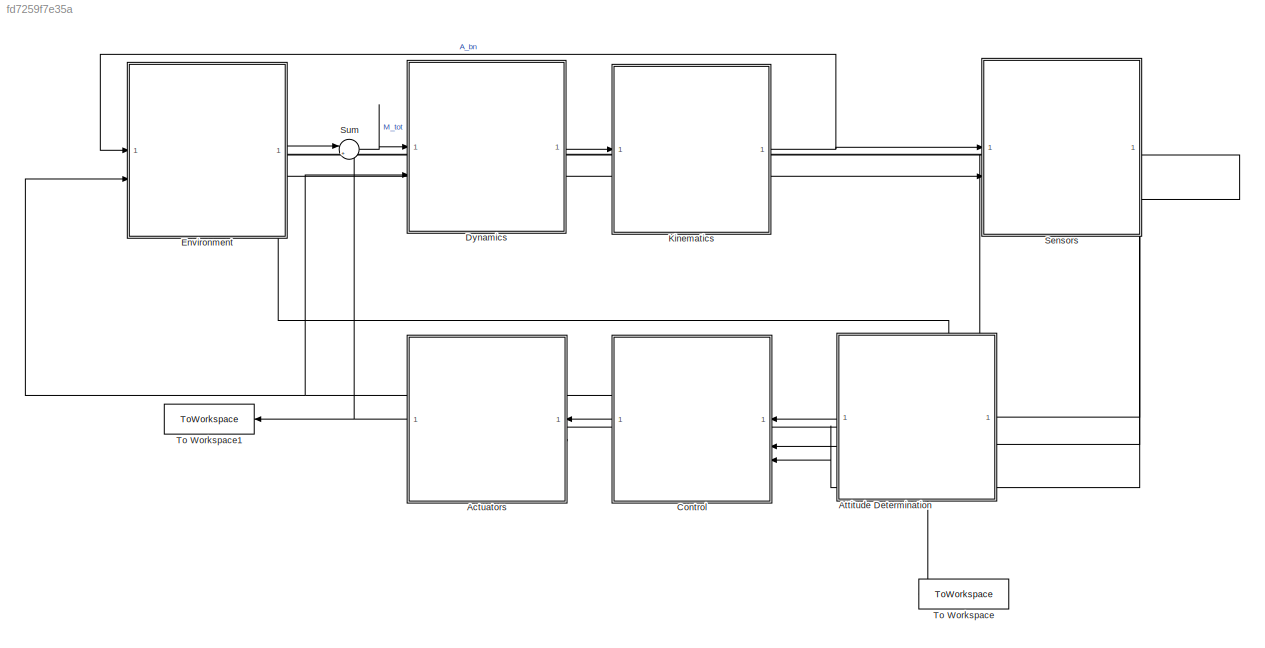
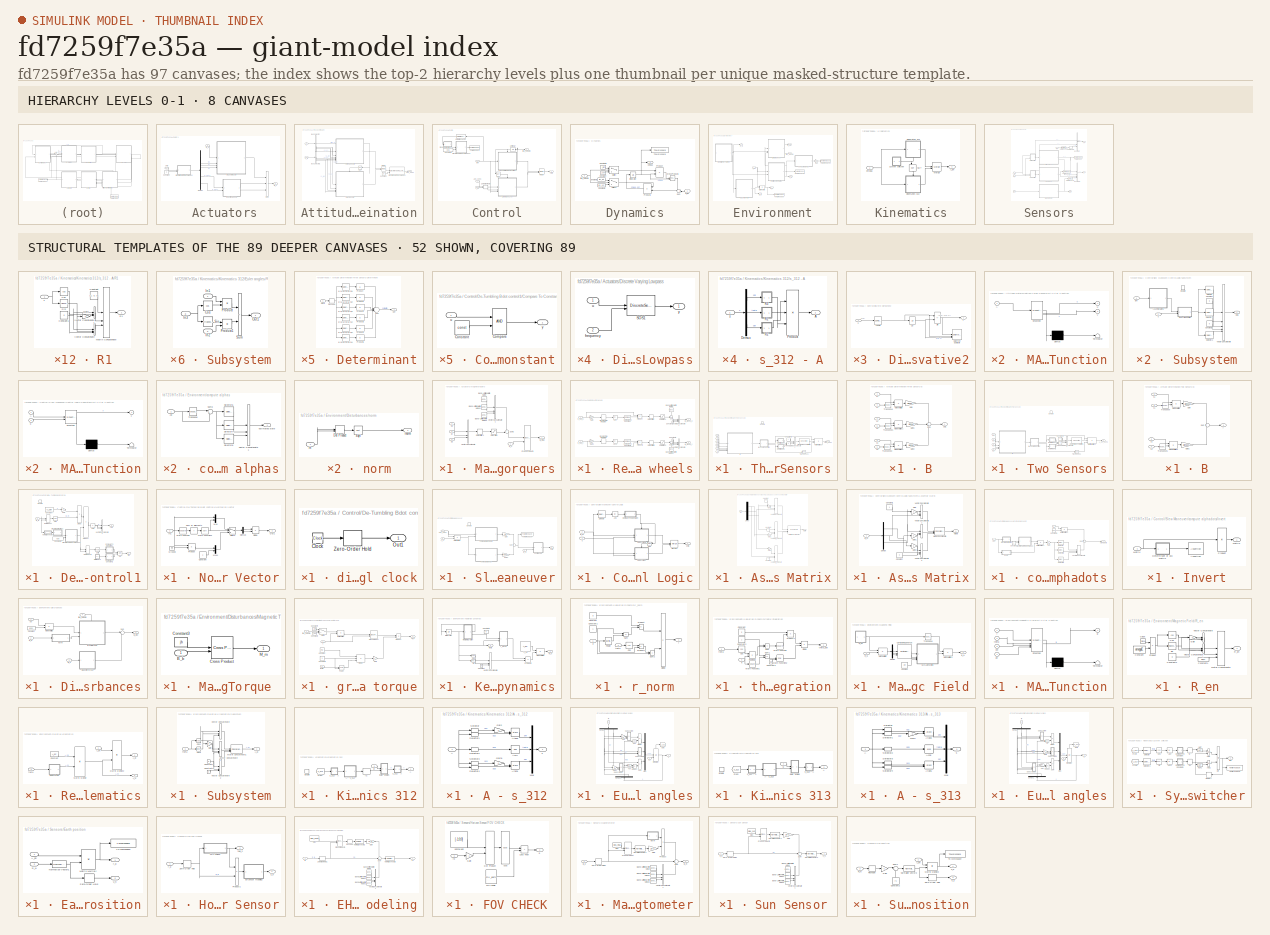
[diagram: thumbnail index - top-2 hierarchy levels (8 canvases) + 52 structural-template representatives of the remaining 89 canvases]
MODEL slx_fd7259f7e35a
KIND model
CONFIG AbsTol = auto
CONFIG EnableMultiTasking = off
CONFIG FixedStep = auto
CONFIG MaxStep = auto
CONFIG MinStep = auto
CONFIG RelTol = 1e-3
CONFIG SampleTimeConstraint = Unconstrained
CONFIG SolverName = ode5
CONFIG StartTime = 0.0
CONFIG StopTime = 2*T
BLOCK [SubSystem]  Actuators
  PortSchema = {"entries":[{"content":{"sides":[{"content":{"connectorIds":["In1"]},"type":"ConnectorPlacement.EquallySpacedRectSide","uuid":"5d6e642f-1157-4b0e-aa08-9ddf4ff16df7"},{"content":{"connectorIds":["Out1"],"side":"RIGHT"},"type":"ConnectorPlacement.EquallySpacedRectSide","uuid":"5847b5a1-e838-48cc-aba7-537ea27379c6"},{"content":{"connectorIds":["In2"],"side":"TOP"},"type":"ConnectorPlacement.EquallySp...<+245ch>
BLOCK [Inport]  Actuators/B_b
  Port = 2
BLOCK [Constant]  Actuators/Constant
  Value = 5
BLOCK [Demux]  Actuators/Demux
  Outputs = 5
BLOCK [SubSystem]  Actuators/Discrete Varying Lowpass
  LibrarySourceBlock = cstblocks/Linear Parameter Varying/Discrete Varying Lowpass
BLOCK [Reference]  Actuators/Discrete Varying Lowpass/SOS1  REF=cstextras/DiscreteSecondOrderSection  (lib defined in mdl_a5737024c95e)
  SourceBlock = cstextras/DiscreteSecondOrderSection
  SourceType = DiscreteSecondOrderSection
BLOCK [Inport]  Actuators/Discrete Varying Lowpass/frequency
  Port = 2
BLOCK [Inport]  Actuators/Discrete Varying Lowpass/u
BLOCK [Outport]  Actuators/Discrete Varying Lowpass/y
  VectorParamsAs1DForOutWhenUnconnected = off
BLOCK [Outport]  Actuators/M_c
BLOCK [SubSystem]  Actuators/Magnetorquers
BLOCK [Inport]  Actuators/Magnetorquers/B_b
BLOCK [Reference]  Actuators/Magnetorquers/Band-Limited White Noise  REF=simulink/Sources/Band-Limited
White Noise
  SourceBlock = simulink/Sources/Band-Limited\nWhite Noise
  SourceType = Band-Limited White Noise.
BLOCK [Reference]  Actuators/Magnetorquers/Band-Limited White Noise1  REF=simulink/Sources/Band-Limited
White Noise
  SourceBlock = simulink/Sources/Band-Limited\nWhite Noise
  SourceType = Band-Limited White Noise.
BLOCK [Reference]  Actuators/Magnetorquers/Band-Limited White Noise2  REF=simulink/Sources/Band-Limited
White Noise
  SourceBlock = simulink/Sources/Band-Limited\nWhite Noise
  SourceType = Band-Limited White Noise.
BLOCK [Reference]  Actuators/Magnetorquers/Cross Product1  REF=matrix_library/Cross Product
  LibrarySourceBlock = simulink/Matrix\nOperations/Cross Product
  SourceBlock = matrix_library/Cross Product
  SourceType = CrossProduct
BLOCK [Inport]  Actuators/Magnetorquers/Dx
  Port = 2
BLOCK [Inport]  Actuators/Magnetorquers/Dy
  Port = 3
BLOCK [Inport]  Actuators/Magnetorquers/Dz
  Port = 4
BLOCK [Outport]  Actuators/Magnetorquers/M_mag
BLOCK [RateLimiter]  Actuators/Magnetorquers/Rate Limiter1
  FallingSlewLimit = -100
  RisingSlewLimit = 100
BLOCK [Saturate]  Actuators/Magnetorquers/Saturation
  LowerLimit = -max_dip
  UpperLimit = max_dip
BLOCK [Sum]  Actuators/Magnetorquers/Sum2
  Inputs = ++|
BLOCK [Concatenate]  Actuators/Magnetorquers/Vector Concatenate
  NumInputs = 3
BLOCK [Concatenate]  Actuators/Magnetorquers/Vector Concatenate1
  NumInputs = 3
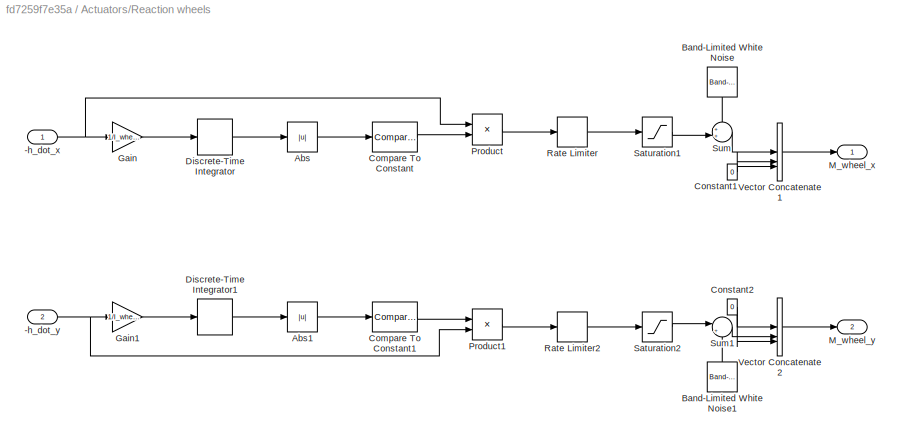
BLOCK [SubSystem]  Actuators/Reaction wheels
BLOCK [Inport]  Actuators/Reaction wheels/-h_dot_x
BLOCK [Inport]  Actuators/Reaction wheels/-h_dot_y
  Port = 2
BLOCK [Abs]  Actuators/Reaction wheels/Abs
  SaturateOnIntegerOverflow = off
BLOCK [Abs]  Actuators/Reaction wheels/Abs1
  SaturateOnIntegerOverflow = off
BLOCK [Reference]  Actuators/Reaction wheels/Band-Limited White Noise  REF=simulink/Sources/Band-Limited
White Noise
  NameLocation = left
  SourceBlock = simulink/Sources/Band-Limited\nWhite Noise
  SourceType = Band-Limited White Noise.
BLOCK [Reference]  Actuators/Reaction wheels/Band-Limited White Noise1  REF=simulink/Sources/Band-Limited
White Noise
  NameLocation = right
  SourceBlock = simulink/Sources/Band-Limited\nWhite Noise
  SourceType = Band-Limited White Noise.
BLOCK [Reference]  Actuators/Reaction wheels/Compare To Constant  REF=simulink/Logic and Bit
Operations/Compare
To Constant
  SourceBlock = simulink/Logic and Bit\nOperations/Compare\nTo Constant
  SourceType = Compare To Constant
BLOCK [Reference]  Actuators/Reaction wheels/Compare To Constant1  REF=simulink/Logic and Bit
Operations/Compare
To Constant
  SourceBlock = simulink/Logic and Bit\nOperations/Compare\nTo Constant
  SourceType = Compare To Constant
BLOCK [Constant]  Actuators/Reaction wheels/Constant1
  Value = 0
BLOCK [Constant]  Actuators/Reaction wheels/Constant2
  Value = 0
BLOCK [DiscreteIntegrator]  Actuators/Reaction wheels/Discrete-Time Integrator
  ICPrevOutput = DiscIntNeverNeededParam
  ICPrevScaledInput = DiscIntNeverNeededParam
  InitialConditionSetting = Auto
  SampleTime = -1
BLOCK [DiscreteIntegrator]  Actuators/Reaction wheels/Discrete-Time Integrator1
  ICPrevOutput = DiscIntNeverNeededParam
  ICPrevScaledInput = DiscIntNeverNeededParam
  InitialConditionSetting = Auto
  SampleTime = -1
BLOCK [Gain]  Actuators/Reaction wheels/Gain
  Gain = 1/I_wheel
BLOCK [Gain]  Actuators/Reaction wheels/Gain1
  Gain = 1/I_wheel
BLOCK [Outport]  Actuators/Reaction wheels/M_wheel_x
BLOCK [Outport]  Actuators/Reaction wheels/M_wheel_y
  Port = 2
BLOCK [Product]  Actuators/Reaction wheels/Product
BLOCK [Product]  Actuators/Reaction wheels/Product1
BLOCK [RateLimiter]  Actuators/Reaction wheels/Rate Limiter
BLOCK [RateLimiter]  Actuators/Reaction wheels/Rate Limiter2
BLOCK [Saturate]  Actuators/Reaction wheels/Saturation1
  LowerLimit = -max_hdot
  UpperLimit = max_hdot
BLOCK [Saturate]  Actuators/Reaction wheels/Saturation2
  LowerLimit = -max_hdot
  UpperLimit = max_hdot
BLOCK [Sum]  Actuators/Reaction wheels/Sum
  Inputs = ++|
BLOCK [Sum]  Actuators/Reaction wheels/Sum1
  Inputs = |++
BLOCK [Concatenate]  Actuators/Reaction wheels/Vector Concatenate1
  NumInputs = 3
BLOCK [Concatenate]  Actuators/Reaction wheels/Vector Concatenate2
  NumInputs = 3
BLOCK [Sum]  Actuators/Sum
  IconShape = rectangular
  Inputs = +++
BLOCK [Inport]  Actuators/cmd
BLOCK [SubSystem] Attitude Determination
  PortSchema = {"entries":[{"content":{"sides":[{"content":{"connectorIds":["Out1"]},"type":"ConnectorPlacement.EquallySpacedRectSide","uuid":"730966cf-d0d7-44a0-92f0-b5324480e7cc"},{"content":{"connectorIds":["In1","In2"],"side":"RIGHT"},"type":"ConnectorPlacement.EquallySpacedRectSide","uuid":"c83e6b57-46fe-4a45-9824-d3495e15bf6a"},{"content":{"side":"TOP"},"type":"ConnectorPlacement.EquallySpacedRectSide","uu...<+354ch>
BLOCK [Outport] Attitude Determination/Abn_sens
BLOCK [BusSelector] Attitude Determination/Bus Selector
  OutputSignals = flag_h,s_h,s_s,s_m
BLOCK [BusSelector] Attitude Determination/Bus Selector1
  OutputSignals = v_h,v_s,v_m
BLOCK [Constant] Attitude Determination/Constant
  Value = 0.5
BLOCK [Reference] Attitude Determination/Discrete Varying Lowpass  REF=cstblocks/Linear Parameter Varying/Discrete Varying Lowpass
  SourceBlock = cstblocks/Linear Parameter Varying/Discrete Varying Lowpass
  SourceType = Discrete Varying Lowpass
BLOCK [Merge] Attitude Determination/Merge
BLOCK [Logic] Attitude Determination/NOT
  AllPortsSameDT = off
  IconShape = distinctive
  NameLocation = top
  Operator = NOT
  OutDataTypeStr = boolean
BLOCK [SubSystem] Attitude Determination/Three Sensors
  TreatAsAtomicUnit = on
BLOCK [Outport] Attitude Determination/Three Sensors/Abn_sens
BLOCK [SubSystem] Attitude Determination/Three Sensors/B
BLOCK [Gain] Attitude Determination/Three Sensors/B/Gain
  Gain = alpha1
BLOCK [Gain] Attitude Determination/Three Sensors/B/Gain1
  Gain = alpha2
BLOCK [Gain] Attitude Determination/Three Sensors/B/Gain2
  Gain = alpha3
BLOCK [Product] Attitude Determination/Three Sensors/B/Matrix Multiply
  Multiplication = Matrix(*)
BLOCK [Product] Attitude Determination/Three Sensors/B/Matrix Multiply1
  Multiplication = Matrix(*)
BLOCK [Product] Attitude Determination/Three Sensors/B/Matrix Multiply2
  Multiplication = Matrix(*)
BLOCK [Outport] Attitude Determination/Three Sensors/B/Out1
BLOCK [Sum] Attitude Determination/Three Sensors/B/Sum
  Inputs = +++
BLOCK [Math] Attitude Determination/Three Sensors/B/Transpose
  Operator = transpose
BLOCK [Math] Attitude Determination/Three Sensors/B/Transpose1
  Operator = transpose
BLOCK [Math] Attitude Determination/Three Sensors/B/Transpose2
  Operator = transpose
BLOCK [Inport] Attitude Determination/Three Sensors/B/s1
BLOCK [Inport] Attitude Determination/Three Sensors/B/s2
  Port = 2
BLOCK [Inport] Attitude Determination/Three Sensors/B/s3
  Port = 3
BLOCK [Inport] Attitude Determination/Three Sensors/B/v1
  Port = 4
BLOCK [Inport] Attitude Determination/Three Sensors/B/v2
  Port = 5
BLOCK [Inport] Attitude Determination/Three Sensors/B/v3
  Port = 6
BLOCK [Constant] Attitude Determination/Three Sensors/Constant1
BLOCK [S-Function] Attitude Determination/Three Sensors/Create Diagonal Matrix1
  EnableBusSupport = off
  FunctionName = sdspdiag2
  LibrarySourceBlock = simulink/Matrix\nOperations/Create Diagonal\nMatrix
  Parameters = mode
  SFcnIsStateOwnerBlock = off
  SFunctionDeploymentMode = off
BLOCK [SubSystem] Attitude Determination/Three Sensors/Determinant
  LibrarySourceBlock = aerolibutil/Determinant of\n3x3 Matrix
  PermitHierarchicalResolution = ExplicitOnly
BLOCK [Inport] Attitude Determination/Three Sensors/Determinant/Matrix
  PortDimensions = [3 3]
BLOCK [Product] Attitude Determination/Three Sensors/Determinant/Product
  Inputs = 1
  OutDataTypeStr = Inherit: Same as first input
  SaturateOnIntegerOverflow = on
BLOCK [Product] Attitude Determination/Three Sensors/Determinant/Product1
  Inputs = 1
  OutDataTypeStr = Inherit: Same as first input
  SaturateOnIntegerOverflow = on
BLOCK [Product] Attitude Determination/Three Sensors/Determinant/Product2
  Inputs = 1
  OutDataTypeStr = Inherit: Same as first input
  SaturateOnIntegerOverflow = on
BLOCK [Product] Attitude Determination/Three Sensors/Determinant/Product3
  Inputs = 1
  OutDataTypeStr = Inherit: Same as first input
  SaturateOnIntegerOverflow = on
BLOCK [Product] Attitude Determination/Three Sensors/Determinant/Product4
  Inputs = 1
  OutDataTypeStr = Inherit: Same as first input
  SaturateOnIntegerOverflow = on
BLOCK [Product] Attitude Determination/Three Sensors/Determinant/Product5
  Inputs = 1
  OutDataTypeStr = Inherit: Same as first input
  SaturateOnIntegerOverflow = on
BLOCK [Reshape] Attitude Determination/Three Sensors/Determinant/Reshape
  OutputDimensionality = Column vector (2-D)
BLOCK [Sum] Attitude Determination/Three Sensors/Determinant/Sum
  Inputs = +--++-
  SaturateOnIntegerOverflow = on
BLOCK [Selector] Attitude Determination/Three Sensors/Determinant/a(1,1),a(2,2),a(3,3)
  IndexOptions = Index vector (dialog)
  Indices = [1 5 9]
  InputPortWidth = 9
  OutputSizes = 1
BLOCK [Selector] Attitude Determination/Three Sensors/Determinant/a(1,1),a(2,3),a(3,2)
  IndexOptions = Index vector (dialog)
  Indices = [1 6 8]
  InputPortWidth = 9
  OutputSizes = 1
BLOCK [Selector] Attitude Determination/Three Sensors/Determinant/a(1,2),a(2,1),a(3,3)
  IndexOptions = Index vector (dialog)
  Indices = [2 4 9]
  InputPortWidth = 9
  OutputSizes = 1
BLOCK [Selector] Attitude Determination/Three Sensors/Determinant/a(1,2),a(2,3),a(3,1)
  IndexOptions = Index vector (dialog)
  Indices = [3 4 8]
  InputPortWidth = 9
  OutputSizes = 1
BLOCK [Selector] Attitude Determination/Three Sensors/Determinant/a(1,3),a(2,1),a(3,2)
  IndexOptions = Index vector (dialog)
  Indices = [2 6 7]
  InputPortWidth = 9
  OutputSizes = 1
BLOCK [Selector] Attitude Determination/Three Sensors/Determinant/a(1,3),a(2,2),a(3,1)
  IndexOptions = Index vector (dialog)
  Indices = [3 5 7]
  InputPortWidth = 9
  OutputSizes = 1
BLOCK [Outport] Attitude Determination/Three Sensors/Determinant/det
  PortDimensions = 1
  VectorParamsAs1DForOutWhenUnconnected = off
BLOCK [SubSystem] Attitude Determination/Three Sensors/Determinant1
  LibrarySourceBlock = aerolibutil/Determinant of\n3x3 Matrix
  PermitHierarchicalResolution = ExplicitOnly
BLOCK [Inport] Attitude Determination/Three Sensors/Determinant1/Matrix
  PortDimensions = [3 3]
BLOCK [Product] Attitude Determination/Three Sensors/Determinant1/Product
  Inputs = 1
  OutDataTypeStr = Inherit: Same as first input
  SaturateOnIntegerOverflow = on
BLOCK [Product] Attitude Determination/Three Sensors/Determinant1/Product1
  Inputs = 1
  OutDataTypeStr = Inherit: Same as first input
  SaturateOnIntegerOverflow = on
BLOCK [Product] Attitude Determination/Three Sensors/Determinant1/Product2
  Inputs = 1
  OutDataTypeStr = Inherit: Same as first input
  SaturateOnIntegerOverflow = on
BLOCK [Product] Attitude Determination/Three Sensors/Determinant1/Product3
  Inputs = 1
  OutDataTypeStr = Inherit: Same as first input
  SaturateOnIntegerOverflow = on
BLOCK [Product] Attitude Determination/Three Sensors/Determinant1/Product4
  Inputs = 1
  OutDataTypeStr = Inherit: Same as first input
  SaturateOnIntegerOverflow = on
BLOCK [Product] Attitude Determination/Three Sensors/Determinant1/Product5
  Inputs = 1
  OutDataTypeStr = Inherit: Same as first input
  SaturateOnIntegerOverflow = on
BLOCK [Reshape] Attitude Determination/Three Sensors/Determinant1/Reshape
  OutputDimensionality = Column vector (2-D)
BLOCK [Sum] Attitude Determination/Three Sensors/Determinant1/Sum
  Inputs = +--++-
  SaturateOnIntegerOverflow = on
BLOCK [Selector] Attitude Determination/Three Sensors/Determinant1/a(1,1),a(2,2),a(3,3)
  IndexOptions = Index vector (dialog)
  Indices = [1 5 9]
  InputPortWidth = 9
  OutputSizes = 1
BLOCK [Selector] Attitude Determination/Three Sensors/Determinant1/a(1,1),a(2,3),a(3,2)
  IndexOptions = Index vector (dialog)
  Indices = [1 6 8]
  InputPortWidth = 9
  OutputSizes = 1
BLOCK [Selector] Attitude Determination/Three Sensors/Determinant1/a(1,2),a(2,1),a(3,3)
  IndexOptions = Index vector (dialog)
  Indices = [2 4 9]
  InputPortWidth = 9
  OutputSizes = 1
BLOCK [Selector] Attitude Determination/Three Sensors/Determinant1/a(1,2),a(2,3),a(3,1)
  IndexOptions = Index vector (dialog)
  Indices = [3 4 8]
  InputPortWidth = 9
  OutputSizes = 1
BLOCK [Selector] Attitude Determination/Three Sensors/Determinant1/a(1,3),a(2,1),a(3,2)
  IndexOptions = Index vector (dialog)
  Indices = [2 6 7]
  InputPortWidth = 9
  OutputSizes = 1
BLOCK [Selector] Attitude Determination/Three Sensors/Determinant1/a(1,3),a(2,2),a(3,1)
  IndexOptions = Index vector (dialog)
  Indices = [3 5 7]
  InputPortWidth = 9
  OutputSizes = 1
BLOCK [Outport] Attitude Determination/Three Sensors/Determinant1/det
  PortDimensions = 1
  VectorParamsAs1DForOutWhenUnconnected = off
BLOCK [EnablePort] Attitude Determination/Three Sensors/Enable
BLOCK [SubSystem] Attitude Determination/Three Sensors/MATLAB Function
  ErrorFcn = Stateflow.Translate.translate
  PermitHierarchicalResolution = ExplicitOnly
  SFBlockType = MATLAB Function
  TreatAsAtomicUnit = on
BLOCK [Demux] Attitude Determination/Three Sensors/MATLAB Function/ Demux 
  Outputs = 1
BLOCK [S-Function] Attitude Determination/Three Sensors/MATLAB Function/ SFunction 
  EnableBusSupport = on
  FunctionName = sf_sfun
  PortCounts = [1 3]
  SFcnIsStateOwnerBlock = off
  SFunctionDeploymentMode = off
  Tag = Stateflow S-Function 3
BLOCK [Terminator] Attitude Determination/Three Sensors/MATLAB Function/ Terminator 
BLOCK [Inport] Attitude Determination/Three Sensors/MATLAB Function/A
BLOCK [Outport] Attitude Determination/Three Sensors/MATLAB Function/U
BLOCK [Outport] Attitude Determination/Three Sensors/MATLAB Function/V
  Port = 2
BLOCK [Product] Attitude Determination/Three Sensors/Matrix Multiply2
  Inputs = 3
  Multiplication = Matrix(*)
BLOCK [Product] Attitude Determination/Three Sensors/Product1
BLOCK [Math] Attitude Determination/Three Sensors/Transpose1
  Operator = transpose
BLOCK [Concatenate] Attitude Determination/Three Sensors/Vector Concatenate1
  NumInputs = 3
BLOCK [Inport] Attitude Determination/Three Sensors/s1
BLOCK [Inport] Attitude Determination/Three Sensors/s2
  Port = 2
BLOCK [Inport] Attitude Determination/Three Sensors/s3
  Port = 3
BLOCK [Inport] Attitude Determination/Three Sensors/v1
  Port = 4
BLOCK [Inport] Attitude Determination/Three Sensors/v2
  Port = 5
BLOCK [Inport] Attitude Determination/Three Sensors/v3
  Port = 6
BLOCK [SubSystem] Attitude Determination/Two Sensors
  TreatAsAtomicUnit = on
BLOCK [Outport] Attitude Determination/Two Sensors/A_bn_sens
BLOCK [SubSystem] Attitude Determination/Two Sensors/B
BLOCK [Outport] Attitude Determination/Two Sensors/B/A
BLOCK [Gain] Attitude Determination/Two Sensors/B/Gain
  Gain = alpha12
BLOCK [Gain] Attitude Determination/Two Sensors/B/Gain1
  Gain = alpha22
BLOCK [Product] Attitude Determination/Two Sensors/B/Matrix Multiply
  Multiplication = Matrix(*)
BLOCK [Product] Attitude Determination/Two Sensors/B/Matrix Multiply1
  Multiplication = Matrix(*)
BLOCK [Sum] Attitude Determination/Two Sensors/B/Sum
BLOCK [Math] Attitude Determination/Two Sensors/B/Transpose
  Operator = transpose
BLOCK [Math] Attitude Determination/Two Sensors/B/Transpose1
  Operator = transpose
BLOCK [Inport] Attitude Determination/Two Sensors/B/s1
BLOCK [Inport] Attitude Determination/Two Sensors/B/s2
  Port = 2
BLOCK [Inport] Attitude Determination/Two Sensors/B/v1
  Port = 3
BLOCK [Inport] Attitude Determination/Two Sensors/B/v2
  Port = 4
BLOCK [Constant] Attitude Determination/Two Sensors/Constant1
BLOCK [S-Function] Attitude Determination/Two Sensors/Create Diagonal Matrix1
  EnableBusSupport = off
  FunctionName = sdspdiag2
  LibrarySourceBlock = simulink/Matrix\nOperations/Create Diagonal\nMatrix
  Parameters = mode
  SFcnIsStateOwnerBlock = off
  SFunctionDeploymentMode = off
BLOCK [SubSystem] Attitude Determination/Two Sensors/Determinant
  LibrarySourceBlock = aerolibutil/Determinant of\n3x3 Matrix
  PermitHierarchicalResolution = ExplicitOnly
BLOCK [Inport] Attitude Determination/Two Sensors/Determinant/Matrix
  PortDimensions = [3 3]
BLOCK [Product] Attitude Determination/Two Sensors/Determinant/Product
  Inputs = 1
  OutDataTypeStr = Inherit: Same as first input
  SaturateOnIntegerOverflow = on
BLOCK [Product] Attitude Determination/Two Sensors/Determinant/Product1
  Inputs = 1
  OutDataTypeStr = Inherit: Same as first input
  SaturateOnIntegerOverflow = on
BLOCK [Product] Attitude Determination/Two Sensors/Determinant/Product2
  Inputs = 1
  OutDataTypeStr = Inherit: Same as first input
  SaturateOnIntegerOverflow = on
BLOCK [Product] Attitude Determination/Two Sensors/Determinant/Product3
  Inputs = 1
  OutDataTypeStr = Inherit: Same as first input
  SaturateOnIntegerOverflow = on
BLOCK [Product] Attitude Determination/Two Sensors/Determinant/Product4
  Inputs = 1
  OutDataTypeStr = Inherit: Same as first input
  SaturateOnIntegerOverflow = on
BLOCK [Product] Attitude Determination/Two Sensors/Determinant/Product5
  Inputs = 1
  OutDataTypeStr = Inherit: Same as first input
  SaturateOnIntegerOverflow = on
BLOCK [Reshape] Attitude Determination/Two Sensors/Determinant/Reshape
  OutputDimensionality = Column vector (2-D)
BLOCK [Sum] Attitude Determination/Two Sensors/Determinant/Sum
  Inputs = +--++-
  SaturateOnIntegerOverflow = on
BLOCK [Selector] Attitude Determination/Two Sensors/Determinant/a(1,1),a(2,2),a(3,3)
  IndexOptions = Index vector (dialog)
  Indices = [1 5 9]
  InputPortWidth = 9
  OutputSizes = 1
BLOCK [Selector] Attitude Determination/Two Sensors/Determinant/a(1,1),a(2,3),a(3,2)
  IndexOptions = Index vector (dialog)
  Indices = [1 6 8]
  InputPortWidth = 9
  OutputSizes = 1
BLOCK [Selector] Attitude Determination/Two Sensors/Determinant/a(1,2),a(2,1),a(3,3)
  IndexOptions = Index vector (dialog)
  Indices = [2 4 9]
  InputPortWidth = 9
  OutputSizes = 1
BLOCK [Selector] Attitude Determination/Two Sensors/Determinant/a(1,2),a(2,3),a(3,1)
  IndexOptions = Index vector (dialog)
  Indices = [3 4 8]
  InputPortWidth = 9
  OutputSizes = 1
BLOCK [Selector] Attitude Determination/Two Sensors/Determinant/a(1,3),a(2,1),a(3,2)
  IndexOptions = Index vector (dialog)
  Indices = [2 6 7]
  InputPortWidth = 9
  OutputSizes = 1
BLOCK [Selector] Attitude Determination/Two Sensors/Determinant/a(1,3),a(2,2),a(3,1)
  IndexOptions = Index vector (dialog)
  Indices = [3 5 7]
  InputPortWidth = 9
  OutputSizes = 1
BLOCK [Outport] Attitude Determination/Two Sensors/Determinant/det
  PortDimensions = 1
  VectorParamsAs1DForOutWhenUnconnected = off
BLOCK [SubSystem] Attitude Determination/Two Sensors/Determinant1
  LibrarySourceBlock = aerolibutil/Determinant of\n3x3 Matrix
  PermitHierarchicalResolution = ExplicitOnly
BLOCK [Inport] Attitude Determination/Two Sensors/Determinant1/Matrix
  PortDimensions = [3 3]
BLOCK [Product] Attitude Determination/Two Sensors/Determinant1/Product
  Inputs = 1
  OutDataTypeStr = Inherit: Same as first input
  SaturateOnIntegerOverflow = on
BLOCK [Product] Attitude Determination/Two Sensors/Determinant1/Product1
  Inputs = 1
  OutDataTypeStr = Inherit: Same as first input
  SaturateOnIntegerOverflow = on
BLOCK [Product] Attitude Determination/Two Sensors/Determinant1/Product2
  Inputs = 1
  OutDataTypeStr = Inherit: Same as first input
  SaturateOnIntegerOverflow = on
BLOCK [Product] Attitude Determination/Two Sensors/Determinant1/Product3
  Inputs = 1
  OutDataTypeStr = Inherit: Same as first input
  SaturateOnIntegerOverflow = on
BLOCK [Product] Attitude Determination/Two Sensors/Determinant1/Product4
  Inputs = 1
  OutDataTypeStr = Inherit: Same as first input
  SaturateOnIntegerOverflow = on
BLOCK [Product] Attitude Determination/Two Sensors/Determinant1/Product5
  Inputs = 1
  OutDataTypeStr = Inherit: Same as first input
  SaturateOnIntegerOverflow = on
BLOCK [Reshape] Attitude Determination/Two Sensors/Determinant1/Reshape
  OutputDimensionality = Column vector (2-D)
BLOCK [Sum] Attitude Determination/Two Sensors/Determinant1/Sum
  Inputs = +--++-
  SaturateOnIntegerOverflow = on
BLOCK [Selector] Attitude Determination/Two Sensors/Determinant1/a(1,1),a(2,2),a(3,3)
  IndexOptions = Index vector (dialog)
  Indices = [1 5 9]
  InputPortWidth = 9
  OutputSizes = 1
BLOCK [Selector] Attitude Determination/Two Sensors/Determinant1/a(1,1),a(2,3),a(3,2)
  IndexOptions = Index vector (dialog)
  Indices = [1 6 8]
  InputPortWidth = 9
  OutputSizes = 1
BLOCK [Selector] Attitude Determination/Two Sensors/Determinant1/a(1,2),a(2,1),a(3,3)
  IndexOptions = Index vector (dialog)
  Indices = [2 4 9]
  InputPortWidth = 9
  OutputSizes = 1
BLOCK [Selector] Attitude Determination/Two Sensors/Determinant1/a(1,2),a(2,3),a(3,1)
  IndexOptions = Index vector (dialog)
  Indices = [3 4 8]
  InputPortWidth = 9
  OutputSizes = 1
BLOCK [Selector] Attitude Determination/Two Sensors/Determinant1/a(1,3),a(2,1),a(3,2)
  IndexOptions = Index vector (dialog)
  Indices = [2 6 7]
  InputPortWidth = 9
  OutputSizes = 1
BLOCK [Selector] Attitude Determination/Two Sensors/Determinant1/a(1,3),a(2,2),a(3,1)
  IndexOptions = Index vector (dialog)
  Indices = [3 5 7]
  InputPortWidth = 9
  OutputSizes = 1
BLOCK [Outport] Attitude Determination/Two Sensors/Determinant1/det
  PortDimensions = 1
  VectorParamsAs1DForOutWhenUnconnected = off
BLOCK [EnablePort] Attitude Determination/Two Sensors/Enable
BLOCK [SubSystem] Attitude Determination/Two Sensors/MATLAB Function
  ErrorFcn = Stateflow.Translate.translate
  PermitHierarchicalResolution = ExplicitOnly
  SFBlockType = MATLAB Function
  TreatAsAtomicUnit = on
BLOCK [Demux] Attitude Determination/Two Sensors/MATLAB Function/ Demux 
  Outputs = 1
BLOCK [S-Function] Attitude Determination/Two Sensors/MATLAB Function/ SFunction 
  EnableBusSupport = on
  FunctionName = sf_sfun
  PortCounts = [1 3]
  SFcnIsStateOwnerBlock = off
  SFunctionDeploymentMode = off
  Tag = Stateflow S-Function 5
BLOCK [Terminator] Attitude Determination/Two Sensors/MATLAB Function/ Terminator 
BLOCK [Inport] Attitude Determination/Two Sensors/MATLAB Function/A
BLOCK [Outport] Attitude Determination/Two Sensors/MATLAB Function/U
BLOCK [Outport] Attitude Determination/Two Sensors/MATLAB Function/V
  Port = 2
BLOCK [Product] Attitude Determination/Two Sensors/Matrix Multiply2
  Inputs = 3
  Multiplication = Matrix(*)
BLOCK [Product] Attitude Determination/Two Sensors/Product1
BLOCK [Math] Attitude Determination/Two Sensors/Transpose1
  Operator = transpose
BLOCK [Concatenate] Attitude Determination/Two Sensors/Vector Concatenate1
  NumInputs = 3
BLOCK [Inport] Attitude Determination/Two Sensors/s1
BLOCK [Inport] Attitude Determination/Two Sensors/s2
  Port = 2
BLOCK [Inport] Attitude Determination/Two Sensors/v1
  Port = 3
BLOCK [Inport] Attitude Determination/Two Sensors/v2
  Port = 4
BLOCK [Inport] Attitude Determination/s
BLOCK [Inport] Attitude Determination/v_N
  Port = 2
BLOCK [SubSystem] Control
  PortSchema = {"entries":[{"content":{"sides":[{"content":{"connectorIds":["In1","In2","In3"]},"type":"ConnectorPlacement.EquallySpacedRectSide","uuid":"479db2a9-02dc-44e2-91e0-a22764ce85e5"},{"content":{"connectorIds":["Out1"],"side":"RIGHT"},"type":"ConnectorPlacement.EquallySpacedRectSide","uuid":"f4f8a6e1-932f-455d-9102-afbfd34f7a90"},{"content":{"connectorIds":["Out2"],"side":"TOP"},"type":"ConnectorPlacem...<+258ch>
BLOCK [Inport] Control/A_nl
BLOCK [Inport] Control/Abn_sens
  Port = 2
BLOCK [Inport] Control/Bm
  Port = 3
BLOCK [Constant] Control/Constant2
  SampleTime = 1/freq_mag
  Value = 0.06
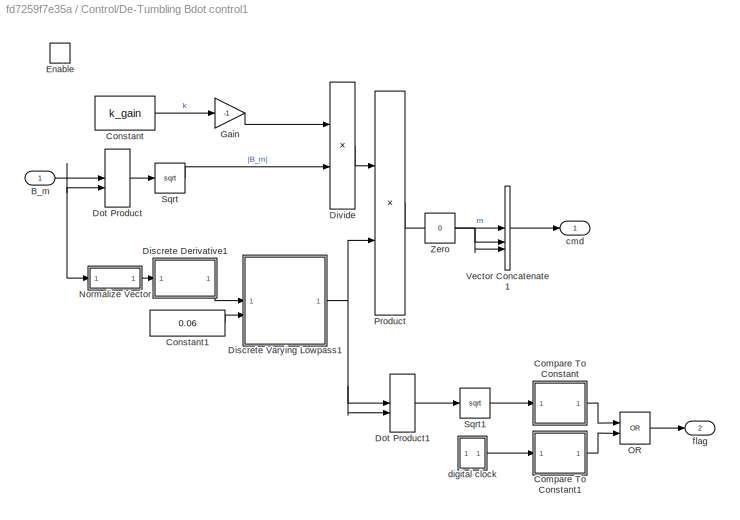
BLOCK [SubSystem] Control/De-Tumbling Bdot control1
BLOCK [Inport] Control/De-Tumbling Bdot control1/B_m
BLOCK [SubSystem] Control/De-Tumbling Bdot control1/Compare To Constant
  LibrarySourceBlock = simulink/Logic and Bit\nOperations/Compare\nTo Constant
BLOCK [RelationalOperator] Control/De-Tumbling Bdot control1/Compare To Constant/Compare
  OutDataTypeStr = boolean
BLOCK [Constant] Control/De-Tumbling Bdot control1/Compare To Constant/Constant
  DisableCoverage = on
  OutDataTypeStr = Inherit: Inherit via back propagation
  Value = const
BLOCK [Inport] Control/De-Tumbling Bdot control1/Compare To Constant/u
BLOCK [Outport] Control/De-Tumbling Bdot control1/Compare To Constant/y
BLOCK [SubSystem] Control/De-Tumbling Bdot control1/Compare To Constant1
  LibrarySourceBlock = simulink/Logic and Bit\nOperations/Compare\nTo Constant
BLOCK [RelationalOperator] Control/De-Tumbling Bdot control1/Compare To Constant1/Compare
  Operator = <=
  OutDataTypeStr = boolean
BLOCK [Constant] Control/De-Tumbling Bdot control1/Compare To Constant1/Constant
  DisableCoverage = on
  OutDataTypeStr = Inherit: Inherit via back propagation
  Value = const
BLOCK [Inport] Control/De-Tumbling Bdot control1/Compare To Constant1/u
BLOCK [Outport] Control/De-Tumbling Bdot control1/Compare To Constant1/y
BLOCK [Constant] Control/De-Tumbling Bdot control1/Constant
  Value = k_gain
BLOCK [Constant] Control/De-Tumbling Bdot control1/Constant1
  SampleTime = 1/freq_mag
  Value = 0.06
BLOCK [SubSystem] Control/De-Tumbling Bdot control1/Discrete Derivative1
  LibrarySourceBlock = simulink/Discrete/Discrete Derivative
BLOCK [DataTypeDuplicate] Control/De-Tumbling Bdot control1/Discrete Derivative1/Data Type Duplicate
  DisableCoverage = on
  NumInputPorts = 3
BLOCK [Sum] Control/De-Tumbling Bdot control1/Discrete Derivative1/Diff
  Description = Add in CPU
  IconShape = rectangular
  Inputs = +-
  OutDataTypeStr = diffDT
  OutMax = OutMax
  OutMin = OutMin
BLOCK [SampleTimeMath] Control/De-Tumbling Bdot control1/Discrete Derivative1/TSamp
  DisableCoverage = on
  TsampMathImp = Offline Scaling Adjustment
  TsampMathOp = /
  weightValue = inverseGainval
BLOCK [Inport] Control/De-Tumbling Bdot control1/Discrete Derivative1/U
BLOCK [UnitDelay] Control/De-Tumbling Bdot control1/Discrete Derivative1/UD
  Description = Store in Global RAM
  DisableCoverage = on
  HasFrameUpgradeWarning = on
  InitialCondition = ICPrevScaledInput
  SampleTime = -1
BLOCK [Outport] Control/De-Tumbling Bdot control1/Discrete Derivative1/Y
  InitialOutput = 0
  OutMax = OutMax
  OutMin = OutMin
BLOCK [SubSystem] Control/De-Tumbling Bdot control1/Discrete Varying Lowpass1
  LibrarySourceBlock = cstblocks/Linear Parameter Varying/Discrete Varying Lowpass
BLOCK [Reference] Control/De-Tumbling Bdot control1/Discrete Varying Lowpass1/FOS  REF=cstextras/DiscreteFirstOrderSection  (lib defined in mdl_a5737024c95e)
  SourceBlock = cstextras/DiscreteFirstOrderSection
  SourceType = DiscreteFirstOrderSection
BLOCK [Inport] Control/De-Tumbling Bdot control1/Discrete Varying Lowpass1/frequency
  Port = 2
BLOCK [Inport] Control/De-Tumbling Bdot control1/Discrete Varying Lowpass1/u
BLOCK [Outport] Control/De-Tumbling Bdot control1/Discrete Varying Lowpass1/y
  VectorParamsAs1DForOutWhenUnconnected = off
BLOCK [Product] Control/De-Tumbling Bdot control1/Divide
  Inputs = */
BLOCK [DotProduct] Control/De-Tumbling Bdot control1/Dot Product
  OutDataTypeStr = Inherit: Inherit via internal rule
BLOCK [DotProduct] Control/De-Tumbling Bdot control1/Dot Product1
  OutDataTypeStr = Inherit: Inherit via internal rule
BLOCK [EnablePort] Control/De-Tumbling Bdot control1/Enable
BLOCK [Gain] Control/De-Tumbling Bdot control1/Gain
  Gain = -1
BLOCK [SubSystem] Control/De-Tumbling Bdot control1/Normalize Vector
  LibrarySourceBlock = vrlib/Utilities/Normalize Vector
BLOCK [Constant] Control/De-Tumbling Bdot control1/Normalize Vector/Constant
BLOCK [Demux] Control/De-Tumbling Bdot control1/Normalize Vector/Demux
  Outputs = [-1 1]
BLOCK [Product] Control/De-Tumbling Bdot control1/Normalize Vector/Divide
  Inputs = */
  OutDataTypeStr = double
BLOCK [Ground] Control/De-Tumbling Bdot control1/Normalize Vector/Ground
BLOCK [Inport] Control/De-Tumbling Bdot control1/Normalize Vector/In1
BLOCK [Math] Control/De-Tumbling Bdot control1/Normalize Vector/Math Function
  Operator = square
  SignedPower = on
BLOCK [Math] Control/De-Tumbling Bdot control1/Normalize Vector/Math Function1
  Operator = sqrt
  SignedPower = on
BLOCK [Mux] Control/De-Tumbling Bdot control1/Normalize Vector/Mux
  DisplayOption = bar
  Inputs = 2
BLOCK [Mux] Control/De-Tumbling Bdot control1/Normalize Vector/Mux1
  DisplayOption = bar
  Inputs = 2
BLOCK [Outport] Control/De-Tumbling Bdot control1/Normalize Vector/Out1
  VectorParamsAs1DForOutWhenUnconnected = off
BLOCK [Product] Control/De-Tumbling Bdot control1/Normalize Vector/Product
  RndMeth = Zero
BLOCK [Sum] Control/De-Tumbling Bdot control1/Normalize Vector/Sum of Elements
  IconShape = rectangular
  Inputs = +
BLOCK [Switch] Control/De-Tumbling Bdot control1/Normalize Vector/Switch
  Criteria = u2 > Threshold
  InputSameDT = off
  SaturateOnIntegerOverflow = off
  Threshold = maxzero
BLOCK [Logic] Control/De-Tumbling Bdot control1/OR
  AllPortsSameDT = off
  IconShape = distinctive
  Operator = OR
  OutDataTypeStr = boolean
BLOCK [Product] Control/De-Tumbling Bdot control1/Product
BLOCK [Sqrt] Control/De-Tumbling Bdot control1/Sqrt
BLOCK [Sqrt] Control/De-Tumbling Bdot control1/Sqrt1
BLOCK [Concatenate] Control/De-Tumbling Bdot control1/Vector Concatenate1
  NumInputs = 3
BLOCK [Constant] Control/De-Tumbling Bdot control1/Zero
  OutDataTypeStr = Inherit: Inherit via back propagation
  Value = 0
BLOCK [Outport] Control/De-Tumbling Bdot control1/cmd
BLOCK [SubSystem] Control/De-Tumbling Bdot control1/digital clock
BLOCK [Clock] Control/De-Tumbling Bdot control1/digital clock/Clock
BLOCK [Outport] Control/De-Tumbling Bdot control1/digital clock/Out1
BLOCK [ZeroOrderHold] Control/De-Tumbling Bdot control1/digital clock/Zero-Order Hold
  SampleTime = 1/freq_acds
BLOCK [Outport] Control/De-Tumbling Bdot control1/flag
  Port = 2
BLOCK [SubSystem] Control/Discrete Derivative2
  LibrarySourceBlock = simulink/Discrete/Discrete Derivative
BLOCK [DataTypeDuplicate] Control/Discrete Derivative2/Data Type Duplicate
  DisableCoverage = on
  NumInputPorts = 3
BLOCK [Sum] Control/Discrete Derivative2/Diff
  Description = Add in CPU
  IconShape = rectangular
  Inputs = +-
  OutDataTypeStr = diffDT
  OutMax = OutMax
  OutMin = OutMin
BLOCK [SampleTimeMath] Control/Discrete Derivative2/TSamp
  DisableCoverage = on
  TsampMathImp = Offline Scaling Adjustment
  TsampMathOp = /
  weightValue = inverseGainval
BLOCK [Inport] Control/Discrete Derivative2/U
BLOCK [UnitDelay] Control/Discrete Derivative2/UD
  Description = Store in Global RAM
  DisableCoverage = on
  HasFrameUpgradeWarning = on
  InitialCondition = ICPrevScaledInput
  SampleTime = -1
BLOCK [Outport] Control/Discrete Derivative2/Y
  InitialOutput = 0
  OutMax = OutMax
  OutMin = OutMin
BLOCK [SubSystem] Control/Discrete Varying Lowpass2
  LibrarySourceBlock = cstblocks/Linear Parameter Varying/Discrete Varying Lowpass
BLOCK [Reference] Control/Discrete Varying Lowpass2/FOS  REF=cstextras/DiscreteFirstOrderSection  (lib defined in mdl_a5737024c95e)
  SourceBlock = cstextras/DiscreteFirstOrderSection
  SourceType = DiscreteFirstOrderSection
BLOCK [Inport] Control/Discrete Varying Lowpass2/frequency
  Port = 2
BLOCK [Inport] Control/Discrete Varying Lowpass2/u
BLOCK [Outport] Control/Discrete Varying Lowpass2/y
  VectorParamsAs1DForOutWhenUnconnected = off
BLOCK [Merge] Control/Merge
BLOCK [Logic] Control/NOT
  AllPortsSameDT = off
  IconShape = distinctive
  Operator = NOT
  OutDataTypeStr = boolean
BLOCK [Reference] Control/Normalize Vector  REF=vrlib/Utilities/Normalize Vector
  NameLocation = top
  SourceBlock = vrlib/Utilities/Normalize Vector
  SourceType = Normalize Vector
BLOCK [SubSystem] Control/Slew Maneuver
BLOCK [Inport] Control/Slew Maneuver/A_nl
  Port = 2
BLOCK [Inport] Control/Slew Maneuver/Abn_sens
BLOCK [Inport] Control/Slew Maneuver/B_m
  Port = 3
BLOCK [SubSystem] Control/Slew Maneuver/Control Logic
BLOCK [Abs] Control/Slew Maneuver/Control Logic/Abs
  SaturateOnIntegerOverflow = off
BLOCK [Inport] Control/Slew Maneuver/Control Logic/B_m
  Port = 2
BLOCK [SubSystem] Control/Slew Maneuver/Control Logic/Compare To Constant
  LibrarySourceBlock = simulink/Logic and Bit\nOperations/Compare\nTo Constant
BLOCK [RelationalOperator] Control/Slew Maneuver/Control Logic/Compare To Constant/Compare
  Operator = >
  OutDataTypeStr = boolean
BLOCK [Constant] Control/Slew Maneuver/Control Logic/Compare To Constant/Constant
  DisableCoverage = on
  OutDataTypeStr = Inherit: Inherit via back propagation
  Value = const
BLOCK [Inport] Control/Slew Maneuver/Control Logic/Compare To Constant/u
BLOCK [Outport] Control/Slew Maneuver/Control Logic/Compare To Constant/y
BLOCK [Merge] Control/Slew Maneuver/Control Logic/Merge1
BLOCK [Logic] Control/Slew Maneuver/Control Logic/NOT
  AllPortsSameDT = off
  IconShape = distinctive
  NameLocation = top
  Operator = NOT
  OutDataTypeStr = boolean
BLOCK [Selector] Control/Slew Maneuver/Control Logic/Selector
  IndexOptions = Index vector (dialog)
  Indices = 1
  InputPortWidth = 3
  OutputSizes = 1
BLOCK [SubSystem] Control/Slew Maneuver/Control Logic/Subsystem
BLOCK [SubSystem] Control/Slew Maneuver/Control Logic/Subsystem/Assembly Matrix
BLOCK [Inport] Control/Slew Maneuver/Control Logic/Subsystem/Assembly Matrix/Bm
BLOCK [Constant] Control/Slew Maneuver/Control Logic/Subsystem/Assembly Matrix/Constant
  Value = 0
BLOCK [Constant] Control/Slew Maneuver/Control Logic/Subsystem/Assembly Matrix/Constant1
BLOCK [Constant] Control/Slew Maneuver/Control Logic/Subsystem/Assembly Matrix/Constant2
  Value = 0
BLOCK [Demux] Control/Slew Maneuver/Control Logic/Subsystem/Assembly Matrix/Demux
  Outputs = 3
BLOCK [Gain] Control/Slew Maneuver/Control Logic/Subsystem/Assembly Matrix/Gain
  Gain = -1
BLOCK [Gain] Control/Slew Maneuver/Control Logic/Subsystem/Assembly Matrix/Gain1
  Gain = -1
BLOCK [Gain] Control/Slew Maneuver/Control Logic/Subsystem/Assembly Matrix/Gain2
  Gain = -1
BLOCK [Outport] Control/Slew Maneuver/Control Logic/Subsystem/Assembly Matrix/Matrix
BLOCK [Concatenate] Control/Slew Maneuver/Control Logic/Subsystem/Assembly Matrix/Matrix Concatenate
  ConcatenateDimension = 2
  Mode = Multidimensional array
  NumInputs = 3
BLOCK [Concatenate] Control/Slew Maneuver/Control Logic/Subsystem/Assembly Matrix/Vector Concatenate
  NumInputs = 3
BLOCK [Concatenate] Control/Slew Maneuver/Control Logic/Subsystem/Assembly Matrix/Vector Concatenate1
  NumInputs = 3
BLOCK [Concatenate] Control/Slew Maneuver/Control Logic/Subsystem/Assembly Matrix/Vector Concatenate2
  NumInputs = 3
BLOCK [Inport] Control/Slew Maneuver/Control Logic/Subsystem/Bm
BLOCK [Constant] Control/Slew Maneuver/Control Logic/Subsystem/Constant
  Value = 0
BLOCK [Constant] Control/Slew Maneuver/Control Logic/Subsystem/Constant1
  Value = 0
BLOCK [EnablePort] Control/Slew Maneuver/Control Logic/Subsystem/Enable
BLOCK [SubSystem] Control/Slew Maneuver/Control Logic/Subsystem/MATLAB Function
  ErrorFcn = Stateflow.Translate.translate
  PermitHierarchicalResolution = ExplicitOnly
  SFBlockType = MATLAB Function
  TreatAsAtomicUnit = on
BLOCK [Demux] Control/Slew Maneuver/Control Logic/Subsystem/MATLAB Function/ Demux 
  Outputs = 1
BLOCK [S-Function] Control/Slew Maneuver/Control Logic/Subsystem/MATLAB Function/ SFunction 
  EnableBusSupport = on
  FunctionName = sf_sfun
  PortCounts = [2 2]
  SFcnIsStateOwnerBlock = off
  SFunctionDeploymentMode = off
  Tag = Stateflow S-Function 2
BLOCK [Terminator] Control/Slew Maneuver/Control Logic/Subsystem/MATLAB Function/ Terminator 
BLOCK [Inport] Control/Slew Maneuver/Control Logic/Subsystem/MATLAB Function/A
BLOCK [Inport] Control/Slew Maneuver/Control Logic/Subsystem/MATLAB Function/b
  Port = 2
BLOCK [Outport] Control/Slew Maneuver/Control Logic/Subsystem/MATLAB Function/x
BLOCK [Outport] Control/Slew Maneuver/Control Logic/Subsystem/Out1
BLOCK [Selector] Control/Slew Maneuver/Control Logic/Subsystem/Selector
  IndexOptions = Index vector (dialog)
  Indices = 1
  InputPortWidth = 3
  OutputSizes = 1
BLOCK [Selector] Control/Slew Maneuver/Control Logic/Subsystem/Selector1
  IndexOptions = Index vector (dialog)
  Indices = 3
  InputPortWidth = 3
  OutputSizes = 1
BLOCK [Selector] Control/Slew Maneuver/Control Logic/Subsystem/Selector2
  IndexOptions = Index vector (dialog)
  Indices = 2
  InputPortWidth = 3
  OutputSizes = 1
BLOCK [Concatenate] Control/Slew Maneuver/Control Logic/Subsystem/Vector Concatenate
  NumInputs = 5
BLOCK [Inport] Control/Slew Maneuver/Control Logic/Subsystem/u
  Port = 2
BLOCK [SubSystem] Control/Slew Maneuver/Control Logic/Subsystem1
BLOCK [SubSystem] Control/Slew Maneuver/Control Logic/Subsystem1/Assembly Matrix
BLOCK [Inport] Control/Slew Maneuver/Control Logic/Subsystem1/Assembly Matrix/B_m
BLOCK [Constant] Control/Slew Maneuver/Control Logic/Subsystem1/Assembly Matrix/Constant
  Value = 0
BLOCK [Constant] Control/Slew Maneuver/Control Logic/Subsystem1/Assembly Matrix/Constant1
BLOCK [Demux] Control/Slew Maneuver/Control Logic/Subsystem1/Assembly Matrix/Demux
  Outputs = 3
BLOCK [Gain] Control/Slew Maneuver/Control Logic/Subsystem1/Assembly Matrix/Gain
  Gain = -1
BLOCK [Gain] Control/Slew Maneuver/Control Logic/Subsystem1/Assembly Matrix/Gain1
  Gain = -1
BLOCK [Gain] Control/Slew Maneuver/Control Logic/Subsystem1/Assembly Matrix/Gain2
  Gain = -1
BLOCK [Outport] Control/Slew Maneuver/Control Logic/Subsystem1/Assembly Matrix/Matrix 
BLOCK [Concatenate] Control/Slew Maneuver/Control Logic/Subsystem1/Assembly Matrix/Matrix Concatenate
  ConcatenateDimension = 2
  Mode = Multidimensional array
  NumInputs = 3
BLOCK [Concatenate] Control/Slew Maneuver/Control Logic/Subsystem1/Assembly Matrix/Vector Concatenate
  NumInputs = 3
BLOCK [Concatenate] Control/Slew Maneuver/Control Logic/Subsystem1/Assembly Matrix/Vector Concatenate1
  NumInputs = 3
BLOCK [Concatenate] Control/Slew Maneuver/Control Logic/Subsystem1/Assembly Matrix/Vector Concatenate2
  NumInputs = 3
BLOCK [Inport] Control/Slew Maneuver/Control Logic/Subsystem1/B_m
BLOCK [Constant] Control/Slew Maneuver/Control Logic/Subsystem1/Constant
  Value = 0
BLOCK [Constant] Control/Slew Maneuver/Control Logic/Subsystem1/Constant1
  Value = 0
BLOCK [EnablePort] Control/Slew Maneuver/Control Logic/Subsystem1/Enable
BLOCK [SubSystem] Control/Slew Maneuver/Control Logic/Subsystem1/MATLAB Function
  ErrorFcn = Stateflow.Translate.translate
  PermitHierarchicalResolution = ExplicitOnly
  SFBlockType = MATLAB Function
  TreatAsAtomicUnit = on
BLOCK [Demux] Control/Slew Maneuver/Control Logic/Subsystem1/MATLAB Function/ Demux 
  Outputs = 1
BLOCK [S-Function] Control/Slew Maneuver/Control Logic/Subsystem1/MATLAB Function/ SFunction 
  EnableBusSupport = on
  FunctionName = sf_sfun
  PortCounts = [2 2]
  SFcnIsStateOwnerBlock = off
  SFunctionDeploymentMode = off
  Tag = Stateflow S-Function 4
BLOCK [Terminator] Control/Slew Maneuver/Control Logic/Subsystem1/MATLAB Function/ Terminator 
BLOCK [Inport] Control/Slew Maneuver/Control Logic/Subsystem1/MATLAB Function/A
BLOCK [Inport] Control/Slew Maneuver/Control Logic/Subsystem1/MATLAB Function/b
  Port = 2
BLOCK [Outport] Control/Slew Maneuver/Control Logic/Subsystem1/MATLAB Function/x
BLOCK [Outport] Control/Slew Maneuver/Control Logic/Subsystem1/Out1
BLOCK [Selector] Control/Slew Maneuver/Control Logic/Subsystem1/Selector
  IndexOptions = Index vector (dialog)
  Indices = 2
  InputPortWidth = 3
  OutputSizes = 1
BLOCK [Selector] Control/Slew Maneuver/Control Logic/Subsystem1/Selector1
  IndexOptions = Index vector (dialog)
  Indices = 3
  InputPortWidth = 3
  OutputSizes = 1
BLOCK [Selector] Control/Slew Maneuver/Control Logic/Subsystem1/Selector2
  IndexOptions = Index vector (dialog)
  Indices = 1
  InputPortWidth = 3
  OutputSizes = 1
BLOCK [Concatenate] Control/Slew Maneuver/Control Logic/Subsystem1/Vector Concatenate
  NumInputs = 5
BLOCK [Inport] Control/Slew Maneuver/Control Logic/Subsystem1/u
  Port = 2
BLOCK [Outport] Control/Slew Maneuver/Control Logic/cmd
BLOCK [Inport] Control/Slew Maneuver/Control Logic/u
BLOCK [EnablePort] Control/Slew Maneuver/Enable
BLOCK [Gain] Control/Slew Maneuver/Gain
  Gain = -0.6
BLOCK [Gain] Control/Slew Maneuver/Gain2
  Gain = -0.001
BLOCK [Product] Control/Slew Maneuver/Matrix Multiply
  Multiplication = Matrix(*)
BLOCK [Sum] Control/Slew Maneuver/Sum
BLOCK [ToWorkspace] Control/Slew Maneuver/To Workspace
  FixptAsFi = on
  MaxDataPoints = inf
  SampleTime = -1
  VariableName = u
BLOCK [Outport] Control/Slew Maneuver/cmd
BLOCK [SubSystem] Control/Slew Maneuver/compute alphadots
BLOCK [Inport] Control/Slew Maneuver/compute alphadots/Abl
  Port = 2
BLOCK [Inport] Control/Slew Maneuver/compute alphadots/Abn
BLOCK [Outport] Control/Slew Maneuver/compute alphadots/Alphadots
BLOCK [Constant] Control/Slew Maneuver/compute alphadots/Constant
BLOCK [Constant] Control/Slew Maneuver/compute alphadots/Constant1
  Value = [0;0;n]
BLOCK [SubSystem] Control/Slew Maneuver/compute alphadots/Discrete Derivative
  LibrarySourceBlock = simulink/Discrete/Discrete Derivative
BLOCK [DataTypeDuplicate] Control/Slew Maneuver/compute alphadots/Discrete Derivative/Data Type Duplicate
  DisableCoverage = on
  NumInputPorts = 3
BLOCK [Sum] Control/Slew Maneuver/compute alphadots/Discrete Derivative/Diff
  Description = Add in CPU
  IconShape = rectangular
  Inputs = +-
  OutDataTypeStr = diffDT
  OutMax = OutMax
  OutMin = OutMin
BLOCK [SampleTimeMath] Control/Slew Maneuver/compute alphadots/Discrete Derivative/TSamp
  DisableCoverage = on
  TsampMathImp = Offline Scaling Adjustment
  TsampMathOp = /
  weightValue = inverseGainval
BLOCK [Inport] Control/Slew Maneuver/compute alphadots/Discrete Derivative/U
BLOCK [UnitDelay] Control/Slew Maneuver/compute alphadots/Discrete Derivative/UD
  Description = Store in Global RAM
  DisableCoverage = on
  HasFrameUpgradeWarning = on
  InitialCondition = ICPrevScaledInput
  SampleTime = -1
BLOCK [Outport] Control/Slew Maneuver/compute alphadots/Discrete Derivative/Y
  InitialOutput = 0
  OutMax = OutMax
  OutMin = OutMin
BLOCK [SubSystem] Control/Slew Maneuver/compute alphadots/Discrete Varying Lowpass
  LibrarySourceBlock = cstblocks/Linear Parameter Varying/Discrete Varying Lowpass
BLOCK [Reference] Control/Slew Maneuver/compute alphadots/Discrete Varying Lowpass/FOS  REF=cstextras/DiscreteFirstOrderSection  (lib defined in mdl_a5737024c95e)
  SourceBlock = cstextras/DiscreteFirstOrderSection
  SourceType = DiscreteFirstOrderSection
BLOCK [Inport] Control/Slew Maneuver/compute alphadots/Discrete Varying Lowpass/frequency
  Port = 2
BLOCK [Inport] Control/Slew Maneuver/compute alphadots/Discrete Varying Lowpass/u
BLOCK [Outport] Control/Slew Maneuver/compute alphadots/Discrete Varying Lowpass/y
  VectorParamsAs1DForOutWhenUnconnected = off
BLOCK [Gain] Control/Slew Maneuver/compute alphadots/Gain
  Gain = -1
BLOCK [SubSystem] Control/Slew Maneuver/compute alphadots/Invert
  LibrarySourceBlock = aerolibutil/Invert \n3x3 Matrix
  PermitHierarchicalResolution = ExplicitOnly
BLOCK [Assertion] Control/Slew Maneuver/compute alphadots/Invert/Assertion
  AssertionFailFcn = disp('Matrix is singular.  No matrix inverse.')
BLOCK [SubSystem] Control/Slew Maneuver/compute alphadots/Invert/Determinant of 3x3 Matrix
  LibrarySourceBlock = sharedutil/Determinant of\n3x3 Matrix
  PermitHierarchicalResolution = ExplicitOnly
BLOCK [Inport] Control/Slew Maneuver/compute alphadots/Invert/Determinant of 3x3 Matrix/Matrix
  PortDimensions = [3 3]
BLOCK [Product] Control/Slew Maneuver/compute alphadots/Invert/Determinant of 3x3 Matrix/Product
  Inputs = 1
  OutDataTypeStr = Inherit: Same as first input
  SaturateOnIntegerOverflow = on
BLOCK [Product] Control/Slew Maneuver/compute alphadots/Invert/Determinant of 3x3 Matrix/Product1
  Inputs = 1
  OutDataTypeStr = Inherit: Same as first input
  SaturateOnIntegerOverflow = on
BLOCK [Product] Control/Slew Maneuver/compute alphadots/Invert/Determinant of 3x3 Matrix/Product2
  Inputs = 1
  OutDataTypeStr = Inherit: Same as first input
  SaturateOnIntegerOverflow = on
BLOCK [Product] Control/Slew Maneuver/compute alphadots/Invert/Determinant of 3x3 Matrix/Product3
  Inputs = 1
  OutDataTypeStr = Inherit: Same as first input
  SaturateOnIntegerOverflow = on
BLOCK [Product] Control/Slew Maneuver/compute alphadots/Invert/Determinant of 3x3 Matrix/Product4
  Inputs = 1
  OutDataTypeStr = Inherit: Same as first input
  SaturateOnIntegerOverflow = on
BLOCK [Product] Control/Slew Maneuver/compute alphadots/Invert/Determinant of 3x3 Matrix/Product5
  Inputs = 1
  OutDataTypeStr = Inherit: Same as first input
  SaturateOnIntegerOverflow = on
BLOCK [Reshape] Control/Slew Maneuver/compute alphadots/Invert/Determinant of 3x3 Matrix/Reshape
  OutputDimensionality = Column vector (2-D)
BLOCK [Sum] Control/Slew Maneuver/compute alphadots/Invert/Determinant of 3x3 Matrix/Sum
  Inputs = +--++-
  SaturateOnIntegerOverflow = on
BLOCK [Selector] Control/Slew Maneuver/compute alphadots/Invert/Determinant of 3x3 Matrix/a(1,1),a(2,2),a(3,3)
  IndexOptions = Index vector (dialog)
  Indices = [1 5 9]
  InputPortWidth = 9
  OutputSizes = 1
BLOCK [Selector] Control/Slew Maneuver/compute alphadots/Invert/Determinant of 3x3 Matrix/a(1,1),a(2,3),a(3,2)
  IndexOptions = Index vector (dialog)
  Indices = [1 6 8]
  InputPortWidth = 9
  OutputSizes = 1
BLOCK [Selector] Control/Slew Maneuver/compute alphadots/Invert/Determinant of 3x3 Matrix/a(1,2),a(2,1),a(3,3)
  IndexOptions = Index vector (dialog)
  Indices = [2 4 9]
  InputPortWidth = 9
  OutputSizes = 1
BLOCK [Selector] Control/Slew Maneuver/compute alphadots/Invert/Determinant of 3x3 Matrix/a(1,2),a(2,3),a(3,1)
  IndexOptions = Index vector (dialog)
  Indices = [3 4 8]
  InputPortWidth = 9
  OutputSizes = 1
BLOCK [Selector] Control/Slew Maneuver/compute alphadots/Invert/Determinant of 3x3 Matrix/a(1,3),a(2,1),a(3,2)
  IndexOptions = Index vector (dialog)
  Indices = [2 6 7]
  InputPortWidth = 9
  OutputSizes = 1
BLOCK [Selector] Control/Slew Maneuver/compute alphadots/Invert/Determinant of 3x3 Matrix/a(1,3),a(2,2),a(3,1)
  IndexOptions = Index vector (dialog)
  Indices = [3 5 7]
  InputPortWidth = 9
  OutputSizes = 1
BLOCK [Outport] Control/Slew Maneuver/compute alphadots/Invert/Determinant of 3x3 Matrix/det
  PortDimensions = 1
  VectorParamsAs1DForOutWhenUnconnected = off
BLOCK [Inport] Control/Slew Maneuver/compute alphadots/Invert/Matrix
  PortDimensions = [3 3]
BLOCK [Outport] Control/Slew Maneuver/compute alphadots/Invert/Matrix'
  PortDimensions = [3 3]
  VectorParamsAs1DForOutWhenUnconnected = off
BLOCK [Product] Control/Slew Maneuver/compute alphadots/Invert/Product
  Inputs = /
  Multiplication = Matrix(*)
  OutDataTypeStr = Inherit: Same as first input
  SaturateOnIntegerOverflow = on
BLOCK [Product] Control/Slew Maneuver/compute alphadots/Matrix Multiply1
  Multiplication = Matrix(*)
BLOCK [Product] Control/Slew Maneuver/compute alphadots/Matrix Multiply2
  Multiplication = Matrix(*)
BLOCK [Selector] Control/Slew Maneuver/compute alphadots/Selector
  IndexOptions = Index vector (dialog),Index vector (dialog)
  Indices = 3,2
  InputPortWidth = 3
  NumberOfDimensions = 2
  OutputSizes = 1,1
BLOCK [Selector] Control/Slew Maneuver/compute alphadots/Selector1
  IndexOptions = Index vector (dialog),Index vector (dialog)
  Indices = 1,3
  InputPortWidth = 3
  NumberOfDimensions = 2
  OutputSizes = 1,1
BLOCK [Selector] Control/Slew Maneuver/compute alphadots/Selector2
  IndexOptions = Index vector (dialog),Index vector (dialog)
  Indices = 2,1
  InputPortWidth = 3
  NumberOfDimensions = 2
  OutputSizes = 1,1
BLOCK [Sum] Control/Slew Maneuver/compute alphadots/Sum
  Inputs = -+
BLOCK [Concatenate] Control/Slew Maneuver/compute alphadots/Vector Concatenate
  NumInputs = 3
BLOCK [SubSystem] Control/Slew Maneuver/compute alphas
BLOCK [Inport] Control/Slew Maneuver/compute alphas/Abl
BLOCK [Selector] Control/Slew Maneuver/compute alphas/Selector6
  IndexOptions = Index vector (dialog),Index vector (dialog)
  Indices = 3,2
  InputPortWidth = 3
  NumberOfDimensions = 2
  OutputSizes = 1,1
BLOCK [Selector] Control/Slew Maneuver/compute alphas/Selector7
  IndexOptions = Index vector (dialog),Index vector (dialog)
  Indices = 1,3
  InputPortWidth = 3
  NumberOfDimensions = 2
  OutputSizes = 1,1
BLOCK [Selector] Control/Slew Maneuver/compute alphas/Selector8
  IndexOptions = Index vector (dialog),Index vector (dialog)
  Indices = 2,1
  InputPortWidth = 3
  NumberOfDimensions = 2
  OutputSizes = 1,1
BLOCK [Sum] Control/Slew Maneuver/compute alphas/Sum3
  Inputs = |+-
BLOCK [Math] Control/Slew Maneuver/compute alphas/Transpose
  Operator = transpose
BLOCK [Concatenate] Control/Slew Maneuver/compute alphas/Vector Concatenate1
  NumInputs = 3
BLOCK [Outport] Control/Slew Maneuver/compute alphas/estimated state
BLOCK [ToWorkspace] Control/To Workspace
  FixptAsFi = on
  MaxDataPoints = inf
  SampleTime = -1
  VariableName = hat_Bm_dot
BLOCK [UnitDelay] Control/Unit Delay
  HasFrameUpgradeWarning = on
  InitialCondition = 1
  NameLocation = top
  SampleTime = -1
BLOCK [ZeroOrderHold] Control/Zero-Order Hold
  SampleTime = 1/freq_acds
BLOCK [Outport] Control/cmd
BLOCK [Outport] Control/flag_detumb
  Port = 2
BLOCK [SubSystem] Dynamics
BLOCK [Constant] Dynamics/Constant
  Value = I_ext
BLOCK [Constant] Dynamics/Constant1
  NameLocation = top
  Value = Iinv_ext
BLOCK [Constant] Dynamics/Constant2
  NameLocation = top
  Value = I_retr
BLOCK [Constant] Dynamics/Constant3
  NameLocation = top
  Value = Iinv_retr
BLOCK [Reference] Dynamics/Cross Product1  REF=matrix_library/Cross Product
  LibrarySourceBlock = simulink/Matrix\nOperations/Cross Product
  SourceBlock = matrix_library/Cross Product
  SourceType = CrossProduct
BLOCK [Integrator] Dynamics/Integrator
  InitialCondition = omega0
BLOCK [Inport] Dynamics/M_tot
BLOCK [Product] Dynamics/Product
  Multiplication = Matrix(*)
BLOCK [Product] Dynamics/Product1
  Multiplication = Matrix(*)
BLOCK [Sum] Dynamics/Sum
  Inputs = ++|
  NameLocation = top
BLOCK [Switch] Dynamics/Switch
  Criteria = u2 ~= 0
  InputSameDT = off
  SaturateOnIntegerOverflow = off
BLOCK [Switch] Dynamics/Switch1
  Criteria = u2 ~= 0
  InputSameDT = off
  SaturateOnIntegerOverflow = off
BLOCK [ToWorkspace] Dynamics/To Workspace
  FixptAsFi = on
  MaxDataPoints = inf
  SampleTime = -1
  VariableName = omega
BLOCK [Inport] Dynamics/flag_detumb
  Port = 2
BLOCK [Outport] Dynamics/omega
BLOCK [SubSystem] Environment
  PortSchema = {"entries":[{"content":{"sides":[{"content":{"connectorIds":["In1","Out5","In2"]},"type":"ConnectorPlacement.EquallySpacedRectSide","uuid":"cd547eb7-7be0-4e5b-836c-c366b6478044"},{"content":{"connectorIds":["Out1"],"side":"RIGHT"},"type":"ConnectorPlacement.EquallySpacedRectSide","uuid":"e1dc659a-5264-4743-a04f-d64598214c88"},{"content":{"connectorIds":["Out2","Out3","Out4"],"side":"TOP"},"type":"...<+273ch>
BLOCK [Inport] Environment/A_bn
BLOCK [Outport] Environment/A_nl
  Port = 5
BLOCK [Outport] Environment/B_N
  Port = 2
BLOCK [Outport] Environment/B_b
  Port = 3
BLOCK [SubSystem] Environment/Disturbances
  PortSchema = {"entries":[{"content":{"sides":[{"content":{"connectorIds":["In1","In2","In3"]},"type":"ConnectorPlacement.EquallySpacedRectSide","uuid":"a54a8b75-5c45-4c9d-a840-4100710c8f73"},{"content":{"connectorIds":["Out1","In4"],"side":"RIGHT"},"type":"ConnectorPlacement.EquallySpacedRectSide","uuid":"db0184ce-e0b6-40fa-9e41-5dcbbcff6eec"},{"content":{"side":"TOP"},"type":"ConnectorPlacement.EquallySpacedR...<+240ch>
BLOCK [Inport] Environment/Disturbances/Abl
BLOCK [Inport] Environment/Disturbances/B_b
  Port = 3
BLOCK [Constant] Environment/Disturbances/Constant
  Value = [1; 0; 0]
BLOCK [Outport] Environment/Disturbances/M_dist
BLOCK [SubSystem] Environment/Disturbances/Magnetic Torque 
BLOCK [Inport] Environment/Disturbances/Magnetic Torque /B_b
BLOCK [Constant] Environment/Disturbances/Magnetic Torque /Constant3
  Value = jb
BLOCK [Reference] Environment/Disturbances/Magnetic Torque /Cross Product  REF=matrix_library/Cross Product
  LibrarySourceBlock = simulink/Matrix\nOperations/Cross Product
  SourceBlock = matrix_library/Cross Product
  SourceType = CrossProduct
BLOCK [Outport] Environment/Disturbances/Magnetic Torque /M_m
BLOCK [Product] Environment/Disturbances/Matrix Multiply
  Multiplication = Matrix(*)
BLOCK [Inport] Environment/Disturbances/R_N
  Port = 2
BLOCK [Sum] Environment/Disturbances/Sum
  Inputs = |++
BLOCK [Inport] Environment/Disturbances/flag_detumb
  Port = 4
BLOCK [SubSystem] Environment/Disturbances/gravity torque
  PortSchema = {"entries":[{"content":{"sides":[{"content":{"connectorIds":["In1","In2"]},"type":"ConnectorPlacement.EquallySpacedRectSide","uuid":"d49d6870-6e18-442d-ac3f-0ffb99db4fb9"},{"content":{"connectorIds":["Out1"],"side":"RIGHT"},"type":"ConnectorPlacement.EquallySpacedRectSide","uuid":"51768b95-ad39-4529-996f-06c4eddcfd5b"},{"content":{"connectorIds":["In3"],"side":"TOP"},"type":"ConnectorPlacement.Equ...<+251ch>
BLOCK [Constant] Environment/Disturbances/gravity torque/Constant
  Value = mu
BLOCK [Constant] Environment/Disturbances/gravity torque/Constant2
  Value = I_ext
BLOCK [Constant] Environment/Disturbances/gravity torque/Constant3
  Value = 3
BLOCK [Constant] Environment/Disturbances/gravity torque/Constant4
  NameLocation = top
  Value = I_retr
BLOCK [Reference] Environment/Disturbances/gravity torque/Cross Product  REF=matrix_library/Cross Product
  LibrarySourceBlock = simulink/Matrix\nOperations/Cross Product
  SourceBlock = matrix_library/Cross Product
  SourceType = CrossProduct
BLOCK [Product] Environment/Disturbances/gravity torque/Divide
  Inputs = **/
BLOCK [Gain] Environment/Disturbances/gravity torque/Gain
  Gain = -1
BLOCK [Outport] Environment/Disturbances/gravity torque/M_g
BLOCK [Product] Environment/Disturbances/gravity torque/Matrix Multiply
  Multiplication = Matrix(*)
BLOCK [Math] Environment/Disturbances/gravity torque/Power
  Operator = pow
BLOCK [Product] Environment/Disturbances/gravity torque/Product
BLOCK [Switch] Environment/Disturbances/gravity torque/Switch
  Criteria = u2 ~= 0
  InputSameDT = off
  SaturateOnIntegerOverflow = off
BLOCK [Inport] Environment/Disturbances/gravity torque/c
  IconDisplay = Signal name
BLOCK [Inport] Environment/Disturbances/gravity torque/flag_detumb
  Port = 3
BLOCK [Inport] Environment/Disturbances/gravity torque/rnorm
  Port = 2
BLOCK [SubSystem] Environment/Disturbances/norm
BLOCK [DotProduct] Environment/Disturbances/norm/Dot Product
  OutDataTypeStr = Inherit: Inherit via internal rule
BLOCK [Sqrt] Environment/Disturbances/norm/Sqrt
BLOCK [Inport] Environment/Disturbances/norm/rn
BLOCK [Outport] Environment/Disturbances/norm/rnorm
BLOCK [Gain] Environment/Gain
  Gain = 0.5
BLOCK [SubSystem] Environment/Keplerian Dynamics
BLOCK [Constant] Environment/Keplerian Dynamics/A_np
  Value = A_pn'
BLOCK [Constant] Environment/Keplerian Dynamics/Constant
  Value = 0
BLOCK [Constant] Environment/Keplerian Dynamics/Constant1
  NameLocation = left
  Value = e
BLOCK [Trigonometry] Environment/Keplerian Dynamics/Cos
  Operator = cos
BLOCK [Integrator] Environment/Keplerian Dynamics/Integrator
BLOCK [Product] Environment/Keplerian Dynamics/Matrix Multiply
  Multiplication = Matrix(*)
BLOCK [Product] Environment/Keplerian Dynamics/Product2
BLOCK [Outport] Environment/Keplerian Dynamics/R_N
BLOCK [Trigonometry] Environment/Keplerian Dynamics/Sin
BLOCK [Concatenate] Environment/Keplerian Dynamics/Vector Concatenate
  NumInputs = 3
BLOCK [SubSystem] Environment/Keplerian Dynamics/r_norm
BLOCK [Constant] Environment/Keplerian Dynamics/r_norm/Constant
  Value = a
BLOCK [Constant] Environment/Keplerian Dynamics/r_norm/Constant1
BLOCK [Trigonometry] Environment/Keplerian Dynamics/r_norm/Cos
  Operator = cos
BLOCK [Product] Environment/Keplerian Dynamics/r_norm/Divide
  Inputs = */
BLOCK [Math] Environment/Keplerian Dynamics/r_norm/Power
  Operator = magnitude^2
BLOCK [Product] Environment/Keplerian Dynamics/r_norm/Product
BLOCK [Product] Environment/Keplerian Dynamics/r_norm/Product1
BLOCK [Sum] Environment/Keplerian Dynamics/r_norm/Sum
  IconShape = rectangular
  Inputs = +-
BLOCK [Sum] Environment/Keplerian Dynamics/r_norm/Sum2
  IconShape = rectangular
BLOCK [Inport] Environment/Keplerian Dynamics/r_norm/e
BLOCK [Outport] Environment/Keplerian Dynamics/r_norm/r
BLOCK [Inport] Environment/Keplerian Dynamics/r_norm/theta
  Port = 2
BLOCK [Outport] Environment/Keplerian Dynamics/theta
  Port = 2
BLOCK [SubSystem] Environment/Keplerian Dynamics/theta integration
  PortSchema = {"entries":[{"content":{"sides":[{"content":{"connectorIds":["In1"]},"type":"ConnectorPlacement.EquallySpacedRectSide","uuid":"3f1b1ec9-07ed-4eb1-9e41-630dc5613e97"},{"content":{"connectorIds":["Out1","In2"],"side":"RIGHT"},"type":"ConnectorPlacement.EquallySpacedRectSide","uuid":"22d0f7bc-714c-4365-a26c-07047ff4be14"},{"content":{"side":"TOP"},"type":"ConnectorPlacement.EquallySpacedRectSide","uu...<+228ch>
BLOCK [Constant] Environment/Keplerian Dynamics/theta integration/Constant
  Value = n
BLOCK [Constant] Environment/Keplerian Dynamics/theta integration/Constant2
BLOCK [Constant] Environment/Keplerian Dynamics/theta integration/Constant3
  Value = 3/2
BLOCK [Trigonometry] Environment/Keplerian Dynamics/theta integration/Cos
  Operator = cos
BLOCK [Product] Environment/Keplerian Dynamics/theta integration/Divide
  Inputs = */
BLOCK [Math] Environment/Keplerian Dynamics/theta integration/Math Function
  Operator = square
BLOCK [Math] Environment/Keplerian Dynamics/theta integration/Math Function1
  Operator = square
BLOCK [Math] Environment/Keplerian Dynamics/theta integration/Math Function2
  Operator = pow
BLOCK [Product] Environment/Keplerian Dynamics/theta integration/Product
BLOCK [Product] Environment/Keplerian Dynamics/theta integration/Product1
BLOCK [Sum] Environment/Keplerian Dynamics/theta integration/Sum
  IconShape = rectangular
BLOCK [Sum] Environment/Keplerian Dynamics/theta integration/Sum1
  IconShape = rectangular
  Inputs = +-
BLOCK [Inport] Environment/Keplerian Dynamics/theta integration/e
  Port = 2
BLOCK [Inport] Environment/Keplerian Dynamics/theta integration/theta
  NameLocation = left
BLOCK [Outport] Environment/Keplerian Dynamics/theta integration/theta_dot
BLOCK [Outport] Environment/M_dist
BLOCK [SubSystem] Environment/Magnetic Field
BLOCK [Outport] Environment/Magnetic Field/B_N
BLOCK [Reference] Environment/Magnetic Field/Cartesian to Spherical  REF=simulink_extras/Transformations/Cartesian to
Spherical
  SourceBlock = simulink_extras/Transformations/Cartesian to\nSpherical
  SourceType = Cart2Sph
BLOCK [Constant] Environment/Magnetic Field/Constant
  Value = gh
BLOCK [Demux] Environment/Magnetic Field/Demux
  Outputs = 3
BLOCK [SubSystem] Environment/Magnetic Field/MATLAB Function
  ErrorFcn = Stateflow.Translate.translate
  PermitHierarchicalResolution = ExplicitOnly
  SFBlockType = MATLAB Function
  TreatAsAtomicUnit = on
BLOCK [Demux] Environment/Magnetic Field/MATLAB Function/ Demux 
  Outputs = 1
BLOCK [S-Function] Environment/Magnetic Field/MATLAB Function/ SFunction 
  EnableBusSupport = on
  FunctionName = sf_sfun
  PortCounts = [4 2]
  SFcnIsStateOwnerBlock = off
  SFunctionDeploymentMode = off
  Tag = Stateflow S-Function 1
BLOCK [Terminator] Environment/Magnetic Field/MATLAB Function/ Terminator 
BLOCK [Outport] Environment/Magnetic Field/MATLAB Function/B
BLOCK [Inport] Environment/Magnetic Field/MATLAB Function/gh
  Port = 4
BLOCK [Inport] Environment/Magnetic Field/MATLAB Function/phi
  Port = 3
BLOCK [Inport] Environment/Magnetic Field/MATLAB Function/r
BLOCK [Inport] Environment/Magnetic Field/MATLAB Function/theta
  Port = 2
BLOCK [Product] Environment/Magnetic Field/Matrix Multiply
  Multiplication = Matrix(*)
BLOCK [Product] Environment/Magnetic Field/Matrix Multiply1
  Multiplication = Matrix(*)
BLOCK [Inport] Environment/Magnetic Field/R_N
BLOCK [SubSystem] Environment/Magnetic Field/R_en
BLOCK [Clock] Environment/Magnetic Field/R_en/Clock
BLOCK [Constant] Environment/Magnetic Field/R_en/Constant
  Value = omegaE
BLOCK [Constant] Environment/Magnetic Field/R_en/Constant1
  Value = [0; 0; 1]
BLOCK [Constant] Environment/Magnetic Field/R_en/Constant2
  Value = 0
BLOCK [Trigonometry] Environment/Magnetic Field/R_en/Cos
  Operator = cos
BLOCK [Gain] Environment/Magnetic Field/R_en/Gain
  Gain = -1
BLOCK [Concatenate] Environment/Magnetic Field/R_en/Matrix Concatenate
  ConcatenateDimension = 2
  Mode = Multidimensional array
  NumInputs = 3
BLOCK [Product] Environment/Magnetic Field/R_en/Product
BLOCK [Outport] Environment/Magnetic Field/R_en/R_en
BLOCK [Trigonometry] Environment/Magnetic Field/R_en/Sin
BLOCK [Concatenate] Environment/Magnetic Field/R_en/Vector Concatenate
  NumInputs = 3
BLOCK [Concatenate] Environment/Magnetic Field/R_en/Vector Concatenate1
  NumInputs = 3
BLOCK [Math] Environment/Magnetic Field/Transpose
  Operator = transpose
BLOCK [Product] Environment/Matrix Multiply
  Multiplication = Matrix(*)
BLOCK [Outport] Environment/R_N
  Port = 4
BLOCK [SubSystem] Environment/Relative Kinematics
BLOCK [Outport] Environment/Relative Kinematics/A_bl
BLOCK [Inport] Environment/Relative Kinematics/A_bn
BLOCK [Outport] Environment/Relative Kinematics/A_nl
  Port = 2
BLOCK [Constant] Environment/Relative Kinematics/Constant
  Value = A_pn'
BLOCK [Product] Environment/Relative Kinematics/Matrix Multiply
  Multiplication = Matrix(*)
BLOCK [Product] Environment/Relative Kinematics/Matrix Multiply2
  Multiplication = Matrix(*)
BLOCK [SubSystem] Environment/Relative Kinematics/Subsystem
BLOCK [Outport] Environment/Relative Kinematics/Subsystem/A_pl
BLOCK [Constant] Environment/Relative Kinematics/Subsystem/Constant3
BLOCK [Constant] Environment/Relative Kinematics/Subsystem/Constant4
  Value = 0
BLOCK [Trigonometry] Environment/Relative Kinematics/Subsystem/Cos2
  Operator = cos
BLOCK [Trigonometry] Environment/Relative Kinematics/Subsystem/Cos3
BLOCK [Gain] Environment/Relative Kinematics/Subsystem/Gain
  Gain = -1
BLOCK [Concatenate] Environment/Relative Kinematics/Subsystem/Matrix Concatenate1
  ConcatenateDimension = 2
  Mode = Multidimensional array
  NumInputs = 3
BLOCK [Concatenate] Environment/Relative Kinematics/Subsystem/Vector Concatenate
  NumInputs = 3
BLOCK [Concatenate] Environment/Relative Kinematics/Subsystem/Vector Concatenate1
  NumInputs = 3
BLOCK [Concatenate] Environment/Relative Kinematics/Subsystem/Vector Concatenate2
  NumInputs = 3
BLOCK [Inport] Environment/Relative Kinematics/Subsystem/theta
BLOCK [Inport] Environment/Relative Kinematics/theta
  Port = 2
BLOCK [ToWorkspace] Environment/To Workspace
  FixptAsFi = on
  MaxDataPoints = inf
  SampleTime = -1
  VariableName = Bb
BLOCK [ToWorkspace] Environment/To Workspace1
  FixptAsFi = on
  MaxDataPoints = inf
  SampleTime = -1
  VariableName = alpha
BLOCK [ToWorkspace] Environment/To Workspace2
  FixptAsFi = on
  MaxDataPoints = inf
  SampleTime = -1
  VariableName = Abl
BLOCK [SubSystem] Environment/compute alphas
BLOCK [Inport] Environment/compute alphas/Abl
BLOCK [Selector] Environment/compute alphas/Selector6
  IndexOptions = Index vector (dialog),Index vector (dialog)
  Indices = 3,2
  InputPortWidth = 3
  NumberOfDimensions = 2
  OutputSizes = 1,1
BLOCK [Selector] Environment/compute alphas/Selector7
  IndexOptions = Index vector (dialog),Index vector (dialog)
  Indices = 1,3
  InputPortWidth = 3
  NumberOfDimensions = 2
  OutputSizes = 1,1
BLOCK [Selector] Environment/compute alphas/Selector8
  IndexOptions = Index vector (dialog),Index vector (dialog)
  Indices = 2,1
  InputPortWidth = 3
  NumberOfDimensions = 2
  OutputSizes = 1,1
BLOCK [Sum] Environment/compute alphas/Sum3
  Inputs = |+-
BLOCK [Math] Environment/compute alphas/Transpose
  Operator = transpose
BLOCK [Concatenate] Environment/compute alphas/Vector Concatenate1
  NumInputs = 3
BLOCK [Outport] Environment/compute alphas/estimated state
BLOCK [Inport] Environment/flag_detumb
  Port = 2
BLOCK [SubSystem] Kinematics
BLOCK [Outport] Kinematics/A_bn
BLOCK [SubSystem] Kinematics/Kinematics 312
  NameLocation = top
BLOCK [Outport] Kinematics/Kinematics 312/A
BLOCK [SubSystem] Kinematics/Kinematics 312/A - s_312
BLOCK [Inport] Kinematics/Kinematics 312/A - s_312/A
BLOCK [Trigonometry] Kinematics/Kinematics 312/A - s_312/Asin
  Operator = asin
BLOCK [Trigonometry] Kinematics/Kinematics 312/A - s_312/Atan1
  Operator = atan2
BLOCK [Trigonometry] Kinematics/Kinematics 312/A - s_312/Atan2
  Operator = atan2
BLOCK [Gain] Kinematics/Kinematics 312/A - s_312/Gain
  Gain = -1
BLOCK [Gain] Kinematics/Kinematics 312/A - s_312/Gain1
  Gain = -1
BLOCK [Mux] Kinematics/Kinematics 312/A - s_312/Mux
  DisplayOption = bar
  Inputs = 3
BLOCK [Selector] Kinematics/Kinematics 312/A - s_312/Selector
  IndexOptions = Index vector (dialog),Index vector (dialog)
  Indices = 2,1
  InputPortWidth = 3
  NumberOfDimensions = 2
  OutputSizes = 1,1
BLOCK [Selector] Kinematics/Kinematics 312/A - s_312/Selector1
  IndexOptions = Index vector (dialog),Index vector (dialog)
  Indices = 2,2
  InputPortWidth = 3
  NumberOfDimensions = 2
  OutputSizes = 1,1
BLOCK [Selector] Kinematics/Kinematics 312/A - s_312/Selector2
  IndexOptions = Index vector (dialog),Index vector (dialog)
  Indices = 2,3
  InputPortWidth = 3
  NumberOfDimensions = 2
  OutputSizes = 1,1
BLOCK [Selector] Kinematics/Kinematics 312/A - s_312/Selector3
  IndexOptions = Index vector (dialog),Index vector (dialog)
  Indices = 1,3
  InputPortWidth = 3
  NumberOfDimensions = 2
  OutputSizes = 1,1
BLOCK [Selector] Kinematics/Kinematics 312/A - s_312/Selector4
  IndexOptions = Index vector (dialog),Index vector (dialog)
  Indices = 3,3
  InputPortWidth = 3
  NumberOfDimensions = 2
  OutputSizes = 1,1
BLOCK [Outport] Kinematics/Kinematics 312/A - s_312/s
BLOCK [EnablePort] Kinematics/Kinematics 312/Enable
  StatesWhenEnabling = reset
BLOCK [SubSystem] Kinematics/Kinematics 312/Euler angles
BLOCK [Trigonometry] Kinematics/Kinematics 312/Euler angles/Cos
  Operator = cos
BLOCK [Demux] Kinematics/Kinematics 312/Euler angles/Demux
  NameLocation = left
  Outputs = 3
BLOCK [Demux] Kinematics/Kinematics 312/Euler angles/Demux1
  NameLocation = right
  Outputs = 3
BLOCK [Product] Kinematics/Kinematics 312/Euler angles/Divide
  Inputs = */
BLOCK [Gain] Kinematics/Kinematics 312/Euler angles/Gain
  Gain = -1
BLOCK [Gain] Kinematics/Kinematics 312/Euler angles/Gain1
  Gain = -1
BLOCK [Goto] Kinematics/Kinematics 312/Euler angles/Goto
  GotoTag = s_312
  TagVisibility = global
BLOCK [Integrator] Kinematics/Kinematics 312/Euler angles/Integrator
  InitialCondition = s0
  InitialConditionSource = external
  ShowStatePort = on
  WrapState = on
  WrappedStateLowerValue = 0
  WrappedStateUpperValue = 2*pi
BLOCK [Mux] Kinematics/Kinematics 312/Euler angles/Mux
  DisplayOption = bar
  Inputs = 3
BLOCK [Product] Kinematics/Kinematics 312/Euler angles/Product
BLOCK [SubSystem] Kinematics/Kinematics 312/Euler angles/Subsystem
BLOCK [Trigonometry] Kinematics/Kinematics 312/Euler angles/Subsystem/Cos
  Operator = cos
BLOCK [Inport] Kinematics/Kinematics 312/Euler angles/Subsystem/In1
BLOCK [Inport] Kinematics/Kinematics 312/Euler angles/Subsystem/In2
  Port = 2
BLOCK [Inport] Kinematics/Kinematics 312/Euler angles/Subsystem/In3
  Port = 3
BLOCK [Outport] Kinematics/Kinematics 312/Euler angles/Subsystem/Out1
BLOCK [Product] Kinematics/Kinematics 312/Euler angles/Subsystem/Product
BLOCK [Product] Kinematics/Kinematics 312/Euler angles/Subsystem/Product1
BLOCK [Trigonometry] Kinematics/Kinematics 312/Euler angles/Subsystem/Sin
BLOCK [Sum] Kinematics/Kinematics 312/Euler angles/Subsystem/Sum
  IconShape = rectangular
BLOCK [SubSystem] Kinematics/Kinematics 312/Euler angles/Subsystem1
BLOCK [Trigonometry] Kinematics/Kinematics 312/Euler angles/Subsystem1/Cos
  Operator = cos
BLOCK [Inport] Kinematics/Kinematics 312/Euler angles/Subsystem1/In1
BLOCK [Inport] Kinematics/Kinematics 312/Euler angles/Subsystem1/In2
  Port = 2
BLOCK [Inport] Kinematics/Kinematics 312/Euler angles/Subsystem1/In3
  Port = 3
BLOCK [Outport] Kinematics/Kinematics 312/Euler angles/Subsystem1/Out1
BLOCK [Product] Kinematics/Kinematics 312/Euler angles/Subsystem1/Product
BLOCK [Product] Kinematics/Kinematics 312/Euler angles/Subsystem1/Product1
BLOCK [Trigonometry] Kinematics/Kinematics 312/Euler angles/Subsystem1/Sin
BLOCK [Sum] Kinematics/Kinematics 312/Euler angles/Subsystem1/Sum
  IconShape = rectangular
BLOCK [SubSystem] Kinematics/Kinematics 312/Euler angles/Subsystem2
BLOCK [Trigonometry] Kinematics/Kinematics 312/Euler angles/Subsystem2/Cos
  Operator = cos
BLOCK [Inport] Kinematics/Kinematics 312/Euler angles/Subsystem2/In1
BLOCK [Inport] Kinematics/Kinematics 312/Euler angles/Subsystem2/In2
  Port = 2
BLOCK [Inport] Kinematics/Kinematics 312/Euler angles/Subsystem2/In3
  Port = 3
BLOCK [Outport] Kinematics/Kinematics 312/Euler angles/Subsystem2/Out1
BLOCK [Product] Kinematics/Kinematics 312/Euler angles/Subsystem2/Product
BLOCK [Product] Kinematics/Kinematics 312/Euler angles/Subsystem2/Product1
BLOCK [Trigonometry] Kinematics/Kinematics 312/Euler angles/Subsystem2/Sin
BLOCK [Sum] Kinematics/Kinematics 312/Euler angles/Subsystem2/Sum
  IconShape = rectangular
BLOCK [Sum] Kinematics/Kinematics 312/Euler angles/Sum
  IconShape = rectangular
  Inputs = +-
BLOCK [Trigonometry] Kinematics/Kinematics 312/Euler angles/Tan
  Operator = tan
BLOCK [Outport] Kinematics/Kinematics 312/Euler angles/s
BLOCK [Inport] Kinematics/Kinematics 312/Euler angles/s0
  Port = 2
BLOCK [Inport] Kinematics/Kinematics 312/Euler angles/w
  NameLocation = left
BLOCK [From] Kinematics/Kinematics 312/From
  GotoTag = s_313
  TagVisibility = global
BLOCK [InitialCondition] Kinematics/Kinematics 312/IC
  Value = s0
BLOCK [SubSystem] Kinematics/Kinematics 312/s_312 - A
BLOCK [Outport] Kinematics/Kinematics 312/s_312 - A/A
BLOCK [Demux] Kinematics/Kinematics 312/s_312 - A/Demux
  Outputs = 3
BLOCK [Product] Kinematics/Kinematics 312/s_312 - A/Product
  Inputs = 3
  Multiplication = Matrix(*)
BLOCK [SubSystem] Kinematics/Kinematics 312/s_312 - A/R1
BLOCK [Constant] Kinematics/Kinematics 312/s_312 - A/R1/Constant
  Value = [1; 0; 0]
BLOCK [Constant] Kinematics/Kinematics 312/s_312 - A/R1/Constant1
  Value = 0
BLOCK [Trigonometry] Kinematics/Kinematics 312/s_312 - A/R1/Cos
  Operator = cos
BLOCK [Gain] Kinematics/Kinematics 312/s_312 - A/R1/Gain
  Gain = -1
BLOCK [Concatenate] Kinematics/Kinematics 312/s_312 - A/R1/Matrix Concatenate
  ConcatenateDimension = 2
  Mode = Multidimensional array
  NumInputs = 3
BLOCK [Outport] Kinematics/Kinematics 312/s_312 - A/R1/R1
BLOCK [Trigonometry] Kinematics/Kinematics 312/s_312 - A/R1/Sin
BLOCK [Concatenate] Kinematics/Kinematics 312/s_312 - A/R1/Vector Concatenate
  NumInputs = 3
BLOCK [Concatenate] Kinematics/Kinematics 312/s_312 - A/R1/Vector Concatenate1
  NumInputs = 3
BLOCK [Inport] Kinematics/Kinematics 312/s_312 - A/R1/x
BLOCK [SubSystem] Kinematics/Kinematics 312/s_312 - A/R2
BLOCK [Constant] Kinematics/Kinematics 312/s_312 - A/R2/Constant
  Value = [0; 1; 0]
BLOCK [Constant] Kinematics/Kinematics 312/s_312 - A/R2/Constant1
  Value = 0
BLOCK [Trigonometry] Kinematics/Kinematics 312/s_312 - A/R2/Cos
  Operator = cos
BLOCK [Gain] Kinematics/Kinematics 312/s_312 - A/R2/Gain
  Gain = -1
BLOCK [Concatenate] Kinematics/Kinematics 312/s_312 - A/R2/Matrix Concatenate
  ConcatenateDimension = 2
  Mode = Multidimensional array
  NumInputs = 3
BLOCK [Outport] Kinematics/Kinematics 312/s_312 - A/R2/R2
BLOCK [Trigonometry] Kinematics/Kinematics 312/s_312 - A/R2/Sin
BLOCK [Concatenate] Kinematics/Kinematics 312/s_312 - A/R2/Vector Concatenate
  NumInputs = 3
BLOCK [Concatenate] Kinematics/Kinematics 312/s_312 - A/R2/Vector Concatenate1
  NumInputs = 3
BLOCK [Inport] Kinematics/Kinematics 312/s_312 - A/R2/x
BLOCK [SubSystem] Kinematics/Kinematics 312/s_312 - A/R3
BLOCK [Constant] Kinematics/Kinematics 312/s_312 - A/R3/Constant
  Value = [0; 0; 1]
BLOCK [Constant] Kinematics/Kinematics 312/s_312 - A/R3/Constant1
  Value = 0
BLOCK [Trigonometry] Kinematics/Kinematics 312/s_312 - A/R3/Cos
  Operator = cos
BLOCK [Gain] Kinematics/Kinematics 312/s_312 - A/R3/Gain
  Gain = -1
BLOCK [Concatenate] Kinematics/Kinematics 312/s_312 - A/R3/Matrix Concatenate
  ConcatenateDimension = 2
  Mode = Multidimensional array
  NumInputs = 3
BLOCK [Outport] Kinematics/Kinematics 312/s_312 - A/R3/R3
BLOCK [Trigonometry] Kinematics/Kinematics 312/s_312 - A/R3/Sin
BLOCK [Concatenate] Kinematics/Kinematics 312/s_312 - A/R3/Vector Concatenate
  NumInputs = 3
BLOCK [Concatenate] Kinematics/Kinematics 312/s_312 - A/R3/Vector Concatenate1
  NumInputs = 3
BLOCK [Inport] Kinematics/Kinematics 312/s_312 - A/R3/x
BLOCK [Inport] Kinematics/Kinematics 312/s_312 - A/s
BLOCK [SubSystem] Kinematics/Kinematics 312/s_313 - A
BLOCK [Outport] Kinematics/Kinematics 312/s_313 - A/A
BLOCK [Demux] Kinematics/Kinematics 312/s_313 - A/Demux
  Outputs = 3
BLOCK [Product] Kinematics/Kinematics 312/s_313 - A/Product
  Inputs = 3
  Multiplication = Matrix(*)
BLOCK [SubSystem] Kinematics/Kinematics 312/s_313 - A/R1
BLOCK [Constant] Kinematics/Kinematics 312/s_313 - A/R1/Constant
  Value = [1; 0; 0]
BLOCK [Constant] Kinematics/Kinematics 312/s_313 - A/R1/Constant1
  Value = 0
BLOCK [Trigonometry] Kinematics/Kinematics 312/s_313 - A/R1/Cos
  Operator = cos
BLOCK [Gain] Kinematics/Kinematics 312/s_313 - A/R1/Gain
  Gain = -1
BLOCK [Concatenate] Kinematics/Kinematics 312/s_313 - A/R1/Matrix Concatenate
  ConcatenateDimension = 2
  Mode = Multidimensional array
  NumInputs = 3
BLOCK [Outport] Kinematics/Kinematics 312/s_313 - A/R1/R1
BLOCK [Trigonometry] Kinematics/Kinematics 312/s_313 - A/R1/Sin
BLOCK [Concatenate] Kinematics/Kinematics 312/s_313 - A/R1/Vector Concatenate
  NumInputs = 3
BLOCK [Concatenate] Kinematics/Kinematics 312/s_313 - A/R1/Vector Concatenate1
  NumInputs = 3
BLOCK [Inport] Kinematics/Kinematics 312/s_313 - A/R1/x
BLOCK [SubSystem] Kinematics/Kinematics 312/s_313 - A/R3_1
BLOCK [Constant] Kinematics/Kinematics 312/s_313 - A/R3_1/Constant
  Value = [0; 0; 1]
BLOCK [Constant] Kinematics/Kinematics 312/s_313 - A/R3_1/Constant1
  Value = 0
BLOCK [Trigonometry] Kinematics/Kinematics 312/s_313 - A/R3_1/Cos
  Operator = cos
BLOCK [Gain] Kinematics/Kinematics 312/s_313 - A/R3_1/Gain
  Gain = -1
BLOCK [Concatenate] Kinematics/Kinematics 312/s_313 - A/R3_1/Matrix Concatenate
  ConcatenateDimension = 2
  Mode = Multidimensional array
  NumInputs = 3
BLOCK [Outport] Kinematics/Kinematics 312/s_313 - A/R3_1/R3
BLOCK [Trigonometry] Kinematics/Kinematics 312/s_313 - A/R3_1/Sin
BLOCK [Concatenate] Kinematics/Kinematics 312/s_313 - A/R3_1/Vector Concatenate
  NumInputs = 3
BLOCK [Concatenate] Kinematics/Kinematics 312/s_313 - A/R3_1/Vector Concatenate1
  NumInputs = 3
BLOCK [Inport] Kinematics/Kinematics 312/s_313 - A/R3_1/x
BLOCK [SubSystem] Kinematics/Kinematics 312/s_313 - A/R3_2
BLOCK [Constant] Kinematics/Kinematics 312/s_313 - A/R3_2/Constant
  Value = [0; 0; 1]
BLOCK [Constant] Kinematics/Kinematics 312/s_313 - A/R3_2/Constant1
  Value = 0
BLOCK [Trigonometry] Kinematics/Kinematics 312/s_313 - A/R3_2/Cos
  Operator = cos
BLOCK [Gain] Kinematics/Kinematics 312/s_313 - A/R3_2/Gain
  Gain = -1
BLOCK [Concatenate] Kinematics/Kinematics 312/s_313 - A/R3_2/Matrix Concatenate
  ConcatenateDimension = 2
  Mode = Multidimensional array
  NumInputs = 3
BLOCK [Outport] Kinematics/Kinematics 312/s_313 - A/R3_2/R3
BLOCK [Trigonometry] Kinematics/Kinematics 312/s_313 - A/R3_2/Sin
BLOCK [Concatenate] Kinematics/Kinematics 312/s_313 - A/R3_2/Vector Concatenate
  NumInputs = 3
BLOCK [Concatenate] Kinematics/Kinematics 312/s_313 - A/R3_2/Vector Concatenate1
  NumInputs = 3
BLOCK [Inport] Kinematics/Kinematics 312/s_313 - A/R3_2/x
BLOCK [Inport] Kinematics/Kinematics 312/s_313 - A/s
BLOCK [Inport] Kinematics/Kinematics 312/w
BLOCK [SubSystem] Kinematics/Kinematics 313
BLOCK [Outport] Kinematics/Kinematics 313/A
BLOCK [SubSystem] Kinematics/Kinematics 313/A - s_313
BLOCK [Inport] Kinematics/Kinematics 313/A - s_313/A
BLOCK [Trigonometry] Kinematics/Kinematics 313/A - s_313/Acos
  Operator = acos
BLOCK [Trigonometry] Kinematics/Kinematics 313/A - s_313/Atan1
  Operator = atan2
BLOCK [Trigonometry] Kinematics/Kinematics 313/A - s_313/Atan2
  Operator = atan2
BLOCK [Gain] Kinematics/Kinematics 313/A - s_313/Gain
  Gain = -1
BLOCK [Mux] Kinematics/Kinematics 313/A - s_313/Mux
  DisplayOption = bar
  Inputs = 3
BLOCK [Selector] Kinematics/Kinematics 313/A - s_313/Selector
  IndexOptions = Index vector (dialog),Index vector (dialog)
  Indices = 3,1
  InputPortWidth = 3
  NumberOfDimensions = 2
  OutputSizes = 1,1
BLOCK [Selector] Kinematics/Kinematics 313/A - s_313/Selector1
  IndexOptions = Index vector (dialog),Index vector (dialog)
  Indices = 3,2
  InputPortWidth = 3
  NumberOfDimensions = 2
  OutputSizes = 1,1
BLOCK [Selector] Kinematics/Kinematics 313/A - s_313/Selector2
  IndexOptions = Index vector (dialog),Index vector (dialog)
  Indices = 3,3
  InputPortWidth = 3
  NumberOfDimensions = 2
  OutputSizes = 1,1
BLOCK [Selector] Kinematics/Kinematics 313/A - s_313/Selector3
  IndexOptions = Index vector (dialog),Index vector (dialog)
  Indices = 1,3
  InputPortWidth = 3
  NumberOfDimensions = 2
  OutputSizes = 1,1
BLOCK [Selector] Kinematics/Kinematics 313/A - s_313/Selector4
  IndexOptions = Index vector (dialog),Index vector (dialog)
  Indices = 2,3
  InputPortWidth = 3
  NumberOfDimensions = 2
  OutputSizes = 1,1
BLOCK [Outport] Kinematics/Kinematics 313/A - s_313/s
BLOCK [EnablePort] Kinematics/Kinematics 313/Enable
  StatesWhenEnabling = reset
BLOCK [SubSystem] Kinematics/Kinematics 313/Euler angles
BLOCK [Demux] Kinematics/Kinematics 313/Euler angles/Demux
  NameLocation = left
  Outputs = 3
BLOCK [Demux] Kinematics/Kinematics 313/Euler angles/Demux1
  NameLocation = right
  Outputs = 3
BLOCK [Product] Kinematics/Kinematics 313/Euler angles/Divide
  Inputs = */
BLOCK [Gain] Kinematics/Kinematics 313/Euler angles/Gain
  Gain = -1
BLOCK [Goto] Kinematics/Kinematics 313/Euler angles/Goto
  GotoTag = s_313
  TagVisibility = global
BLOCK [Integrator] Kinematics/Kinematics 313/Euler angles/Integrator
  InitialCondition = s0
  InitialConditionSource = external
  ShowStatePort = on
  WrapState = on
  WrappedStateLowerValue = 0
  WrappedStateUpperValue = 2*pi
BLOCK [Mux] Kinematics/Kinematics 313/Euler angles/Mux
  DisplayOption = bar
  Inputs = 3
BLOCK [Product] Kinematics/Kinematics 313/Euler angles/Product
  Inputs = /*
BLOCK [Trigonometry] Kinematics/Kinematics 313/Euler angles/Sin
BLOCK [SubSystem] Kinematics/Kinematics 313/Euler angles/Subsystem
BLOCK [Trigonometry] Kinematics/Kinematics 313/Euler angles/Subsystem/Cos
  Operator = cos
BLOCK [Inport] Kinematics/Kinematics 313/Euler angles/Subsystem/In1
BLOCK [Inport] Kinematics/Kinematics 313/Euler angles/Subsystem/In2
  Port = 2
BLOCK [Inport] Kinematics/Kinematics 313/Euler angles/Subsystem/In3
  Port = 3
BLOCK [Outport] Kinematics/Kinematics 313/Euler angles/Subsystem/Out1
BLOCK [Product] Kinematics/Kinematics 313/Euler angles/Subsystem/Product
BLOCK [Product] Kinematics/Kinematics 313/Euler angles/Subsystem/Product1
BLOCK [Trigonometry] Kinematics/Kinematics 313/Euler angles/Subsystem/Sin
BLOCK [Sum] Kinematics/Kinematics 313/Euler angles/Subsystem/Sum
  IconShape = rectangular
BLOCK [SubSystem] Kinematics/Kinematics 313/Euler angles/Subsystem1
BLOCK [Trigonometry] Kinematics/Kinematics 313/Euler angles/Subsystem1/Cos
  Operator = cos
BLOCK [Inport] Kinematics/Kinematics 313/Euler angles/Subsystem1/In1
BLOCK [Inport] Kinematics/Kinematics 313/Euler angles/Subsystem1/In2
  Port = 2
BLOCK [Inport] Kinematics/Kinematics 313/Euler angles/Subsystem1/In3
  Port = 3
BLOCK [Outport] Kinematics/Kinematics 313/Euler angles/Subsystem1/Out1
BLOCK [Product] Kinematics/Kinematics 313/Euler angles/Subsystem1/Product
BLOCK [Product] Kinematics/Kinematics 313/Euler angles/Subsystem1/Product1
BLOCK [Trigonometry] Kinematics/Kinematics 313/Euler angles/Subsystem1/Sin
BLOCK [Sum] Kinematics/Kinematics 313/Euler angles/Subsystem1/Sum
  IconShape = rectangular
BLOCK [SubSystem] Kinematics/Kinematics 313/Euler angles/Subsystem2
BLOCK [Trigonometry] Kinematics/Kinematics 313/Euler angles/Subsystem2/Cos
  Operator = cos
BLOCK [Inport] Kinematics/Kinematics 313/Euler angles/Subsystem2/In1
BLOCK [Inport] Kinematics/Kinematics 313/Euler angles/Subsystem2/In2
  Port = 2
BLOCK [Inport] Kinematics/Kinematics 313/Euler angles/Subsystem2/In3
  Port = 3
BLOCK [Outport] Kinematics/Kinematics 313/Euler angles/Subsystem2/Out1
BLOCK [Product] Kinematics/Kinematics 313/Euler angles/Subsystem2/Product
BLOCK [Product] Kinematics/Kinematics 313/Euler angles/Subsystem2/Product1
BLOCK [Trigonometry] Kinematics/Kinematics 313/Euler angles/Subsystem2/Sin
BLOCK [Sum] Kinematics/Kinematics 313/Euler angles/Subsystem2/Sum
  IconShape = rectangular
BLOCK [Sum] Kinematics/Kinematics 313/Euler angles/Sum
  IconShape = rectangular
  Inputs = +-
BLOCK [Trigonometry] Kinematics/Kinematics 313/Euler angles/Tan
  Operator = tan
BLOCK [Outport] Kinematics/Kinematics 313/Euler angles/s
BLOCK [Inport] Kinematics/Kinematics 313/Euler angles/s0
  Port = 2
BLOCK [Inport] Kinematics/Kinematics 313/Euler angles/w
  NameLocation = left
BLOCK [From] Kinematics/Kinematics 313/From
  GotoTag = s_312
  TagVisibility = global
BLOCK [SubSystem] Kinematics/Kinematics 313/s_312 - A
BLOCK [Outport] Kinematics/Kinematics 313/s_312 - A/A
BLOCK [Demux] Kinematics/Kinematics 313/s_312 - A/Demux
  NameLocation = top
  Outputs = 3
BLOCK [Product] Kinematics/Kinematics 313/s_312 - A/Product
  Inputs = 3
  Multiplication = Matrix(*)
BLOCK [SubSystem] Kinematics/Kinematics 313/s_312 - A/R1
BLOCK [Constant] Kinematics/Kinematics 313/s_312 - A/R1/Constant
  Value = [1; 0; 0]
BLOCK [Constant] Kinematics/Kinematics 313/s_312 - A/R1/Constant1
  Value = 0
BLOCK [Trigonometry] Kinematics/Kinematics 313/s_312 - A/R1/Cos
  Operator = cos
BLOCK [Gain] Kinematics/Kinematics 313/s_312 - A/R1/Gain
  Gain = -1
BLOCK [Concatenate] Kinematics/Kinematics 313/s_312 - A/R1/Matrix Concatenate
  ConcatenateDimension = 2
  Mode = Multidimensional array
  NumInputs = 3
BLOCK [Outport] Kinematics/Kinematics 313/s_312 - A/R1/R1
BLOCK [Trigonometry] Kinematics/Kinematics 313/s_312 - A/R1/Sin
BLOCK [Concatenate] Kinematics/Kinematics 313/s_312 - A/R1/Vector Concatenate
  NumInputs = 3
BLOCK [Concatenate] Kinematics/Kinematics 313/s_312 - A/R1/Vector Concatenate1
  NumInputs = 3
BLOCK [Inport] Kinematics/Kinematics 313/s_312 - A/R1/x
BLOCK [SubSystem] Kinematics/Kinematics 313/s_312 - A/R2
BLOCK [Constant] Kinematics/Kinematics 313/s_312 - A/R2/Constant
  Value = [0; 1; 0]
BLOCK [Constant] Kinematics/Kinematics 313/s_312 - A/R2/Constant1
  Value = 0
BLOCK [Trigonometry] Kinematics/Kinematics 313/s_312 - A/R2/Cos
  Operator = cos
BLOCK [Gain] Kinematics/Kinematics 313/s_312 - A/R2/Gain
  Gain = -1
BLOCK [Concatenate] Kinematics/Kinematics 313/s_312 - A/R2/Matrix Concatenate
  ConcatenateDimension = 2
  Mode = Multidimensional array
  NumInputs = 3
BLOCK [Outport] Kinematics/Kinematics 313/s_312 - A/R2/R2
BLOCK [Trigonometry] Kinematics/Kinematics 313/s_312 - A/R2/Sin
BLOCK [Concatenate] Kinematics/Kinematics 313/s_312 - A/R2/Vector Concatenate
  NumInputs = 3
BLOCK [Concatenate] Kinematics/Kinematics 313/s_312 - A/R2/Vector Concatenate1
  NumInputs = 3
BLOCK [Inport] Kinematics/Kinematics 313/s_312 - A/R2/x
BLOCK [SubSystem] Kinematics/Kinematics 313/s_312 - A/R3
BLOCK [Constant] Kinematics/Kinematics 313/s_312 - A/R3/Constant
  Value = [0; 0; 1]
BLOCK [Constant] Kinematics/Kinematics 313/s_312 - A/R3/Constant1
  Value = 0
BLOCK [Trigonometry] Kinematics/Kinematics 313/s_312 - A/R3/Cos
  Operator = cos
BLOCK [Gain] Kinematics/Kinematics 313/s_312 - A/R3/Gain
  Gain = -1
BLOCK [Concatenate] Kinematics/Kinematics 313/s_312 - A/R3/Matrix Concatenate
  ConcatenateDimension = 2
  Mode = Multidimensional array
  NumInputs = 3
BLOCK [Outport] Kinematics/Kinematics 313/s_312 - A/R3/R3
BLOCK [Trigonometry] Kinematics/Kinematics 313/s_312 - A/R3/Sin
BLOCK [Concatenate] Kinematics/Kinematics 313/s_312 - A/R3/Vector Concatenate
  NumInputs = 3
BLOCK [Concatenate] Kinematics/Kinematics 313/s_312 - A/R3/Vector Concatenate1
  NumInputs = 3
BLOCK [Inport] Kinematics/Kinematics 313/s_312 - A/R3/x
BLOCK [Inport] Kinematics/Kinematics 313/s_312 - A/s
BLOCK [SubSystem] Kinematics/Kinematics 313/s_313 - A
BLOCK [Outport] Kinematics/Kinematics 313/s_313 - A/A
BLOCK [Demux] Kinematics/Kinematics 313/s_313 - A/Demux
  Outputs = 3
BLOCK [Product] Kinematics/Kinematics 313/s_313 - A/Product
  Inputs = 3
  Multiplication = Matrix(*)
BLOCK [SubSystem] Kinematics/Kinematics 313/s_313 - A/R1
BLOCK [Constant] Kinematics/Kinematics 313/s_313 - A/R1/Constant
  Value = [1; 0; 0]
BLOCK [Constant] Kinematics/Kinematics 313/s_313 - A/R1/Constant1
  Value = 0
BLOCK [Trigonometry] Kinematics/Kinematics 313/s_313 - A/R1/Cos
  Operator = cos
BLOCK [Gain] Kinematics/Kinematics 313/s_313 - A/R1/Gain
  Gain = -1
BLOCK [Concatenate] Kinematics/Kinematics 313/s_313 - A/R1/Matrix Concatenate
  ConcatenateDimension = 2
  Mode = Multidimensional array
  NumInputs = 3
BLOCK [Outport] Kinematics/Kinematics 313/s_313 - A/R1/R1
BLOCK [Trigonometry] Kinematics/Kinematics 313/s_313 - A/R1/Sin
BLOCK [Concatenate] Kinematics/Kinematics 313/s_313 - A/R1/Vector Concatenate
  NumInputs = 3
BLOCK [Concatenate] Kinematics/Kinematics 313/s_313 - A/R1/Vector Concatenate1
  NumInputs = 3
BLOCK [Inport] Kinematics/Kinematics 313/s_313 - A/R1/x
BLOCK [SubSystem] Kinematics/Kinematics 313/s_313 - A/R3_1
BLOCK [Constant] Kinematics/Kinematics 313/s_313 - A/R3_1/Constant
  Value = [0; 0; 1]
BLOCK [Constant] Kinematics/Kinematics 313/s_313 - A/R3_1/Constant1
  Value = 0
BLOCK [Trigonometry] Kinematics/Kinematics 313/s_313 - A/R3_1/Cos
  Operator = cos
BLOCK [Gain] Kinematics/Kinematics 313/s_313 - A/R3_1/Gain
  Gain = -1
BLOCK [Concatenate] Kinematics/Kinematics 313/s_313 - A/R3_1/Matrix Concatenate
  ConcatenateDimension = 2
  Mode = Multidimensional array
  NumInputs = 3
BLOCK [Outport] Kinematics/Kinematics 313/s_313 - A/R3_1/R3
BLOCK [Trigonometry] Kinematics/Kinematics 313/s_313 - A/R3_1/Sin
BLOCK [Concatenate] Kinematics/Kinematics 313/s_313 - A/R3_1/Vector Concatenate
  NumInputs = 3
BLOCK [Concatenate] Kinematics/Kinematics 313/s_313 - A/R3_1/Vector Concatenate1
  NumInputs = 3
BLOCK [Inport] Kinematics/Kinematics 313/s_313 - A/R3_1/x
BLOCK [SubSystem] Kinematics/Kinematics 313/s_313 - A/R3_2
BLOCK [Constant] Kinematics/Kinematics 313/s_313 - A/R3_2/Constant
  Value = [0; 0; 1]
BLOCK [Constant] Kinematics/Kinematics 313/s_313 - A/R3_2/Constant1
  Value = 0
BLOCK [Trigonometry] Kinematics/Kinematics 313/s_313 - A/R3_2/Cos
  Operator = cos
BLOCK [Gain] Kinematics/Kinematics 313/s_313 - A/R3_2/Gain
  Gain = -1
BLOCK [Concatenate] Kinematics/Kinematics 313/s_313 - A/R3_2/Matrix Concatenate
  ConcatenateDimension = 2
  Mode = Multidimensional array
  NumInputs = 3
BLOCK [Outport] Kinematics/Kinematics 313/s_313 - A/R3_2/R3
BLOCK [Trigonometry] Kinematics/Kinematics 313/s_313 - A/R3_2/Sin
BLOCK [Concatenate] Kinematics/Kinematics 313/s_313 - A/R3_2/Vector Concatenate
  NumInputs = 3
BLOCK [Concatenate] Kinematics/Kinematics 313/s_313 - A/R3_2/Vector Concatenate1
  NumInputs = 3
BLOCK [Inport] Kinematics/Kinematics 313/s_313 - A/R3_2/x
BLOCK [Inport] Kinematics/Kinematics 313/s_313 - A/s
BLOCK [Inport] Kinematics/Kinematics 313/w
BLOCK [Merge] Kinematics/Merge
BLOCK [Logic] Kinematics/NOT
  AllPortsSameDT = off
  IconShape = distinctive
  NameLocation = left
  Operator = NOT
  OutDataTypeStr = boolean
BLOCK [SubSystem] Kinematics/System switcher
BLOCK [Logic] Kinematics/System switcher/AND
  AllPortsSameDT = off
  IconShape = distinctive
  OutDataTypeStr = boolean
BLOCK [Logic] Kinematics/System switcher/AND1
  AllPortsSameDT = off
  IconShape = distinctive
  OutDataTypeStr = boolean
BLOCK [Abs] Kinematics/System switcher/Abs
  SaturateOnIntegerOverflow = off
BLOCK [Abs] Kinematics/System switcher/Abs1
  SaturateOnIntegerOverflow = off
BLOCK [SubSystem] Kinematics/System switcher/Compare To Constant
  LibrarySourceBlock = simulink/Logic and Bit\nOperations/Compare\nTo Constant
BLOCK [RelationalOperator] Kinematics/System switcher/Compare To Constant/Compare
  Operator = <
  OutDataTypeStr = boolean
BLOCK [Constant] Kinematics/System switcher/Compare To Constant/Constant
  DisableCoverage = on
  OutDataTypeStr = Inherit: Inherit via back propagation
  Value = const
BLOCK [Inport] Kinematics/System switcher/Compare To Constant/u
BLOCK [Outport] Kinematics/System switcher/Compare To Constant/y
BLOCK [SubSystem] Kinematics/System switcher/Compare To Constant1
  LibrarySourceBlock = simulink/Logic and Bit\nOperations/Compare\nTo Constant
BLOCK [RelationalOperator] Kinematics/System switcher/Compare To Constant1/Compare
  Operator = <
  OutDataTypeStr = boolean
BLOCK [Constant] Kinematics/System switcher/Compare To Constant1/Constant
  DisableCoverage = on
  OutDataTypeStr = Inherit: Inherit via back propagation
  Value = const
BLOCK [Inport] Kinematics/System switcher/Compare To Constant1/u
BLOCK [Outport] Kinematics/System switcher/Compare To Constant1/y
BLOCK [Trigonometry] Kinematics/System switcher/Cos
  Operator = cos
BLOCK [From] Kinematics/System switcher/From
  GotoTag = s_312
  TagVisibility = global
BLOCK [From] Kinematics/System switcher/From1
  GotoTag = s_313
  TagVisibility = global
BLOCK [InitialCondition] Kinematics/System switcher/IC
  Value = 0
BLOCK [InitialCondition] Kinematics/System switcher/IC1
  Value = 0
BLOCK [Memory] Kinematics/System switcher/Memory
  InitialCondition = 1
  NameLocation = top
BLOCK [Logic] Kinematics/System switcher/NOT
  AllPortsSameDT = off
  IconShape = distinctive
  Operator = NOT
  OutDataTypeStr = boolean
BLOCK [Logic] Kinematics/System switcher/NOT1
  AllPortsSameDT = off
  IconShape = distinctive
  Operator = NOT
  OutDataTypeStr = boolean
BLOCK [Logic] Kinematics/System switcher/OR
  AllPortsSameDT = off
  IconShape = distinctive
  Operator = OR
  OutDataTypeStr = boolean
BLOCK [Selector] Kinematics/System switcher/Selector
  IndexOptions = Index vector (dialog)
  Indices = 2
  InputPortWidth = 3
  OutputSizes = 1
BLOCK [Selector] Kinematics/System switcher/Selector1
  IndexOptions = Index vector (dialog)
  Indices = 2
  InputPortWidth = 3
  OutputSizes = 1
BLOCK [Trigonometry] Kinematics/System switcher/Sin
BLOCK [ToWorkspace] Kinematics/System switcher/To Workspace
  FixptAsFi = on
  MaxDataPoints = inf
  SampleTime = -1
  SaveFormat = Timeseries
  VariableName = b
BLOCK [Outport] Kinematics/System switcher/flag
BLOCK [Inport] Kinematics/omega
BLOCK [SubSystem] Sensors
  NameLocation = right
  PortSchema = {"entries":[{"content":{"sides":[{"content":{"connectorIds":["In1"]},"type":"ConnectorPlacement.EquallySpacedRectSide","uuid":"89361889-f7de-4872-ae0d-1858deeb7249"},{"content":{"side":"RIGHT"},"type":"ConnectorPlacement.EquallySpacedRectSide","uuid":"dfd6afc4-03b7-4a72-bde7-03d61914b85e"},{"content":{"connectorIds":["In2","In3","In4"],"side":"TOP"},"type":"ConnectorPlacement.EquallySpacedRectSide...<+397ch>
BLOCK [Inport] Sensors/A_bn
BLOCK [Inport] Sensors/B_N
  Port = 4
BLOCK [Inport] Sensors/B_b
  Port = 3
BLOCK [Outport] Sensors/B_m
  Port = 3
BLOCK [BusCreator] Sensors/Bus Creator
  DisplayOption = bar
  InheritFromInputs = on
  Inputs = v_h,v_s,v_m
BLOCK [BusCreator] Sensors/Bus Creator1
  DisplayOption = bar
  InheritFromInputs = on
  Inputs = s_h,flag_h,s_s,s_m
BLOCK [SubSystem] Sensors/Earth position
  PortSchema = {"entries":[{"content":{"sides":[{"content":{"connectorIds":["In1","In2"]},"type":"ConnectorPlacement.EquallySpacedRectSide","uuid":"035c2cbe-782b-4a42-a6ee-6bd5e444eb90"},{"content":{"connectorIds":["Out1"],"side":"RIGHT"},"type":"ConnectorPlacement.EquallySpacedRectSide","uuid":"508f84b9-68d8-43ca-a052-308802da088c"},{"content":{"connectorIds":["Out2"],"side":"TOP"},"type":"ConnectorPlacement.Eq...<+252ch>
BLOCK [Inport] Sensors/Earth position/A_bn
BLOCK [Product] Sensors/Earth position/Matrix Multiply
  Multiplication = Matrix(*)
BLOCK [Reference] Sensors/Earth position/Normalize Vector1  REF=vrlib/Utilities/Normalize Vector
  SourceBlock = vrlib/Utilities/Normalize Vector
  SourceType = Normalize Vector
BLOCK [Inport] Sensors/Earth position/R_N
  Port = 2
BLOCK [ToWorkspace] Sensors/Earth position/To Workspace
  FixptAsFi = on
  MaxDataPoints = inf
  SampleTime = -1
  VariableName = rb
BLOCK [ZeroOrderHold] Sensors/Earth position/Zero-Order Hold
  SampleTime = 1/freq_acds
BLOCK [Outport] Sensors/Earth position/r_b
BLOCK [Outport] Sensors/Earth position/v_h
  Port = 2
BLOCK [SubSystem] Sensors/Horizon Sensor
BLOCK [SubSystem] Sensors/Horizon Sensor/EH sensor modeling
BLOCK [Reference] Sensors/Horizon Sensor/EH sensor modeling/Band-Limited White Noise  REF=simulink/Sources/Band-Limited
White Noise
  SourceBlock = simulink/Sources/Band-Limited\nWhite Noise
  SourceType = Band-Limited White Noise.
BLOCK [Reference] Sensors/Horizon Sensor/EH sensor modeling/Band-Limited White Noise1  REF=simulink/Sources/Band-Limited
White Noise
  SourceBlock = simulink/Sources/Band-Limited\nWhite Noise
  SourceType = Band-Limited White Noise.
BLOCK [Reference] Sensors/Horizon Sensor/EH sensor modeling/Band-Limited White Noise2  REF=simulink/Sources/Band-Limited
White Noise
  SourceBlock = simulink/Sources/Band-Limited\nWhite Noise
  SourceType = Band-Limited White Noise.
BLOCK [Reference] Sensors/Horizon Sensor/EH sensor modeling/Cross Product1  REF=matrix_library/Cross Product
  LibrarySourceBlock = simulink/Matrix\nOperations/Cross Product
  SourceBlock = matrix_library/Cross Product
  SourceType = CrossProduct
BLOCK [Gain] Sensors/Horizon Sensor/EH sensor modeling/Gain
  Gain = 1e-3
BLOCK [Reference] Sensors/Horizon Sensor/EH sensor modeling/Normalize Vector1  REF=vrlib/Utilities/Normalize Vector
  SourceBlock = vrlib/Utilities/Normalize Vector
  SourceType = Normalize Vector
BLOCK [Reference] Sensors/Horizon Sensor/EH sensor modeling/Normalize Vector2  REF=vrlib/Utilities/Normalize Vector
  SourceBlock = vrlib/Utilities/Normalize Vector
  SourceType = Normalize Vector
BLOCK [Reshape] Sensors/Horizon Sensor/EH sensor modeling/Reshape
  OutputDimensionality = Column vector (2-D)
BLOCK [Sum] Sensors/Horizon Sensor/EH sensor modeling/Sum
  Inputs = +++
BLOCK [Concatenate] Sensors/Horizon Sensor/EH sensor modeling/Vector Concatenate1
  NumInputs = 3
BLOCK [ZeroOrderHold] Sensors/Horizon Sensor/EH sensor modeling/Zero-Order Hold1
  SampleTime = 1/freq_sun
BLOCK [Constant] Sensors/Horizon Sensor/EH sensor modeling/bias
  Value = bias_earth
BLOCK [Inport] Sensors/Horizon Sensor/EH sensor modeling/rb
BLOCK [Outport] Sensors/Horizon Sensor/EH sensor modeling/s1
BLOCK [SubSystem] Sensors/Horizon Sensor/FOV CHECK
BLOCK [Trigonometry] Sensors/Horizon Sensor/FOV CHECK/Acos
  Operator = acos
BLOCK [DotProduct] Sensors/Horizon Sensor/FOV CHECK/Dot Product
  OutDataTypeStr = Inherit: Inherit via internal rule
BLOCK [Constant] Sensors/Horizon Sensor/FOV CHECK/FOV angle
  Value = FOV_earth
BLOCK [Gain] Sensors/Horizon Sensor/FOV CHECK/Gain
  Gain = -1
BLOCK [RelationalOperator] Sensors/Horizon Sensor/FOV CHECK/Less Than
  InputSameDT = off
  Operator = <
  OutDataTypeStr = boolean
  RndMeth = Simplest
BLOCK [Outport] Sensors/Horizon Sensor/FOV CHECK/b
BLOCK [Constant] Sensors/Horizon Sensor/FOV CHECK/optical axis
  Value = [-1;0;0]
BLOCK [Inport] Sensors/Horizon Sensor/FOV CHECK/rb
BLOCK [Product] Sensors/Horizon Sensor/Product1
BLOCK [ZeroOrderHold] Sensors/Horizon Sensor/Zero-Order Hold
  SampleTime = 1/freq_earth
BLOCK [Outport] Sensors/Horizon Sensor/flag_h
  Port = 2
BLOCK [Inport] Sensors/Horizon Sensor/r_b
BLOCK [Outport] Sensors/Horizon Sensor/s_h
BLOCK [SubSystem] Sensors/Magnetometer
BLOCK [Inport] Sensors/Magnetometer/B_b
BLOCK [Outport] Sensors/Magnetometer/B_m 
BLOCK [Reference] Sensors/Magnetometer/Band-Limited White Noise  REF=simulink/Sources/Band-Limited
White Noise
  SourceBlock = simulink/Sources/Band-Limited\nWhite Noise
  SourceType = Band-Limited White Noise.
BLOCK [Reference] Sensors/Magnetometer/Band-Limited White Noise1  REF=simulink/Sources/Band-Limited
White Noise
  SourceBlock = simulink/Sources/Band-Limited\nWhite Noise
  SourceType = Band-Limited White Noise.
BLOCK [Reference] Sensors/Magnetometer/Band-Limited White Noise2  REF=simulink/Sources/Band-Limited
White Noise
  SourceBlock = simulink/Sources/Band-Limited\nWhite Noise
  SourceType = Band-Limited White Noise.
BLOCK [Reference] Sensors/Magnetometer/Cross Product  REF=matrix_library/Cross Product
  LibrarySourceBlock = simulink/Matrix\nOperations/Cross Product
  SourceBlock = matrix_library/Cross Product
  SourceType = CrossProduct
BLOCK [Gain] Sensors/Magnetometer/Gain
  Gain = 1e-2
BLOCK [SubSystem] Sensors/Magnetometer/Norm
BLOCK [DotProduct] Sensors/Magnetometer/Norm/Dot Product
  OutDataTypeStr = Inherit: Inherit via internal rule
BLOCK [Outport] Sensors/Magnetometer/Norm/Out1
BLOCK [Sqrt] Sensors/Magnetometer/Norm/Square Root
BLOCK [Inport] Sensors/Magnetometer/Norm/s1
BLOCK [Reference] Sensors/Magnetometer/Normalize Vector1  REF=vrlib/Utilities/Normalize Vector
  SourceBlock = vrlib/Utilities/Normalize Vector
  SourceType = Normalize Vector
BLOCK [Product] Sensors/Magnetometer/Product
BLOCK [Sum] Sensors/Magnetometer/Sum
  Inputs = +++
BLOCK [Concatenate] Sensors/Magnetometer/Vector Concatenate1
  NumInputs = 3
BLOCK [ZeroOrderHold] Sensors/Magnetometer/Zero-Order Hold2
  SampleTime = 1/freq_mag
BLOCK [Constant] Sensors/Magnetometer/bias
  Value = bias_mag
BLOCK [Reference] Sensors/Normalize Vector  REF=vrlib/Utilities/Normalize Vector
  SourceBlock = vrlib/Utilities/Normalize Vector
  SourceType = Normalize Vector
BLOCK [Reference] Sensors/Normalize Vector4  REF=vrlib/Utilities/Normalize Vector
  SourceBlock = vrlib/Utilities/Normalize Vector
  SourceType = Normalize Vector
BLOCK [Inport] Sensors/R_N
  Port = 2
BLOCK [SubSystem] Sensors/Sun Sensor
BLOCK [Reference] Sensors/Sun Sensor/Band-Limited White Noise  REF=simulink/Sources/Band-Limited
White Noise
  SourceBlock = simulink/Sources/Band-Limited\nWhite Noise
  SourceType = Band-Limited White Noise.
BLOCK [Reference] Sensors/Sun Sensor/Band-Limited White Noise1  REF=simulink/Sources/Band-Limited
White Noise
  SourceBlock = simulink/Sources/Band-Limited\nWhite Noise
  SourceType = Band-Limited White Noise.
BLOCK [Reference] Sensors/Sun Sensor/Band-Limited White Noise2  REF=simulink/Sources/Band-Limited
White Noise
  SourceBlock = simulink/Sources/Band-Limited\nWhite Noise
  SourceType = Band-Limited White Noise.
BLOCK [Reference] Sensors/Sun Sensor/Cross Product1  REF=matrix_library/Cross Product
  LibrarySourceBlock = simulink/Matrix\nOperations/Cross Product
  SourceBlock = matrix_library/Cross Product
  SourceType = CrossProduct
BLOCK [Gain] Sensors/Sun Sensor/Gain
  Gain = 1e-2
BLOCK [Reference] Sensors/Sun Sensor/Normalize Vector1  REF=vrlib/Utilities/Normalize Vector
  SourceBlock = vrlib/Utilities/Normalize Vector
  SourceType = Normalize Vector
BLOCK [Reference] Sensors/Sun Sensor/Normalize Vector2  REF=vrlib/Utilities/Normalize Vector
  SourceBlock = vrlib/Utilities/Normalize Vector
  SourceType = Normalize Vector
BLOCK [Inport] Sensors/Sun Sensor/S_b
BLOCK [Sum] Sensors/Sun Sensor/Sum
  Inputs = +++
BLOCK [Concatenate] Sensors/Sun Sensor/Vector Concatenate1
  NumInputs = 3
BLOCK [ZeroOrderHold] Sensors/Sun Sensor/Zero-Order Hold1
  SampleTime = 1/freq_sun
BLOCK [Constant] Sensors/Sun Sensor/bias
  Value = bias_sun
BLOCK [Outport] Sensors/Sun Sensor/s_s
BLOCK [SubSystem] Sensors/Sun position
  PortSchema = {"entries":[{"content":{"sides":[{"content":{"connectorIds":["In1","In2"]},"type":"ConnectorPlacement.EquallySpacedRectSide","uuid":"035c2cbe-782b-4a42-a6ee-6bd5e444eb90"},{"content":{"connectorIds":["Out1"],"side":"RIGHT"},"type":"ConnectorPlacement.EquallySpacedRectSide","uuid":"508f84b9-68d8-43ca-a052-308802da088c"},{"content":{"connectorIds":["Out2"],"side":"TOP"},"type":"ConnectorPlacement.Eq...<+378ch>
BLOCK [Inport] Sensors/Sun position/A_bn
BLOCK [Constant] Sensors/Sun position/Constant2
  NameLocation = right
  Value = rs
BLOCK [Gain] Sensors/Sun position/Gain
  Gain = -1
BLOCK [Product] Sensors/Sun position/Matrix Multiply2
  Multiplication = Matrix(*)
BLOCK [Reference] Sensors/Sun position/Normalize Vector3  REF=vrlib/Utilities/Normalize Vector
  SourceBlock = vrlib/Utilities/Normalize Vector
  SourceType = Normalize Vector
BLOCK [Inport] Sensors/Sun position/R_N
  Port = 2
BLOCK [Reshape] Sensors/Sun position/Reshape
  OutputDimensionality = Column vector (2-D)
BLOCK [Outport] Sensors/Sun position/S_b
BLOCK [Sum] Sensors/Sun position/Sum1
  Inputs = |++
BLOCK [ToWorkspace] Sensors/Sun position/To Workspace
  FixptAsFi = on
  MaxDataPoints = inf
  SampleTime = -1
  VariableName = sb
BLOCK [ZeroOrderHold] Sensors/Sun position/Zero-Order Hold
  SampleTime = 1/freq_acds
BLOCK [Outport] Sensors/Sun position/v_s
  Port = 2
BLOCK [ToWorkspace] Sensors/To Workspace
  FixptAsFi = on
  MaxDataPoints = inf
  SampleTime = -1
  VariableName = rb_m
BLOCK [ToWorkspace] Sensors/To Workspace1
  FixptAsFi = on
  MaxDataPoints = inf
  SampleTime = -1
  VariableName = sb_m
BLOCK [ZeroOrderHold] Sensors/Zero-Order Hold
  SampleTime = 1/freq_acds
BLOCK [Outport] Sensors/s
BLOCK [Outport] Sensors/v_N
  Port = 2
BLOCK [Sum] Sum
  Inputs = |++
BLOCK [ToWorkspace] To Workspace
  FixptAsFi = on
  MaxDataPoints = inf
  SampleTime = -1
  VariableName = B_m
BLOCK [ToWorkspace] To Workspace1
  FixptAsFi = on
  MaxDataPoints = inf
  NameLocation = top
  SampleTime = -1
  VariableName = Mc
ANNOTATION Control/De-Tumbling Bdot control1/Discrete Derivative1: ( U(k) - U(k-1) )
ANNOTATION Control/De-Tumbling Bdot control1/Discrete Derivative1: U(k)
ANNOTATION Control/Discrete Derivative2: ( U(k) - U(k-1) )
ANNOTATION Control/Discrete Derivative2: U(k)
ANNOTATION Control/Slew Maneuver/compute alphadots/Discrete Derivative: ( U(k) - U(k-1) )
ANNOTATION Control/Slew Maneuver/compute alphadots/Discrete Derivative: U(k)
LINE  Actuators/B_b:1 ->  Actuators/Magnetorquers:1
LINE  Actuators/Constant:1 ->  Actuators/Discrete Varying Lowpass:2
LINE  Actuators/Demux:1 ->  Actuators/Magnetorquers:2
LINE  Actuators/Demux:2 ->  Actuators/Magnetorquers:3
LINE  Actuators/Demux:3 ->  Actuators/Magnetorquers:4
LINE  Actuators/Demux:4 ->  Actuators/Reaction wheels:1
LINE  Actuators/Demux:5 ->  Actuators/Reaction wheels:2
LINE  Actuators/Discrete Varying Lowpass:1 ->  Actuators/Demux:1
LINE  Actuators/Magnetorquers/B_b:1 ->  Actuators/Magnetorquers/Cross Product1:2
LINE  Actuators/Magnetorquers/Band-Limited White Noise1:1 ->  Actuators/Magnetorquers/Vector Concatenate1:2
LINE  Actuators/Magnetorquers/Band-Limited White Noise2:1 ->  Actuators/Magnetorquers/Vector Concatenate1:3
LINE  Actuators/Magnetorquers/Band-Limited White Noise:1 ->  Actuators/Magnetorquers/Vector Concatenate1:1
LINE  Actuators/Magnetorquers/Cross Product1:1 ->  Actuators/Magnetorquers/M_mag:1
LINE  Actuators/Magnetorquers/Dx:1 ->  Actuators/Magnetorquers/Vector Concatenate:1
LINE  Actuators/Magnetorquers/Dy:1 ->  Actuators/Magnetorquers/Vector Concatenate:2
LINE  Actuators/Magnetorquers/Dz:1 ->  Actuators/Magnetorquers/Vector Concatenate:3
LINE  Actuators/Magnetorquers/Rate Limiter1:1 ->  Actuators/Magnetorquers/Saturation:1
LINE  Actuators/Magnetorquers/Saturation:1 ->  Actuators/Magnetorquers/Sum2:2
LINE  Actuators/Magnetorquers/Sum2:1 ->  Actuators/Magnetorquers/Cross Product1:1
LINE  Actuators/Magnetorquers/Vector Concatenate1:1 ->  Actuators/Magnetorquers/Sum2:1
LINE  Actuators/Magnetorquers/Vector Concatenate:1 ->  Actuators/Magnetorquers/Rate Limiter1:1
LINE  Actuators/Magnetorquers:1 ->  Actuators/Sum:1
NET  Actuators/Reaction wheels/-h_dot_x:1 ->  Actuators/Reaction wheels/Gain:1,  Actuators/Reaction wheels/Product:1
NET  Actuators/Reaction wheels/-h_dot_y:1 ->  Actuators/Reaction wheels/Gain1:1,  Actuators/Reaction wheels/Product1:2
LINE  Actuators/Reaction wheels/Abs1:1 ->  Actuators/Reaction wheels/Compare To Constant1:1
LINE  Actuators/Reaction wheels/Abs:1 ->  Actuators/Reaction wheels/Compare To Constant:1
LINE  Actuators/Reaction wheels/Band-Limited White Noise1:1 ->  Actuators/Reaction wheels/Sum1:2
LINE  Actuators/Reaction wheels/Band-Limited White Noise:1 ->  Actuators/Reaction wheels/Sum:1
LINE  Actuators/Reaction wheels/Compare To Constant1:1 ->  Actuators/Reaction wheels/Product1:1
LINE  Actuators/Reaction wheels/Compare To Constant:1 ->  Actuators/Reaction wheels/Product:2
NET  Actuators/Reaction wheels/Constant1:1 ->  Actuators/Reaction wheels/Vector Concatenate1:2,  Actuators/Reaction wheels/Vector Concatenate1:3
NET  Actuators/Reaction wheels/Constant2:1 ->  Actuators/Reaction wheels/Vector Concatenate2:1,  Actuators/Reaction wheels/Vector Concatenate2:3
LINE  Actuators/Reaction wheels/Discrete-Time Integrator1:1 ->  Actuators/Reaction wheels/Abs1:1
LINE  Actuators/Reaction wheels/Discrete-Time Integrator:1 ->  Actuators/Reaction wheels/Abs:1
LINE  Actuators/Reaction wheels/Gain1:1 ->  Actuators/Reaction wheels/Discrete-Time Integrator1:1
LINE  Actuators/Reaction wheels/Gain:1 ->  Actuators/Reaction wheels/Discrete-Time Integrator:1
LINE  Actuators/Reaction wheels/Product1:1 ->  Actuators/Reaction wheels/Rate Limiter2:1
LINE  Actuators/Reaction wheels/Product:1 ->  Actuators/Reaction wheels/Rate Limiter:1
LINE  Actuators/Reaction wheels/Rate Limiter2:1 ->  Actuators/Reaction wheels/Saturation2:1
LINE  Actuators/Reaction wheels/Rate Limiter:1 ->  Actuators/Reaction wheels/Saturation1:1
LINE  Actuators/Reaction wheels/Saturation1:1 ->  Actuators/Reaction wheels/Sum:2
LINE  Actuators/Reaction wheels/Saturation2:1 ->  Actuators/Reaction wheels/Sum1:1
LINE  Actuators/Reaction wheels/Sum1:1 ->  Actuators/Reaction wheels/Vector Concatenate2:2
LINE  Actuators/Reaction wheels/Sum:1 ->  Actuators/Reaction wheels/Vector Concatenate1:1
LINE  Actuators/Reaction wheels/Vector Concatenate1:1 ->  Actuators/Reaction wheels/M_wheel_x:1
LINE  Actuators/Reaction wheels/Vector Concatenate2:1 ->  Actuators/Reaction wheels/M_wheel_y:1
LINE  Actuators/Reaction wheels:1 ->  Actuators/Sum:2
LINE  Actuators/Reaction wheels:2 ->  Actuators/Sum:3
LINE  Actuators/Sum:1 ->  Actuators/M_c:1
LINE  Actuators/cmd:1 ->  Actuators/Discrete Varying Lowpass:1
NET  Actuators:1 -> Sum:2, To Workspace1:1
LINE Attitude Determination/Bus Selector1:1 -> Attitude Determination/Three Sensors:4
NET Attitude Determination/Bus Selector1:2 -> Attitude Determination/Three Sensors:5, Attitude Determination/Two Sensors:3
NET Attitude Determination/Bus Selector1:3 -> Attitude Determination/Three Sensors:6, Attitude Determination/Two Sensors:4
NET Attitude Determination/Bus Selector:1 -> Attitude Determination/NOT:1, Attitude Determination/Three Sensors:enable
LINE Attitude Determination/Bus Selector:2 -> Attitude Determination/Three Sensors:1
NET Attitude Determination/Bus Selector:3 -> Attitude Determination/Three Sensors:2, Attitude Determination/Two Sensors:1
NET Attitude Determination/Bus Selector:4 -> Attitude Determination/Three Sensors:3, Attitude Determination/Two Sensors:2
LINE Attitude Determination/Constant:1 -> Attitude Determination/Discrete Varying Lowpass:2
LINE Attitude Determination/Discrete Varying Lowpass:1 -> Attitude Determination/Abn_sens:1
LINE Attitude Determination/Merge:1 -> Attitude Determination/Discrete Varying Lowpass:1
LINE Attitude Determination/NOT:1 -> Attitude Determination/Two Sensors:enable
LINE Attitude Determination/Three Sensors/B/Gain1:1 -> Attitude Determination/Three Sensors/B/Sum:2
LINE Attitude Determination/Three Sensors/B/Gain2:1 -> Attitude Determination/Three Sensors/B/Sum:3
LINE Attitude Determination/Three Sensors/B/Gain:1 -> Attitude Determination/Three Sensors/B/Sum:1
LINE Attitude Determination/Three Sensors/B/Matrix Multiply1:1 -> Attitude Determination/Three Sensors/B/Gain1:1
LINE Attitude Determination/Three Sensors/B/Matrix Multiply2:1 -> Attitude Determination/Three Sensors/B/Gain2:1
LINE Attitude Determination/Three Sensors/B/Matrix Multiply:1 -> Attitude Determination/Three Sensors/B/Gain:1
LINE Attitude Determination/Three Sensors/B/Sum:1 -> Attitude Determination/Three Sensors/B/Out1:1
LINE Attitude Determination/Three Sensors/B/Transpose1:1 -> Attitude Determination/Three Sensors/B/Matrix Multiply1:2
LINE Attitude Determination/Three Sensors/B/Transpose2:1 -> Attitude Determination/Three Sensors/B/Matrix Multiply2:2
LINE Attitude Determination/Three Sensors/B/Transpose:1 -> Attitude Determination/Three Sensors/B/Matrix Multiply:2
LINE Attitude Determination/Three Sensors/B/s1:1 -> Attitude Determination/Three Sensors/B/Matrix Multiply:1
LINE Attitude Determination/Three Sensors/B/s2:1 -> Attitude Determination/Three Sensors/B/Matrix Multiply1:1
LINE Attitude Determination/Three Sensors/B/s3:1 -> Attitude Determination/Three Sensors/B/Matrix Multiply2:1
LINE Attitude Determination/Three Sensors/B/v1:1 -> Attitude Determination/Three Sensors/B/Transpose:1
LINE Attitude Determination/Three Sensors/B/v2:1 -> Attitude Determination/Three Sensors/B/Transpose1:1
LINE Attitude Determination/Three Sensors/B/v3:1 -> Attitude Determination/Three Sensors/B/Transpose2:1
LINE Attitude Determination/Three Sensors/B:1 -> Attitude Determination/Three Sensors/MATLAB Function:1
NET Attitude Determination/Three Sensors/Constant1:1 -> Attitude Determination/Three Sensors/Vector Concatenate1:1, Attitude Determination/Three Sensors/Vector Concatenate1:2
LINE Attitude Determination/Three Sensors/Create Diagonal Matrix1:1 -> Attitude Determination/Three Sensors/Matrix Multiply2:2
LINE Attitude Determination/Three Sensors/Determinant/Matrix:1 -> Attitude Determination/Three Sensors/Determinant/Reshape:1
LINE Attitude Determination/Three Sensors/Determinant/Product1:1 -> Attitude Determination/Three Sensors/Determinant/Sum:2
LINE Attitude Determination/Three Sensors/Determinant/Product2:1 -> Attitude Determination/Three Sensors/Determinant/Sum:3
LINE Attitude Determination/Three Sensors/Determinant/Product3:1 -> Attitude Determination/Three Sensors/Determinant/Sum:4
LINE Attitude Determination/Three Sensors/Determinant/Product4:1 -> Attitude Determination/Three Sensors/Determinant/Sum:5
LINE Attitude Determination/Three Sensors/Determinant/Product5:1 -> Attitude Determination/Three Sensors/Determinant/Sum:6
LINE Attitude Determination/Three Sensors/Determinant/Product:1 -> Attitude Determination/Three Sensors/Determinant/Sum:1
NET Attitude Determination/Three Sensors/Determinant/Reshape:1 -> Attitude Determination/Three Sensors/Determinant/a(1,1),a(2,2),a(3,3):1, Attitude Determination/Three Sensors/Determinant/a(1,1),a(2,3),a(3,2):1, Attitude Determination/Three Sensors/Determinant/a(1,2),a(2,1),a(3,3):1, Attitude Determination/Three Sensors/Determinant/a(1,2),a(2,3),a(3,1):1, Attitude Determination/Three Sensors/Determinant/a(1,3),a(2,1),a(3,2):1, Attitude Determination/Three Sensors/Determinant/a(1,3),a(2,2),a(3,1):1
LINE Attitude Determination/Three Sensors/Determinant/Sum:1 -> Attitude Determination/Three Sensors/Determinant/det:1
LINE Attitude Determination/Three Sensors/Determinant/a(1,1),a(2,2),a(3,3):1 -> Attitude Determination/Three Sensors/Determinant/Product:1
LINE Attitude Determination/Three Sensors/Determinant/a(1,1),a(2,3),a(3,2):1 -> Attitude Determination/Three Sensors/Determinant/Product1:1
LINE Attitude Determination/Three Sensors/Determinant/a(1,2),a(2,1),a(3,3):1 -> Attitude Determination/Three Sensors/Determinant/Product2:1
LINE Attitude Determination/Three Sensors/Determinant/a(1,2),a(2,3),a(3,1):1 -> Attitude Determination/Three Sensors/Determinant/Product3:1
LINE Attitude Determination/Three Sensors/Determinant/a(1,3),a(2,1),a(3,2):1 -> Attitude Determination/Three Sensors/Determinant/Product4:1
LINE Attitude Determination/Three Sensors/Determinant/a(1,3),a(2,2),a(3,1):1 -> Attitude Determination/Three Sensors/Determinant/Product5:1
LINE Attitude Determination/Three Sensors/Determinant1/Matrix:1 -> Attitude Determination/Three Sensors/Determinant1/Reshape:1
LINE Attitude Determination/Three Sensors/Determinant1/Product1:1 -> Attitude Determination/Three Sensors/Determinant1/Sum:2
LINE Attitude Determination/Three Sensors/Determinant1/Product2:1 -> Attitude Determination/Three Sensors/Determinant1/Sum:3
LINE Attitude Determination/Three Sensors/Determinant1/Product3:1 -> Attitude Determination/Three Sensors/Determinant1/Sum:4
LINE Attitude Determination/Three Sensors/Determinant1/Product4:1 -> Attitude Determination/Three Sensors/Determinant1/Sum:5
LINE Attitude Determination/Three Sensors/Determinant1/Product5:1 -> Attitude Determination/Three Sensors/Determinant1/Sum:6
LINE Attitude Determination/Three Sensors/Determinant1/Product:1 -> Attitude Determination/Three Sensors/Determinant1/Sum:1
NET Attitude Determination/Three Sensors/Determinant1/Reshape:1 -> Attitude Determination/Three Sensors/Determinant1/a(1,1),a(2,2),a(3,3):1, Attitude Determination/Three Sensors/Determinant1/a(1,1),a(2,3),a(3,2):1, Attitude Determination/Three Sensors/Determinant1/a(1,2),a(2,1),a(3,3):1, Attitude Determination/Three Sensors/Determinant1/a(1,2),a(2,3),a(3,1):1, Attitude Determination/Three Sensors/Determinant1/a(1,3),a(2,1),a(3,2):1, Attitude Determination/Three Sensors/Determinant1/a(1,3),a(2,2),a(3,1):1
LINE Attitude Determination/Three Sensors/Determinant1/Sum:1 -> Attitude Determination/Three Sensors/Determinant1/det:1
LINE Attitude Determination/Three Sensors/Determinant1/a(1,1),a(2,2),a(3,3):1 -> Attitude Determination/Three Sensors/Determinant1/Product:1
LINE Attitude Determination/Three Sensors/Determinant1/a(1,1),a(2,3),a(3,2):1 -> Attitude Determination/Three Sensors/Determinant1/Product1:1
LINE Attitude Determination/Three Sensors/Determinant1/a(1,2),a(2,1),a(3,3):1 -> Attitude Determination/Three Sensors/Determinant1/Product2:1
LINE Attitude Determination/Three Sensors/Determinant1/a(1,2),a(2,3),a(3,1):1 -> Attitude Determination/Three Sensors/Determinant1/Product3:1
LINE Attitude Determination/Three Sensors/Determinant1/a(1,3),a(2,1),a(3,2):1 -> Attitude Determination/Three Sensors/Determinant1/Product4:1
LINE Attitude Determination/Three Sensors/Determinant1/a(1,3),a(2,2),a(3,1):1 -> Attitude Determination/Three Sensors/Determinant1/Product5:1
LINE Attitude Determination/Three Sensors/Determinant1:1 -> Attitude Determination/Three Sensors/Product1:2
LINE Attitude Determination/Three Sensors/Determinant:1 -> Attitude Determination/Three Sensors/Product1:1
NET Attitude Determination/Three Sensors/MATLAB Function:1 -> Attitude Determination/Three Sensors/Determinant:1, Attitude Determination/Three Sensors/Matrix Multiply2:1
NET Attitude Determination/Three Sensors/MATLAB Function:2 -> Attitude Determination/Three Sensors/Determinant1:1, Attitude Determination/Three Sensors/Transpose1:1
LINE Attitude Determination/Three Sensors/Matrix Multiply2:1 -> Attitude Determination/Three Sensors/Abn_sens:1
LINE Attitude Determination/Three Sensors/Product1:1 -> Attitude Determination/Three Sensors/Vector Concatenate1:3
LINE Attitude Determination/Three Sensors/Transpose1:1 -> Attitude Determination/Three Sensors/Matrix Multiply2:3
LINE Attitude Determination/Three Sensors/Vector Concatenate1:1 -> Attitude Determination/Three Sensors/Create Diagonal Matrix1:1
LINE Attitude Determination/Three Sensors/s1:1 -> Attitude Determination/Three Sensors/B:1
LINE Attitude Determination/Three Sensors/s2:1 -> Attitude Determination/Three Sensors/B:2
LINE Attitude Determination/Three Sensors/s3:1 -> Attitude Determination/Three Sensors/B:3
LINE Attitude Determination/Three Sensors/v1:1 -> Attitude Determination/Three Sensors/B:4
LINE Attitude Determination/Three Sensors/v2:1 -> Attitude Determination/Three Sensors/B:5
LINE Attitude Determination/Three Sensors/v3:1 -> Attitude Determination/Three Sensors/B:6
LINE Attitude Determination/Three Sensors:1 -> Attitude Determination/Merge:1
LINE Attitude Determination/Two Sensors/B/Gain1:1 -> Attitude Determination/Two Sensors/B/Sum:2
LINE Attitude Determination/Two Sensors/B/Gain:1 -> Attitude Determination/Two Sensors/B/Sum:1
LINE Attitude Determination/Two Sensors/B/Matrix Multiply1:1 -> Attitude Determination/Two Sensors/B/Gain1:1
LINE Attitude Determination/Two Sensors/B/Matrix Multiply:1 -> Attitude Determination/Two Sensors/B/Gain:1
LINE Attitude Determination/Two Sensors/B/Sum:1 -> Attitude Determination/Two Sensors/B/A:1
LINE Attitude Determination/Two Sensors/B/Transpose1:1 -> Attitude Determination/Two Sensors/B/Matrix Multiply1:2
LINE Attitude Determination/Two Sensors/B/Transpose:1 -> Attitude Determination/Two Sensors/B/Matrix Multiply:2
LINE Attitude Determination/Two Sensors/B/s1:1 -> Attitude Determination/Two Sensors/B/Matrix Multiply:1
LINE Attitude Determination/Two Sensors/B/s2:1 -> Attitude Determination/Two Sensors/B/Matrix Multiply1:1
LINE Attitude Determination/Two Sensors/B/v1:1 -> Attitude Determination/Two Sensors/B/Transpose:1
LINE Attitude Determination/Two Sensors/B/v2:1 -> Attitude Determination/Two Sensors/B/Transpose1:1
LINE Attitude Determination/Two Sensors/B:1 -> Attitude Determination/Two Sensors/MATLAB Function:1
NET Attitude Determination/Two Sensors/Constant1:1 -> Attitude Determination/Two Sensors/Vector Concatenate1:1, Attitude Determination/Two Sensors/Vector Concatenate1:2
LINE Attitude Determination/Two Sensors/Create Diagonal Matrix1:1 -> Attitude Determination/Two Sensors/Matrix Multiply2:2
LINE Attitude Determination/Two Sensors/Determinant/Matrix:1 -> Attitude Determination/Two Sensors/Determinant/Reshape:1
LINE Attitude Determination/Two Sensors/Determinant/Product1:1 -> Attitude Determination/Two Sensors/Determinant/Sum:2
LINE Attitude Determination/Two Sensors/Determinant/Product2:1 -> Attitude Determination/Two Sensors/Determinant/Sum:3
LINE Attitude Determination/Two Sensors/Determinant/Product3:1 -> Attitude Determination/Two Sensors/Determinant/Sum:4
LINE Attitude Determination/Two Sensors/Determinant/Product4:1 -> Attitude Determination/Two Sensors/Determinant/Sum:5
LINE Attitude Determination/Two Sensors/Determinant/Product5:1 -> Attitude Determination/Two Sensors/Determinant/Sum:6
LINE Attitude Determination/Two Sensors/Determinant/Product:1 -> Attitude Determination/Two Sensors/Determinant/Sum:1
NET Attitude Determination/Two Sensors/Determinant/Reshape:1 -> Attitude Determination/Two Sensors/Determinant/a(1,1),a(2,2),a(3,3):1, Attitude Determination/Two Sensors/Determinant/a(1,1),a(2,3),a(3,2):1, Attitude Determination/Two Sensors/Determinant/a(1,2),a(2,1),a(3,3):1, Attitude Determination/Two Sensors/Determinant/a(1,2),a(2,3),a(3,1):1, Attitude Determination/Two Sensors/Determinant/a(1,3),a(2,1),a(3,2):1, Attitude Determination/Two Sensors/Determinant/a(1,3),a(2,2),a(3,1):1
LINE Attitude Determination/Two Sensors/Determinant/Sum:1 -> Attitude Determination/Two Sensors/Determinant/det:1
LINE Attitude Determination/Two Sensors/Determinant/a(1,1),a(2,2),a(3,3):1 -> Attitude Determination/Two Sensors/Determinant/Product:1
LINE Attitude Determination/Two Sensors/Determinant/a(1,1),a(2,3),a(3,2):1 -> Attitude Determination/Two Sensors/Determinant/Product1:1
LINE Attitude Determination/Two Sensors/Determinant/a(1,2),a(2,1),a(3,3):1 -> Attitude Determination/Two Sensors/Determinant/Product2:1
LINE Attitude Determination/Two Sensors/Determinant/a(1,2),a(2,3),a(3,1):1 -> Attitude Determination/Two Sensors/Determinant/Product3:1
LINE Attitude Determination/Two Sensors/Determinant/a(1,3),a(2,1),a(3,2):1 -> Attitude Determination/Two Sensors/Determinant/Product4:1
LINE Attitude Determination/Two Sensors/Determinant/a(1,3),a(2,2),a(3,1):1 -> Attitude Determination/Two Sensors/Determinant/Product5:1
LINE Attitude Determination/Two Sensors/Determinant1/Matrix:1 -> Attitude Determination/Two Sensors/Determinant1/Reshape:1
LINE Attitude Determination/Two Sensors/Determinant1/Product1:1 -> Attitude Determination/Two Sensors/Determinant1/Sum:2
LINE Attitude Determination/Two Sensors/Determinant1/Product2:1 -> Attitude Determination/Two Sensors/Determinant1/Sum:3
LINE Attitude Determination/Two Sensors/Determinant1/Product3:1 -> Attitude Determination/Two Sensors/Determinant1/Sum:4
LINE Attitude Determination/Two Sensors/Determinant1/Product4:1 -> Attitude Determination/Two Sensors/Determinant1/Sum:5
LINE Attitude Determination/Two Sensors/Determinant1/Product5:1 -> Attitude Determination/Two Sensors/Determinant1/Sum:6
LINE Attitude Determination/Two Sensors/Determinant1/Product:1 -> Attitude Determination/Two Sensors/Determinant1/Sum:1
NET Attitude Determination/Two Sensors/Determinant1/Reshape:1 -> Attitude Determination/Two Sensors/Determinant1/a(1,1),a(2,2),a(3,3):1, Attitude Determination/Two Sensors/Determinant1/a(1,1),a(2,3),a(3,2):1, Attitude Determination/Two Sensors/Determinant1/a(1,2),a(2,1),a(3,3):1, Attitude Determination/Two Sensors/Determinant1/a(1,2),a(2,3),a(3,1):1, Attitude Determination/Two Sensors/Determinant1/a(1,3),a(2,1),a(3,2):1, Attitude Determination/Two Sensors/Determinant1/a(1,3),a(2,2),a(3,1):1
LINE Attitude Determination/Two Sensors/Determinant1/Sum:1 -> Attitude Determination/Two Sensors/Determinant1/det:1
LINE Attitude Determination/Two Sensors/Determinant1/a(1,1),a(2,2),a(3,3):1 -> Attitude Determination/Two Sensors/Determinant1/Product:1
LINE Attitude Determination/Two Sensors/Determinant1/a(1,1),a(2,3),a(3,2):1 -> Attitude Determination/Two Sensors/Determinant1/Product1:1
LINE Attitude Determination/Two Sensors/Determinant1/a(1,2),a(2,1),a(3,3):1 -> Attitude Determination/Two Sensors/Determinant1/Product2:1
LINE Attitude Determination/Two Sensors/Determinant1/a(1,2),a(2,3),a(3,1):1 -> Attitude Determination/Two Sensors/Determinant1/Product3:1
LINE Attitude Determination/Two Sensors/Determinant1/a(1,3),a(2,1),a(3,2):1 -> Attitude Determination/Two Sensors/Determinant1/Product4:1
LINE Attitude Determination/Two Sensors/Determinant1/a(1,3),a(2,2),a(3,1):1 -> Attitude Determination/Two Sensors/Determinant1/Product5:1
LINE Attitude Determination/Two Sensors/Determinant1:1 -> Attitude Determination/Two Sensors/Product1:2
LINE Attitude Determination/Two Sensors/Determinant:1 -> Attitude Determination/Two Sensors/Product1:1
NET Attitude Determination/Two Sensors/MATLAB Function:1 -> Attitude Determination/Two Sensors/Determinant:1, Attitude Determination/Two Sensors/Matrix Multiply2:1
NET Attitude Determination/Two Sensors/MATLAB Function:2 -> Attitude Determination/Two Sensors/Determinant1:1, Attitude Determination/Two Sensors/Transpose1:1
LINE Attitude Determination/Two Sensors/Matrix Multiply2:1 -> Attitude Determination/Two Sensors/A_bn_sens:1
LINE Attitude Determination/Two Sensors/Product1:1 -> Attitude Determination/Two Sensors/Vector Concatenate1:3
LINE Attitude Determination/Two Sensors/Transpose1:1 -> Attitude Determination/Two Sensors/Matrix Multiply2:3
LINE Attitude Determination/Two Sensors/Vector Concatenate1:1 -> Attitude Determination/Two Sensors/Create Diagonal Matrix1:1
LINE Attitude Determination/Two Sensors/s1:1 -> Attitude Determination/Two Sensors/B:1
LINE Attitude Determination/Two Sensors/s2:1 -> Attitude Determination/Two Sensors/B:2
LINE Attitude Determination/Two Sensors/v1:1 -> Attitude Determination/Two Sensors/B:3
LINE Attitude Determination/Two Sensors/v2:1 -> Attitude Determination/Two Sensors/B:4
LINE Attitude Determination/Two Sensors:1 -> Attitude Determination/Merge:2
LINE Attitude Determination/s:1 -> Attitude Determination/Bus Selector:1
LINE Attitude Determination/v_N:1 -> Attitude Determination/Bus Selector1:1
LINE Attitude Determination:1 -> Control:2
LINE Control/A_nl:1 -> Control/Zero-Order Hold:1
LINE Control/Abn_sens:1 -> Control/Slew Maneuver:1
NET Control/Bm:1 -> Control/De-Tumbling Bdot control1:1, Control/Normalize Vector:1, Control/Slew Maneuver:3
LINE Control/Constant2:1 -> Control/Discrete Varying Lowpass2:2
NET Control/De-Tumbling Bdot control1/B_m:1 -> Control/De-Tumbling Bdot control1/Dot Product:1, Control/De-Tumbling Bdot control1/Dot Product:2, Control/De-Tumbling Bdot control1/Normalize Vector:1
LINE Control/De-Tumbling Bdot control1/Compare To Constant1:1 -> Control/De-Tumbling Bdot control1/OR:2
LINE Control/De-Tumbling Bdot control1/Compare To Constant:1 -> Control/De-Tumbling Bdot control1/OR:1
LINE Control/De-Tumbling Bdot control1/Constant1:1 -> Control/De-Tumbling Bdot control1/Discrete Varying Lowpass1:2
LINE Control/De-Tumbling Bdot control1/Constant:1 -> Control/De-Tumbling Bdot control1/Gain:1
LINE Control/De-Tumbling Bdot control1/Discrete Derivative1:1 -> Control/De-Tumbling Bdot control1/Discrete Varying Lowpass1:1
NET Control/De-Tumbling Bdot control1/Discrete Varying Lowpass1:1 -> Control/De-Tumbling Bdot control1/Dot Product1:1, Control/De-Tumbling Bdot control1/Dot Product1:2, Control/De-Tumbling Bdot control1/Product:2
LINE Control/De-Tumbling Bdot control1/Divide:1 -> Control/De-Tumbling Bdot control1/Product:1
LINE Control/De-Tumbling Bdot control1/Dot Product1:1 -> Control/De-Tumbling Bdot control1/Sqrt1:1
LINE Control/De-Tumbling Bdot control1/Dot Product:1 -> Control/De-Tumbling Bdot control1/Sqrt:1
LINE Control/De-Tumbling Bdot control1/Gain:1 -> Control/De-Tumbling Bdot control1/Divide:1
LINE Control/De-Tumbling Bdot control1/Normalize Vector/Constant:1 -> Control/De-Tumbling Bdot control1/Normalize Vector/Mux1:2
LINE Control/De-Tumbling Bdot control1/Normalize Vector/Demux:1 -> Control/De-Tumbling Bdot control1/Normalize Vector/Divide:1
LINE Control/De-Tumbling Bdot control1/Normalize Vector/Demux:2 -> Control/De-Tumbling Bdot control1/Normalize Vector/Divide:2
LINE Control/De-Tumbling Bdot control1/Normalize Vector/Divide:1 -> Control/De-Tumbling Bdot control1/Normalize Vector/Out1:1
LINE Control/De-Tumbling Bdot control1/Normalize Vector/Ground:1 -> Control/De-Tumbling Bdot control1/Normalize Vector/Product:2
NET Control/De-Tumbling Bdot control1/Normalize Vector/In1:1 -> Control/De-Tumbling Bdot control1/Normalize Vector/Math Function:1, Control/De-Tumbling Bdot control1/Normalize Vector/Mux:1, Control/De-Tumbling Bdot control1/Normalize Vector/Product:1
NET Control/De-Tumbling Bdot control1/Normalize Vector/Math Function1:1 -> Control/De-Tumbling Bdot control1/Normalize Vector/Mux:2, Control/De-Tumbling Bdot control1/Normalize Vector/Switch:2
LINE Control/De-Tumbling Bdot control1/Normalize Vector/Math Function:1 -> Control/De-Tumbling Bdot control1/Normalize Vector/Sum of Elements:1
LINE Control/De-Tumbling Bdot control1/Normalize Vector/Mux1:1 -> Control/De-Tumbling Bdot control1/Normalize Vector/Switch:3
LINE Control/De-Tumbling Bdot control1/Normalize Vector/Mux:1 -> Control/De-Tumbling Bdot control1/Normalize Vector/Switch:1
LINE Control/De-Tumbling Bdot control1/Normalize Vector/Product:1 -> Control/De-Tumbling Bdot control1/Normalize Vector/Mux1:1
LINE Control/De-Tumbling Bdot control1/Normalize Vector/Sum of Elements:1 -> Control/De-Tumbling Bdot control1/Normalize Vector/Math Function1:1
LINE Control/De-Tumbling Bdot control1/Normalize Vector/Switch:1 -> Control/De-Tumbling Bdot control1/Normalize Vector/Demux:1
LINE Control/De-Tumbling Bdot control1/Normalize Vector:1 -> Control/De-Tumbling Bdot control1/Discrete Derivative1:1
LINE Control/De-Tumbling Bdot control1/OR:1 -> Control/De-Tumbling Bdot control1/flag:1
LINE Control/De-Tumbling Bdot control1/Product:1 -> Control/De-Tumbling Bdot control1/Vector Concatenate1:1
LINE Control/De-Tumbling Bdot control1/Sqrt1:1 -> Control/De-Tumbling Bdot control1/Compare To Constant:1
LINE Control/De-Tumbling Bdot control1/Sqrt:1 -> Control/De-Tumbling Bdot control1/Divide:2
LINE Control/De-Tumbling Bdot control1/Vector Concatenate1:1 -> Control/De-Tumbling Bdot control1/cmd:1
NET Control/De-Tumbling Bdot control1/Zero:1 -> Control/De-Tumbling Bdot control1/Vector Concatenate1:2, Control/De-Tumbling Bdot control1/Vector Concatenate1:3
LINE Control/De-Tumbling Bdot control1/digital clock/Clock:1 -> Control/De-Tumbling Bdot control1/digital clock/Zero-Order Hold:1
LINE Control/De-Tumbling Bdot control1/digital clock/Zero-Order Hold:1 -> Control/De-Tumbling Bdot control1/digital clock/Out1:1
LINE Control/De-Tumbling Bdot control1/digital clock:1 -> Control/De-Tumbling Bdot control1/Compare To Constant1:1
LINE Control/De-Tumbling Bdot control1:1 -> Control/Merge:1
NET Control/De-Tumbling Bdot control1:2 -> Control/Unit Delay:1, Control/flag_detumb:1
LINE Control/Discrete Derivative2:1 -> Control/Discrete Varying Lowpass2:1
LINE Control/Discrete Varying Lowpass2:1 -> Control/To Workspace:1
LINE Control/Merge:1 -> Control/cmd:1
LINE Control/NOT:1 -> Control/Slew Maneuver:enable
LINE Control/Normalize Vector:1 -> Control/Discrete Derivative2:1
LINE Control/Slew Maneuver/A_nl:1 -> Control/Slew Maneuver/Matrix Multiply:2
NET Control/Slew Maneuver/Abn_sens:1 -> Control/Slew Maneuver/Matrix Multiply:1, Control/Slew Maneuver/compute alphadots:1
LINE Control/Slew Maneuver/B_m:1 -> Control/Slew Maneuver/Control Logic:2
LINE Control/Slew Maneuver/Control Logic/Abs:1 -> Control/Slew Maneuver/Control Logic/Compare To Constant:1
NET Control/Slew Maneuver/Control Logic/B_m:1 -> Control/Slew Maneuver/Control Logic/Selector:1, Control/Slew Maneuver/Control Logic/Subsystem1:1, Control/Slew Maneuver/Control Logic/Subsystem:1
NET Control/Slew Maneuver/Control Logic/Compare To Constant:1 -> Control/Slew Maneuver/Control Logic/NOT:1, Control/Slew Maneuver/Control Logic/Subsystem1:enable
LINE Control/Slew Maneuver/Control Logic/Merge1:1 -> Control/Slew Maneuver/Control Logic/cmd:1
LINE Control/Slew Maneuver/Control Logic/NOT:1 -> Control/Slew Maneuver/Control Logic/Subsystem:enable
LINE Control/Slew Maneuver/Control Logic/Selector:1 -> Control/Slew Maneuver/Control Logic/Abs:1
LINE Control/Slew Maneuver/Control Logic/Subsystem/Assembly Matrix/Bm:1 -> Control/Slew Maneuver/Control Logic/Subsystem/Assembly Matrix/Demux:1
LINE Control/Slew Maneuver/Control Logic/Subsystem/Assembly Matrix/Constant1:1 -> Control/Slew Maneuver/Control Logic/Subsystem/Assembly Matrix/Vector Concatenate1:2
LINE Control/Slew Maneuver/Control Logic/Subsystem/Assembly Matrix/Constant2:1 -> Control/Slew Maneuver/Control Logic/Subsystem/Assembly Matrix/Vector Concatenate2:3
LINE Control/Slew Maneuver/Control Logic/Subsystem/Assembly Matrix/Constant:1 -> Control/Slew Maneuver/Control Logic/Subsystem/Assembly Matrix/Vector Concatenate:1
NET Control/Slew Maneuver/Control Logic/Subsystem/Assembly Matrix/Demux:1 -> Control/Slew Maneuver/Control Logic/Subsystem/Assembly Matrix/Gain1:1, Control/Slew Maneuver/Control Logic/Subsystem/Assembly Matrix/Vector Concatenate2:2
NET Control/Slew Maneuver/Control Logic/Subsystem/Assembly Matrix/Demux:2 -> Control/Slew Maneuver/Control Logic/Subsystem/Assembly Matrix/Gain2:1, Control/Slew Maneuver/Control Logic/Subsystem/Assembly Matrix/Vector Concatenate:3
NET Control/Slew Maneuver/Control Logic/Subsystem/Assembly Matrix/Demux:3 -> Control/Slew Maneuver/Control Logic/Subsystem/Assembly Matrix/Gain:1, Control/Slew Maneuver/Control Logic/Subsystem/Assembly Matrix/Vector Concatenate1:1
LINE Control/Slew Maneuver/Control Logic/Subsystem/Assembly Matrix/Gain1:1 -> Control/Slew Maneuver/Control Logic/Subsystem/Assembly Matrix/Vector Concatenate1:3
LINE Control/Slew Maneuver/Control Logic/Subsystem/Assembly Matrix/Gain2:1 -> Control/Slew Maneuver/Control Logic/Subsystem/Assembly Matrix/Vector Concatenate2:1
LINE Control/Slew Maneuver/Control Logic/Subsystem/Assembly Matrix/Gain:1 -> Control/Slew Maneuver/Control Logic/Subsystem/Assembly Matrix/Vector Concatenate:2
LINE Control/Slew Maneuver/Control Logic/Subsystem/Assembly Matrix/Matrix Concatenate:1 -> Control/Slew Maneuver/Control Logic/Subsystem/Assembly Matrix/Matrix:1
LINE Control/Slew Maneuver/Control Logic/Subsystem/Assembly Matrix/Vector Concatenate1:1 -> Control/Slew Maneuver/Control Logic/Subsystem/Assembly Matrix/Matrix Concatenate:2
LINE Control/Slew Maneuver/Control Logic/Subsystem/Assembly Matrix/Vector Concatenate2:1 -> Control/Slew Maneuver/Control Logic/Subsystem/Assembly Matrix/Matrix Concatenate:3
LINE Control/Slew Maneuver/Control Logic/Subsystem/Assembly Matrix/Vector Concatenate:1 -> Control/Slew Maneuver/Control Logic/Subsystem/Assembly Matrix/Matrix Concatenate:1
LINE Control/Slew Maneuver/Control Logic/Subsystem/Assembly Matrix:1 -> Control/Slew Maneuver/Control Logic/Subsystem/MATLAB Function:1
LINE Control/Slew Maneuver/Control Logic/Subsystem/Bm:1 -> Control/Slew Maneuver/Control Logic/Subsystem/Assembly Matrix:1
LINE Control/Slew Maneuver/Control Logic/Subsystem/Constant1:1 -> Control/Slew Maneuver/Control Logic/Subsystem/Vector Concatenate:4
LINE Control/Slew Maneuver/Control Logic/Subsystem/Constant:1 -> Control/Slew Maneuver/Control Logic/Subsystem/Vector Concatenate:2
NET Control/Slew Maneuver/Control Logic/Subsystem/MATLAB Function:1 -> Control/Slew Maneuver/Control Logic/Subsystem/Selector1:1, Control/Slew Maneuver/Control Logic/Subsystem/Selector2:1, Control/Slew Maneuver/Control Logic/Subsystem/Selector:1
LINE Control/Slew Maneuver/Control Logic/Subsystem/Selector1:1 -> Control/Slew Maneuver/Control Logic/Subsystem/Vector Concatenate:3
LINE Control/Slew Maneuver/Control Logic/Subsystem/Selector2:1 -> Control/Slew Maneuver/Control Logic/Subsystem/Vector Concatenate:5
LINE Control/Slew Maneuver/Control Logic/Subsystem/Selector:1 -> Control/Slew Maneuver/Control Logic/Subsystem/Vector Concatenate:1
LINE Control/Slew Maneuver/Control Logic/Subsystem/Vector Concatenate:1 -> Control/Slew Maneuver/Control Logic/Subsystem/Out1:1
LINE Control/Slew Maneuver/Control Logic/Subsystem/u:1 -> Control/Slew Maneuver/Control Logic/Subsystem/MATLAB Function:2
LINE Control/Slew Maneuver/Control Logic/Subsystem1/Assembly Matrix/B_m:1 -> Control/Slew Maneuver/Control Logic/Subsystem1/Assembly Matrix/Demux:1
LINE Control/Slew Maneuver/Control Logic/Subsystem1/Assembly Matrix/Constant1:1 -> Control/Slew Maneuver/Control Logic/Subsystem1/Assembly Matrix/Vector Concatenate:1
NET Control/Slew Maneuver/Control Logic/Subsystem1/Assembly Matrix/Constant:1 -> Control/Slew Maneuver/Control Logic/Subsystem1/Assembly Matrix/Vector Concatenate1:2, Control/Slew Maneuver/Control Logic/Subsystem1/Assembly Matrix/Vector Concatenate2:3
NET Control/Slew Maneuver/Control Logic/Subsystem1/Assembly Matrix/Demux:1 -> Control/Slew Maneuver/Control Logic/Subsystem1/Assembly Matrix/Gain1:1, Control/Slew Maneuver/Control Logic/Subsystem1/Assembly Matrix/Vector Concatenate2:2
NET Control/Slew Maneuver/Control Logic/Subsystem1/Assembly Matrix/Demux:2 -> Control/Slew Maneuver/Control Logic/Subsystem1/Assembly Matrix/Gain2:1, Control/Slew Maneuver/Control Logic/Subsystem1/Assembly Matrix/Vector Concatenate:3
NET Control/Slew Maneuver/Control Logic/Subsystem1/Assembly Matrix/Demux:3 -> Control/Slew Maneuver/Control Logic/Subsystem1/Assembly Matrix/Gain:1, Control/Slew Maneuver/Control Logic/Subsystem1/Assembly Matrix/Vector Concatenate1:1
LINE Control/Slew Maneuver/Control Logic/Subsystem1/Assembly Matrix/Gain1:1 -> Control/Slew Maneuver/Control Logic/Subsystem1/Assembly Matrix/Vector Concatenate1:3
LINE Control/Slew Maneuver/Control Logic/Subsystem1/Assembly Matrix/Gain2:1 -> Control/Slew Maneuver/Control Logic/Subsystem1/Assembly Matrix/Vector Concatenate2:1
LINE Control/Slew Maneuver/Control Logic/Subsystem1/Assembly Matrix/Gain:1 -> Control/Slew Maneuver/Control Logic/Subsystem1/Assembly Matrix/Vector Concatenate:2
LINE Control/Slew Maneuver/Control Logic/Subsystem1/Assembly Matrix/Matrix Concatenate:1 -> Control/Slew Maneuver/Control Logic/Subsystem1/Assembly Matrix/Matrix :1
LINE Control/Slew Maneuver/Control Logic/Subsystem1/Assembly Matrix/Vector Concatenate1:1 -> Control/Slew Maneuver/Control Logic/Subsystem1/Assembly Matrix/Matrix Concatenate:2
LINE Control/Slew Maneuver/Control Logic/Subsystem1/Assembly Matrix/Vector Concatenate2:1 -> Control/Slew Maneuver/Control Logic/Subsystem1/Assembly Matrix/Matrix Concatenate:3
LINE Control/Slew Maneuver/Control Logic/Subsystem1/Assembly Matrix/Vector Concatenate:1 -> Control/Slew Maneuver/Control Logic/Subsystem1/Assembly Matrix/Matrix Concatenate:1
LINE Control/Slew Maneuver/Control Logic/Subsystem1/Assembly Matrix:1 -> Control/Slew Maneuver/Control Logic/Subsystem1/MATLAB Function:1
LINE Control/Slew Maneuver/Control Logic/Subsystem1/B_m:1 -> Control/Slew Maneuver/Control Logic/Subsystem1/Assembly Matrix:1
LINE Control/Slew Maneuver/Control Logic/Subsystem1/Constant1:1 -> Control/Slew Maneuver/Control Logic/Subsystem1/Vector Concatenate:5
LINE Control/Slew Maneuver/Control Logic/Subsystem1/Constant:1 -> Control/Slew Maneuver/Control Logic/Subsystem1/Vector Concatenate:1
NET Control/Slew Maneuver/Control Logic/Subsystem1/MATLAB Function:1 -> Control/Slew Maneuver/Control Logic/Subsystem1/Selector1:1, Control/Slew Maneuver/Control Logic/Subsystem1/Selector2:1, Control/Slew Maneuver/Control Logic/Subsystem1/Selector:1
LINE Control/Slew Maneuver/Control Logic/Subsystem1/Selector1:1 -> Control/Slew Maneuver/Control Logic/Subsystem1/Vector Concatenate:3
LINE Control/Slew Maneuver/Control Logic/Subsystem1/Selector2:1 -> Control/Slew Maneuver/Control Logic/Subsystem1/Vector Concatenate:4
LINE Control/Slew Maneuver/Control Logic/Subsystem1/Selector:1 -> Control/Slew Maneuver/Control Logic/Subsystem1/Vector Concatenate:2
LINE Control/Slew Maneuver/Control Logic/Subsystem1/Vector Concatenate:1 -> Control/Slew Maneuver/Control Logic/Subsystem1/Out1:1
LINE Control/Slew Maneuver/Control Logic/Subsystem1/u:1 -> Control/Slew Maneuver/Control Logic/Subsystem1/MATLAB Function:2
LINE Control/Slew Maneuver/Control Logic/Subsystem1:1 -> Control/Slew Maneuver/Control Logic/Merge1:1
LINE Control/Slew Maneuver/Control Logic/Subsystem:1 -> Control/Slew Maneuver/Control Logic/Merge1:2
NET Control/Slew Maneuver/Control Logic/u:1 -> Control/Slew Maneuver/Control Logic/Subsystem1:2, Control/Slew Maneuver/Control Logic/Subsystem:2
LINE Control/Slew Maneuver/Control Logic:1 -> Control/Slew Maneuver/cmd:1
LINE Control/Slew Maneuver/Gain2:1 -> Control/Slew Maneuver/Sum:2
LINE Control/Slew Maneuver/Gain:1 -> Control/Slew Maneuver/Sum:1
NET Control/Slew Maneuver/Matrix Multiply:1 -> Control/Slew Maneuver/compute alphadots:2, Control/Slew Maneuver/compute alphas:1
NET Control/Slew Maneuver/Sum:1 -> Control/Slew Maneuver/Control Logic:1, Control/Slew Maneuver/To Workspace:1
LINE Control/Slew Maneuver/compute alphadots/Abl:1 -> Control/Slew Maneuver/compute alphadots/Matrix Multiply2:1
NET Control/Slew Maneuver/compute alphadots/Abn:1 -> Control/Slew Maneuver/compute alphadots/Discrete Derivative:1, Control/Slew Maneuver/compute alphadots/Invert:1
LINE Control/Slew Maneuver/compute alphadots/Constant1:1 -> Control/Slew Maneuver/compute alphadots/Matrix Multiply2:2
LINE Control/Slew Maneuver/compute alphadots/Constant:1 -> Control/Slew Maneuver/compute alphadots/Discrete Varying Lowpass:2
LINE Control/Slew Maneuver/compute alphadots/Discrete Derivative:1 -> Control/Slew Maneuver/compute alphadots/Discrete Varying Lowpass:1
LINE Control/Slew Maneuver/compute alphadots/Discrete Varying Lowpass:1 -> Control/Slew Maneuver/compute alphadots/Matrix Multiply1:1
NET Control/Slew Maneuver/compute alphadots/Gain:1 -> Control/Slew Maneuver/compute alphadots/Selector1:1, Control/Slew Maneuver/compute alphadots/Selector2:1, Control/Slew Maneuver/compute alphadots/Selector:1
LINE Control/Slew Maneuver/compute alphadots/Invert/Determinant of 3x3 Matrix/Matrix:1 -> Control/Slew Maneuver/compute alphadots/Invert/Determinant of 3x3 Matrix/Reshape:1
LINE Control/Slew Maneuver/compute alphadots/Invert/Determinant of 3x3 Matrix/Product1:1 -> Control/Slew Maneuver/compute alphadots/Invert/Determinant of 3x3 Matrix/Sum:2
LINE Control/Slew Maneuver/compute alphadots/Invert/Determinant of 3x3 Matrix/Product2:1 -> Control/Slew Maneuver/compute alphadots/Invert/Determinant of 3x3 Matrix/Sum:3
LINE Control/Slew Maneuver/compute alphadots/Invert/Determinant of 3x3 Matrix/Product3:1 -> Control/Slew Maneuver/compute alphadots/Invert/Determinant of 3x3 Matrix/Sum:4
LINE Control/Slew Maneuver/compute alphadots/Invert/Determinant of 3x3 Matrix/Product4:1 -> Control/Slew Maneuver/compute alphadots/Invert/Determinant of 3x3 Matrix/Sum:5
LINE Control/Slew Maneuver/compute alphadots/Invert/Determinant of 3x3 Matrix/Product5:1 -> Control/Slew Maneuver/compute alphadots/Invert/Determinant of 3x3 Matrix/Sum:6
LINE Control/Slew Maneuver/compute alphadots/Invert/Determinant of 3x3 Matrix/Product:1 -> Control/Slew Maneuver/compute alphadots/Invert/Determinant of 3x3 Matrix/Sum:1
NET Control/Slew Maneuver/compute alphadots/Invert/Determinant of 3x3 Matrix/Reshape:1 -> Control/Slew Maneuver/compute alphadots/Invert/Determinant of 3x3 Matrix/a(1,1),a(2,2),a(3,3):1, Control/Slew Maneuver/compute alphadots/Invert/Determinant of 3x3 Matrix/a(1,1),a(2,3),a(3,2):1, Control/Slew Maneuver/compute alphadots/Invert/Determinant of 3x3 Matrix/a(1,2),a(2,1),a(3,3):1, Control/Slew Maneuver/compute alphadots/Invert/Determinant of 3x3 Matrix/a(1,2),a(2,3),a(3,1):1, Control/Slew Maneuver/compute alphadots/Invert/Determinant of 3x3 Matrix/a(1,3),a(2,1),a(3,2):1, Control/Slew Maneuver/compute alphadots/Invert/Determinant of 3x3 Matrix/a(1,3),a(2,2),a(3,1):1
LINE Control/Slew Maneuver/compute alphadots/Invert/Determinant of 3x3 Matrix/Sum:1 -> Control/Slew Maneuver/compute alphadots/Invert/Determinant of 3x3 Matrix/det:1
LINE Control/Slew Maneuver/compute alphadots/Invert/Determinant of 3x3 Matrix/a(1,1),a(2,2),a(3,3):1 -> Control/Slew Maneuver/compute alphadots/Invert/Determinant of 3x3 Matrix/Product:1
LINE Control/Slew Maneuver/compute alphadots/Invert/Determinant of 3x3 Matrix/a(1,1),a(2,3),a(3,2):1 -> Control/Slew Maneuver/compute alphadots/Invert/Determinant of 3x3 Matrix/Product1:1
LINE Control/Slew Maneuver/compute alphadots/Invert/Determinant of 3x3 Matrix/a(1,2),a(2,1),a(3,3):1 -> Control/Slew Maneuver/compute alphadots/Invert/Determinant of 3x3 Matrix/Product2:1
LINE Control/Slew Maneuver/compute alphadots/Invert/Determinant of 3x3 Matrix/a(1,2),a(2,3),a(3,1):1 -> Control/Slew Maneuver/compute alphadots/Invert/Determinant of 3x3 Matrix/Product3:1
LINE Control/Slew Maneuver/compute alphadots/Invert/Determinant of 3x3 Matrix/a(1,3),a(2,1),a(3,2):1 -> Control/Slew Maneuver/compute alphadots/Invert/Determinant of 3x3 Matrix/Product4:1
LINE Control/Slew Maneuver/compute alphadots/Invert/Determinant of 3x3 Matrix/a(1,3),a(2,2),a(3,1):1 -> Control/Slew Maneuver/compute alphadots/Invert/Determinant of 3x3 Matrix/Product5:1
LINE Control/Slew Maneuver/compute alphadots/Invert/Determinant of 3x3 Matrix:1 -> Control/Slew Maneuver/compute alphadots/Invert/Assertion:1
NET Control/Slew Maneuver/compute alphadots/Invert/Matrix:1 -> Control/Slew Maneuver/compute alphadots/Invert/Determinant of 3x3 Matrix:1, Control/Slew Maneuver/compute alphadots/Invert/Product:1
LINE Control/Slew Maneuver/compute alphadots/Invert/Product:1 -> Control/Slew Maneuver/compute alphadots/Invert/Matrix':1
LINE Control/Slew Maneuver/compute alphadots/Invert:1 -> Control/Slew Maneuver/compute alphadots/Matrix Multiply1:2
LINE Control/Slew Maneuver/compute alphadots/Matrix Multiply1:1 -> Control/Slew Maneuver/compute alphadots/Gain:1
LINE Control/Slew Maneuver/compute alphadots/Matrix Multiply2:1 -> Control/Slew Maneuver/compute alphadots/Sum:1
LINE Control/Slew Maneuver/compute alphadots/Selector1:1 -> Control/Slew Maneuver/compute alphadots/Vector Concatenate:2
LINE Control/Slew Maneuver/compute alphadots/Selector2:1 -> Control/Slew Maneuver/compute alphadots/Vector Concatenate:3
LINE Control/Slew Maneuver/compute alphadots/Selector:1 -> Control/Slew Maneuver/compute alphadots/Vector Concatenate:1
LINE Control/Slew Maneuver/compute alphadots/Sum:1 -> Control/Slew Maneuver/compute alphadots/Alphadots:1
LINE Control/Slew Maneuver/compute alphadots/Vector Concatenate:1 -> Control/Slew Maneuver/compute alphadots/Sum:2
LINE Control/Slew Maneuver/compute alphadots:1 -> Control/Slew Maneuver/Gain:1
NET Control/Slew Maneuver/compute alphas/Abl:1 -> Control/Slew Maneuver/compute alphas/Sum3:2, Control/Slew Maneuver/compute alphas/Transpose:1
LINE Control/Slew Maneuver/compute alphas/Selector6:1 -> Control/Slew Maneuver/compute alphas/Vector Concatenate1:1
LINE Control/Slew Maneuver/compute alphas/Selector7:1 -> Control/Slew Maneuver/compute alphas/Vector Concatenate1:2
LINE Control/Slew Maneuver/compute alphas/Selector8:1 -> Control/Slew Maneuver/compute alphas/Vector Concatenate1:3
NET Control/Slew Maneuver/compute alphas/Sum3:1 -> Control/Slew Maneuver/compute alphas/Selector6:1, Control/Slew Maneuver/compute alphas/Selector7:1, Control/Slew Maneuver/compute alphas/Selector8:1
LINE Control/Slew Maneuver/compute alphas/Transpose:1 -> Control/Slew Maneuver/compute alphas/Sum3:1
LINE Control/Slew Maneuver/compute alphas/Vector Concatenate1:1 -> Control/Slew Maneuver/compute alphas/estimated state:1
LINE Control/Slew Maneuver/compute alphas:1 -> Control/Slew Maneuver/Gain2:1
LINE Control/Slew Maneuver:1 -> Control/Merge:2
NET Control/Unit Delay:1 -> Control/De-Tumbling Bdot control1:enable, Control/NOT:1
LINE Control/Zero-Order Hold:1 -> Control/Slew Maneuver:2
LINE Control:1 ->  Actuators:1
NET Control:2 -> Dynamics:2, Environment:2
LINE Dynamics/Constant1:1 -> Dynamics/Switch1:3
LINE Dynamics/Constant2:1 -> Dynamics/Switch:1
LINE Dynamics/Constant3:1 -> Dynamics/Switch1:1
LINE Dynamics/Constant:1 -> Dynamics/Switch:3
LINE Dynamics/Cross Product1:1 -> Dynamics/Sum:1
NET Dynamics/Integrator:1 -> Dynamics/Cross Product1:2, Dynamics/Product:2, Dynamics/To Workspace:1, Dynamics/omega:1
LINE Dynamics/M_tot:1 -> Dynamics/Sum:2
LINE Dynamics/Product1:1 -> Dynamics/Integrator:1
LINE Dynamics/Product:1 -> Dynamics/Cross Product1:1
LINE Dynamics/Sum:1 -> Dynamics/Product1:2
LINE Dynamics/Switch1:1 -> Dynamics/Product1:1
LINE Dynamics/Switch:1 -> Dynamics/Product:1
NET Dynamics/flag_detumb:1 -> Dynamics/Switch1:2, Dynamics/Switch:2
LINE Dynamics:1 -> Kinematics:1
NET Environment/A_bn:1 -> Environment/Matrix Multiply:1, Environment/Relative Kinematics:1
LINE Environment/Disturbances/Abl:1 -> Environment/Disturbances/Matrix Multiply:1
LINE Environment/Disturbances/B_b:1 -> Environment/Disturbances/Magnetic Torque :1
LINE Environment/Disturbances/Constant:1 -> Environment/Disturbances/Matrix Multiply:2
LINE Environment/Disturbances/Magnetic Torque /B_b:1 -> Environment/Disturbances/Magnetic Torque /Cross Product:2
LINE Environment/Disturbances/Magnetic Torque /Constant3:1 -> Environment/Disturbances/Magnetic Torque /Cross Product:1
LINE Environment/Disturbances/Magnetic Torque /Cross Product:1 -> Environment/Disturbances/Magnetic Torque /M_m:1
LINE Environment/Disturbances/Magnetic Torque :1 -> Environment/Disturbances/Sum:2
LINE Environment/Disturbances/Matrix Multiply:1 -> Environment/Disturbances/gravity torque:1
LINE Environment/Disturbances/R_N:1 -> Environment/Disturbances/norm:1
LINE Environment/Disturbances/Sum:1 -> Environment/Disturbances/M_dist:1
LINE Environment/Disturbances/flag_detumb:1 -> Environment/Disturbances/gravity torque:3
LINE Environment/Disturbances/gravity torque/Constant2:1 -> Environment/Disturbances/gravity torque/Switch:3
NET Environment/Disturbances/gravity torque/Constant3:1 -> Environment/Disturbances/gravity torque/Divide:2, Environment/Disturbances/gravity torque/Power:2
LINE Environment/Disturbances/gravity torque/Constant4:1 -> Environment/Disturbances/gravity torque/Switch:1
LINE Environment/Disturbances/gravity torque/Constant:1 -> Environment/Disturbances/gravity torque/Divide:1
LINE Environment/Disturbances/gravity torque/Cross Product:1 -> Environment/Disturbances/gravity torque/Product:1
LINE Environment/Disturbances/gravity torque/Divide:1 -> Environment/Disturbances/gravity torque/Gain:1
LINE Environment/Disturbances/gravity torque/Gain:1 -> Environment/Disturbances/gravity torque/Product:2
LINE Environment/Disturbances/gravity torque/Matrix Multiply:1 -> Environment/Disturbances/gravity torque/Cross Product:1
LINE Environment/Disturbances/gravity torque/Power:1 -> Environment/Disturbances/gravity torque/Divide:3
LINE Environment/Disturbances/gravity torque/Product:1 -> Environment/Disturbances/gravity torque/M_g:1
LINE Environment/Disturbances/gravity torque/Switch:1 -> Environment/Disturbances/gravity torque/Matrix Multiply:1
NET Environment/Disturbances/gravity torque/c:1 -> Environment/Disturbances/gravity torque/Cross Product:2, Environment/Disturbances/gravity torque/Matrix Multiply:2
LINE Environment/Disturbances/gravity torque/flag_detumb:1 -> Environment/Disturbances/gravity torque/Switch:2
LINE Environment/Disturbances/gravity torque/rnorm:1 -> Environment/Disturbances/gravity torque/Power:1
LINE Environment/Disturbances/gravity torque:1 -> Environment/Disturbances/Sum:1
LINE Environment/Disturbances/norm/Dot Product:1 -> Environment/Disturbances/norm/Sqrt:1
LINE Environment/Disturbances/norm/Sqrt:1 -> Environment/Disturbances/norm/rnorm:1
NET Environment/Disturbances/norm/rn:1 -> Environment/Disturbances/norm/Dot Product:1, Environment/Disturbances/norm/Dot Product:2
LINE Environment/Disturbances/norm:1 -> Environment/Disturbances/gravity torque:2
LINE Environment/Disturbances:1 -> Environment/M_dist:1
LINE Environment/Gain:1 -> Environment/To Workspace1:1
LINE Environment/Keplerian Dynamics/A_np:1 -> Environment/Keplerian Dynamics/Matrix Multiply:1
NET Environment/Keplerian Dynamics/Constant1:1 -> Environment/Keplerian Dynamics/r_norm:1, Environment/Keplerian Dynamics/theta integration:2
LINE Environment/Keplerian Dynamics/Constant:1 -> Environment/Keplerian Dynamics/Vector Concatenate:3
LINE Environment/Keplerian Dynamics/Cos:1 -> Environment/Keplerian Dynamics/Vector Concatenate:1
NET Environment/Keplerian Dynamics/Integrator:1 -> Environment/Keplerian Dynamics/Cos:1, Environment/Keplerian Dynamics/Sin:1, Environment/Keplerian Dynamics/r_norm:2, Environment/Keplerian Dynamics/theta integration:1, Environment/Keplerian Dynamics/theta:1
LINE Environment/Keplerian Dynamics/Matrix Multiply:1 -> Environment/Keplerian Dynamics/R_N:1
LINE Environment/Keplerian Dynamics/Product2:1 -> Environment/Keplerian Dynamics/Matrix Multiply:2
LINE Environment/Keplerian Dynamics/Sin:1 -> Environment/Keplerian Dynamics/Vector Concatenate:2
LINE Environment/Keplerian Dynamics/Vector Concatenate:1 -> Environment/Keplerian Dynamics/Product2:2
NET Environment/Keplerian Dynamics/r_norm/Constant1:1 -> Environment/Keplerian Dynamics/r_norm/Sum2:2, Environment/Keplerian Dynamics/r_norm/Sum:1
LINE Environment/Keplerian Dynamics/r_norm/Constant:1 -> Environment/Keplerian Dynamics/r_norm/Product:1
LINE Environment/Keplerian Dynamics/r_norm/Cos:1 -> Environment/Keplerian Dynamics/r_norm/Product1:1
LINE Environment/Keplerian Dynamics/r_norm/Divide:1 -> Environment/Keplerian Dynamics/r_norm/r:1
LINE Environment/Keplerian Dynamics/r_norm/Power:1 -> Environment/Keplerian Dynamics/r_norm/Sum:2
LINE Environment/Keplerian Dynamics/r_norm/Product1:1 -> Environment/Keplerian Dynamics/r_norm/Sum2:1
LINE Environment/Keplerian Dynamics/r_norm/Product:1 -> Environment/Keplerian Dynamics/r_norm/Divide:1
LINE Environment/Keplerian Dynamics/r_norm/Sum2:1 -> Environment/Keplerian Dynamics/r_norm/Divide:2
LINE Environment/Keplerian Dynamics/r_norm/Sum:1 -> Environment/Keplerian Dynamics/r_norm/Product:2
NET Environment/Keplerian Dynamics/r_norm/e:1 -> Environment/Keplerian Dynamics/r_norm/Power:1, Environment/Keplerian Dynamics/r_norm/Product1:2
LINE Environment/Keplerian Dynamics/r_norm/theta:1 -> Environment/Keplerian Dynamics/r_norm/Cos:1
LINE Environment/Keplerian Dynamics/r_norm:1 -> Environment/Keplerian Dynamics/Product2:1
NET Environment/Keplerian Dynamics/theta integration/Constant2:1 -> Environment/Keplerian Dynamics/theta integration/Sum1:1, Environment/Keplerian Dynamics/theta integration/Sum:1
LINE Environment/Keplerian Dynamics/theta integration/Constant3:1 -> Environment/Keplerian Dynamics/theta integration/Math Function2:2
LINE Environment/Keplerian Dynamics/theta integration/Constant:1 -> Environment/Keplerian Dynamics/theta integration/Product1:1
LINE Environment/Keplerian Dynamics/theta integration/Cos:1 -> Environment/Keplerian Dynamics/theta integration/Product:1
LINE Environment/Keplerian Dynamics/theta integration/Divide:1 -> Environment/Keplerian Dynamics/theta integration/theta_dot:1
LINE Environment/Keplerian Dynamics/theta integration/Math Function1:1 -> Environment/Keplerian Dynamics/theta integration/Sum1:2
LINE Environment/Keplerian Dynamics/theta integration/Math Function2:1 -> Environment/Keplerian Dynamics/theta integration/Divide:2
LINE Environment/Keplerian Dynamics/theta integration/Math Function:1 -> Environment/Keplerian Dynamics/theta integration/Product1:2
LINE Environment/Keplerian Dynamics/theta integration/Product1:1 -> Environment/Keplerian Dynamics/theta integration/Divide:1
LINE Environment/Keplerian Dynamics/theta integration/Product:1 -> Environment/Keplerian Dynamics/theta integration/Sum:2
LINE Environment/Keplerian Dynamics/theta integration/Sum1:1 -> Environment/Keplerian Dynamics/theta integration/Math Function2:1
LINE Environment/Keplerian Dynamics/theta integration/Sum:1 -> Environment/Keplerian Dynamics/theta integration/Math Function:1
NET Environment/Keplerian Dynamics/theta integration/e:1 -> Environment/Keplerian Dynamics/theta integration/Math Function1:1, Environment/Keplerian Dynamics/theta integration/Product:2
LINE Environment/Keplerian Dynamics/theta integration/theta:1 -> Environment/Keplerian Dynamics/theta integration/Cos:1
LINE Environment/Keplerian Dynamics/theta integration:1 -> Environment/Keplerian Dynamics/Integrator:1
NET Environment/Keplerian Dynamics:1 -> Environment/Disturbances:2, Environment/Magnetic Field:1, Environment/R_N:1
LINE Environment/Keplerian Dynamics:2 -> Environment/Relative Kinematics:2
LINE Environment/Magnetic Field/Cartesian to Spherical:1 -> Environment/Magnetic Field/MATLAB Function:1
LINE Environment/Magnetic Field/Cartesian to Spherical:2 -> Environment/Magnetic Field/MATLAB Function:2
LINE Environment/Magnetic Field/Cartesian to Spherical:3 -> Environment/Magnetic Field/MATLAB Function:3
LINE Environment/Magnetic Field/Constant:1 -> Environment/Magnetic Field/MATLAB Function:4
LINE Environment/Magnetic Field/Demux:1 -> Environment/Magnetic Field/Cartesian to Spherical:1
LINE Environment/Magnetic Field/Demux:2 -> Environment/Magnetic Field/Cartesian to Spherical:2
LINE Environment/Magnetic Field/Demux:3 -> Environment/Magnetic Field/Cartesian to Spherical:3
LINE Environment/Magnetic Field/MATLAB Function:1 -> Environment/Magnetic Field/Matrix Multiply1:2
LINE Environment/Magnetic Field/Matrix Multiply1:1 -> Environment/Magnetic Field/B_N:1
LINE Environment/Magnetic Field/Matrix Multiply:1 -> Environment/Magnetic Field/Demux:1
LINE Environment/Magnetic Field/R_N:1 -> Environment/Magnetic Field/Matrix Multiply:2
LINE Environment/Magnetic Field/R_en/Clock:1 -> Environment/Magnetic Field/R_en/Product:1
LINE Environment/Magnetic Field/R_en/Constant1:1 -> Environment/Magnetic Field/R_en/Matrix Concatenate:3
NET Environment/Magnetic Field/R_en/Constant2:1 -> Environment/Magnetic Field/R_en/Vector Concatenate1:3, Environment/Magnetic Field/R_en/Vector Concatenate:3
LINE Environment/Magnetic Field/R_en/Constant:1 -> Environment/Magnetic Field/R_en/Product:2
NET Environment/Magnetic Field/R_en/Cos:1 -> Environment/Magnetic Field/R_en/Vector Concatenate1:2, Environment/Magnetic Field/R_en/Vector Concatenate:1
LINE Environment/Magnetic Field/R_en/Gain:1 -> Environment/Magnetic Field/R_en/Vector Concatenate:2
LINE Environment/Magnetic Field/R_en/Matrix Concatenate:1 -> Environment/Magnetic Field/R_en/R_en:1
NET Environment/Magnetic Field/R_en/Product:1 -> Environment/Magnetic Field/R_en/Cos:1, Environment/Magnetic Field/R_en/Sin:1
NET Environment/Magnetic Field/R_en/Sin:1 -> Environment/Magnetic Field/R_en/Gain:1, Environment/Magnetic Field/R_en/Vector Concatenate1:1
LINE Environment/Magnetic Field/R_en/Vector Concatenate1:1 -> Environment/Magnetic Field/R_en/Matrix Concatenate:2
LINE Environment/Magnetic Field/R_en/Vector Concatenate:1 -> Environment/Magnetic Field/R_en/Matrix Concatenate:1
NET Environment/Magnetic Field/R_en:1 -> Environment/Magnetic Field/Matrix Multiply:1, Environment/Magnetic Field/Transpose:1
LINE Environment/Magnetic Field/Transpose:1 -> Environment/Magnetic Field/Matrix Multiply1:1
NET Environment/Magnetic Field:1 -> Environment/B_N:1, Environment/Matrix Multiply:2
NET Environment/Matrix Multiply:1 -> Environment/B_b:1, Environment/Disturbances:3, Environment/To Workspace:1
LINE Environment/Relative Kinematics/A_bn:1 -> Environment/Relative Kinematics/Matrix Multiply2:1
LINE Environment/Relative Kinematics/Constant:1 -> Environment/Relative Kinematics/Matrix Multiply:1
LINE Environment/Relative Kinematics/Matrix Multiply2:1 -> Environment/Relative Kinematics/A_bl:1
NET Environment/Relative Kinematics/Matrix Multiply:1 -> Environment/Relative Kinematics/A_nl:1, Environment/Relative Kinematics/Matrix Multiply2:2
LINE Environment/Relative Kinematics/Subsystem/Constant3:1 -> Environment/Relative Kinematics/Subsystem/Vector Concatenate2:3
NET Environment/Relative Kinematics/Subsystem/Constant4:1 -> Environment/Relative Kinematics/Subsystem/Vector Concatenate1:3, Environment/Relative Kinematics/Subsystem/Vector Concatenate2:1, Environment/Relative Kinematics/Subsystem/Vector Concatenate2:2, Environment/Relative Kinematics/Subsystem/Vector Concatenate:3
NET Environment/Relative Kinematics/Subsystem/Cos2:1 -> Environment/Relative Kinematics/Subsystem/Vector Concatenate1:2, Environment/Relative Kinematics/Subsystem/Vector Concatenate:1
NET Environment/Relative Kinematics/Subsystem/Cos3:1 -> Environment/Relative Kinematics/Subsystem/Gain:1, Environment/Relative Kinematics/Subsystem/Vector Concatenate:2
LINE Environment/Relative Kinematics/Subsystem/Gain:1 -> Environment/Relative Kinematics/Subsystem/Vector Concatenate1:1
LINE Environment/Relative Kinematics/Subsystem/Matrix Concatenate1:1 -> Environment/Relative Kinematics/Subsystem/A_pl:1
LINE Environment/Relative Kinematics/Subsystem/Vector Concatenate1:1 -> Environment/Relative Kinematics/Subsystem/Matrix Concatenate1:2
LINE Environment/Relative Kinematics/Subsystem/Vector Concatenate2:1 -> Environment/Relative Kinematics/Subsystem/Matrix Concatenate1:3
LINE Environment/Relative Kinematics/Subsystem/Vector Concatenate:1 -> Environment/Relative Kinematics/Subsystem/Matrix Concatenate1:1
NET Environment/Relative Kinematics/Subsystem/theta:1 -> Environment/Relative Kinematics/Subsystem/Cos2:1, Environment/Relative Kinematics/Subsystem/Cos3:1
LINE Environment/Relative Kinematics/Subsystem:1 -> Environment/Relative Kinematics/Matrix Multiply:2
LINE Environment/Relative Kinematics/theta:1 -> Environment/Relative Kinematics/Subsystem:1
NET Environment/Relative Kinematics:1 -> Environment/Disturbances:1, Environment/To Workspace2:1, Environment/compute alphas:1
LINE Environment/Relative Kinematics:2 -> Environment/A_nl:1
NET Environment/compute alphas/Abl:1 -> Environment/compute alphas/Sum3:2, Environment/compute alphas/Transpose:1
LINE Environment/compute alphas/Selector6:1 -> Environment/compute alphas/Vector Concatenate1:1
LINE Environment/compute alphas/Selector7:1 -> Environment/compute alphas/Vector Concatenate1:2
LINE Environment/compute alphas/Selector8:1 -> Environment/compute alphas/Vector Concatenate1:3
NET Environment/compute alphas/Sum3:1 -> Environment/compute alphas/Selector6:1, Environment/compute alphas/Selector7:1, Environment/compute alphas/Selector8:1
LINE Environment/compute alphas/Transpose:1 -> Environment/compute alphas/Sum3:1
LINE Environment/compute alphas/Vector Concatenate1:1 -> Environment/compute alphas/estimated state:1
LINE Environment/compute alphas:1 -> Environment/Gain:1
LINE Environment/flag_detumb:1 -> Environment/Disturbances:4
LINE Environment:1 -> Sum:1
LINE Environment:2 -> Sensors:4
NET Environment:3 ->  Actuators:2, Sensors:3
LINE Environment:4 -> Sensors:2
LINE Environment:5 -> Control:1
NET Kinematics/Kinematics 312/A - s_312/A:1 -> Kinematics/Kinematics 312/A - s_312/Selector1:1, Kinematics/Kinematics 312/A - s_312/Selector2:1, Kinematics/Kinematics 312/A - s_312/Selector3:1, Kinematics/Kinematics 312/A - s_312/Selector4:1, Kinematics/Kinematics 312/A - s_312/Selector:1
LINE Kinematics/Kinematics 312/A - s_312/Asin:1 -> Kinematics/Kinematics 312/A - s_312/Mux:2
LINE Kinematics/Kinematics 312/A - s_312/Atan1:1 -> Kinematics/Kinematics 312/A - s_312/Mux:3
LINE Kinematics/Kinematics 312/A - s_312/Atan2:1 -> Kinematics/Kinematics 312/A - s_312/Mux:1
LINE Kinematics/Kinematics 312/A - s_312/Gain1:1 -> Kinematics/Kinematics 312/A - s_312/Atan1:1
LINE Kinematics/Kinematics 312/A - s_312/Gain:1 -> Kinematics/Kinematics 312/A - s_312/Atan2:1
LINE Kinematics/Kinematics 312/A - s_312/Mux:1 -> Kinematics/Kinematics 312/A - s_312/s:1
LINE Kinematics/Kinematics 312/A - s_312/Selector1:1 -> Kinematics/Kinematics 312/A - s_312/Atan2:2
LINE Kinematics/Kinematics 312/A - s_312/Selector2:1 -> Kinematics/Kinematics 312/A - s_312/Asin:1
LINE Kinematics/Kinematics 312/A - s_312/Selector3:1 -> Kinematics/Kinematics 312/A - s_312/Gain1:1
LINE Kinematics/Kinematics 312/A - s_312/Selector4:1 -> Kinematics/Kinematics 312/A - s_312/Atan1:2
LINE Kinematics/Kinematics 312/A - s_312/Selector:1 -> Kinematics/Kinematics 312/A - s_312/Gain:1
LINE Kinematics/Kinematics 312/A - s_312:1 -> Kinematics/Kinematics 312/IC:1
LINE Kinematics/Kinematics 312/Euler angles/Cos:1 -> Kinematics/Kinematics 312/Euler angles/Divide:2
NET Kinematics/Kinematics 312/Euler angles/Demux1:2 -> Kinematics/Kinematics 312/Euler angles/Cos:1, Kinematics/Kinematics 312/Euler angles/Tan:1
NET Kinematics/Kinematics 312/Euler angles/Demux1:3 -> Kinematics/Kinematics 312/Euler angles/Subsystem1:3, Kinematics/Kinematics 312/Euler angles/Subsystem2:3, Kinematics/Kinematics 312/Euler angles/Subsystem:3
NET Kinematics/Kinematics 312/Euler angles/Demux:1 -> Kinematics/Kinematics 312/Euler angles/Gain1:1, Kinematics/Kinematics 312/Euler angles/Gain:1, Kinematics/Kinematics 312/Euler angles/Subsystem1:1
LINE Kinematics/Kinematics 312/Euler angles/Demux:2 -> Kinematics/Kinematics 312/Euler angles/Sum:1
NET Kinematics/Kinematics 312/Euler angles/Demux:3 -> Kinematics/Kinematics 312/Euler angles/Subsystem1:2, Kinematics/Kinematics 312/Euler angles/Subsystem2:1, Kinematics/Kinematics 312/Euler angles/Subsystem:1
LINE Kinematics/Kinematics 312/Euler angles/Divide:1 -> Kinematics/Kinematics 312/Euler angles/Mux:1
LINE Kinematics/Kinematics 312/Euler angles/Gain1:1 -> Kinematics/Kinematics 312/Euler angles/Subsystem2:2
LINE Kinematics/Kinematics 312/Euler angles/Gain:1 -> Kinematics/Kinematics 312/Euler angles/Subsystem:2
NET Kinematics/Kinematics 312/Euler angles/Integrator:1 -> Kinematics/Kinematics 312/Euler angles/Demux1:1, Kinematics/Kinematics 312/Euler angles/s:1
LINE Kinematics/Kinematics 312/Euler angles/Integrator:state -> Kinematics/Kinematics 312/Euler angles/Goto:1
LINE Kinematics/Kinematics 312/Euler angles/Mux:1 -> Kinematics/Kinematics 312/Euler angles/Integrator:1
LINE Kinematics/Kinematics 312/Euler angles/Product:1 -> Kinematics/Kinematics 312/Euler angles/Sum:2
LINE Kinematics/Kinematics 312/Euler angles/Subsystem/Cos:1 -> Kinematics/Kinematics 312/Euler angles/Subsystem/Product:2
LINE Kinematics/Kinematics 312/Euler angles/Subsystem/In1:1 -> Kinematics/Kinematics 312/Euler angles/Subsystem/Product:1
LINE Kinematics/Kinematics 312/Euler angles/Subsystem/In2:1 -> Kinematics/Kinematics 312/Euler angles/Subsystem/Product1:2
NET Kinematics/Kinematics 312/Euler angles/Subsystem/In3:1 -> Kinematics/Kinematics 312/Euler angles/Subsystem/Cos:1, Kinematics/Kinematics 312/Euler angles/Subsystem/Sin:1
LINE Kinematics/Kinematics 312/Euler angles/Subsystem/Product1:1 -> Kinematics/Kinematics 312/Euler angles/Subsystem/Sum:2
LINE Kinematics/Kinematics 312/Euler angles/Subsystem/Product:1 -> Kinematics/Kinematics 312/Euler angles/Subsystem/Sum:1
LINE Kinematics/Kinematics 312/Euler angles/Subsystem/Sin:1 -> Kinematics/Kinematics 312/Euler angles/Subsystem/Product1:1
LINE Kinematics/Kinematics 312/Euler angles/Subsystem/Sum:1 -> Kinematics/Kinematics 312/Euler angles/Subsystem/Out1:1
LINE Kinematics/Kinematics 312/Euler angles/Subsystem1/Cos:1 -> Kinematics/Kinematics 312/Euler angles/Subsystem1/Product:2
LINE Kinematics/Kinematics 312/Euler angles/Subsystem1/In1:1 -> Kinematics/Kinematics 312/Euler angles/Subsystem1/Product:1
LINE Kinematics/Kinematics 312/Euler angles/Subsystem1/In2:1 -> Kinematics/Kinematics 312/Euler angles/Subsystem1/Product1:2
NET Kinematics/Kinematics 312/Euler angles/Subsystem1/In3:1 -> Kinematics/Kinematics 312/Euler angles/Subsystem1/Cos:1, Kinematics/Kinematics 312/Euler angles/Subsystem1/Sin:1
LINE Kinematics/Kinematics 312/Euler angles/Subsystem1/Product1:1 -> Kinematics/Kinematics 312/Euler angles/Subsystem1/Sum:2
LINE Kinematics/Kinematics 312/Euler angles/Subsystem1/Product:1 -> Kinematics/Kinematics 312/Euler angles/Subsystem1/Sum:1
LINE Kinematics/Kinematics 312/Euler angles/Subsystem1/Sin:1 -> Kinematics/Kinematics 312/Euler angles/Subsystem1/Product1:1
LINE Kinematics/Kinematics 312/Euler angles/Subsystem1/Sum:1 -> Kinematics/Kinematics 312/Euler angles/Subsystem1/Out1:1
LINE Kinematics/Kinematics 312/Euler angles/Subsystem1:1 -> Kinematics/Kinematics 312/Euler angles/Mux:2
LINE Kinematics/Kinematics 312/Euler angles/Subsystem2/Cos:1 -> Kinematics/Kinematics 312/Euler angles/Subsystem2/Product:2
LINE Kinematics/Kinematics 312/Euler angles/Subsystem2/In1:1 -> Kinematics/Kinematics 312/Euler angles/Subsystem2/Product:1
LINE Kinematics/Kinematics 312/Euler angles/Subsystem2/In2:1 -> Kinematics/Kinematics 312/Euler angles/Subsystem2/Product1:2
NET Kinematics/Kinematics 312/Euler angles/Subsystem2/In3:1 -> Kinematics/Kinematics 312/Euler angles/Subsystem2/Cos:1, Kinematics/Kinematics 312/Euler angles/Subsystem2/Sin:1
LINE Kinematics/Kinematics 312/Euler angles/Subsystem2/Product1:1 -> Kinematics/Kinematics 312/Euler angles/Subsystem2/Sum:2
LINE Kinematics/Kinematics 312/Euler angles/Subsystem2/Product:1 -> Kinematics/Kinematics 312/Euler angles/Subsystem2/Sum:1
LINE Kinematics/Kinematics 312/Euler angles/Subsystem2/Sin:1 -> Kinematics/Kinematics 312/Euler angles/Subsystem2/Product1:1
LINE Kinematics/Kinematics 312/Euler angles/Subsystem2/Sum:1 -> Kinematics/Kinematics 312/Euler angles/Subsystem2/Out1:1
LINE Kinematics/Kinematics 312/Euler angles/Subsystem2:1 -> Kinematics/Kinematics 312/Euler angles/Product:2
LINE Kinematics/Kinematics 312/Euler angles/Subsystem:1 -> Kinematics/Kinematics 312/Euler angles/Divide:1
LINE Kinematics/Kinematics 312/Euler angles/Sum:1 -> Kinematics/Kinematics 312/Euler angles/Mux:3
LINE Kinematics/Kinematics 312/Euler angles/Tan:1 -> Kinematics/Kinematics 312/Euler angles/Product:1
LINE Kinematics/Kinematics 312/Euler angles/s0:1 -> Kinematics/Kinematics 312/Euler angles/Integrator:2
LINE Kinematics/Kinematics 312/Euler angles/w:1 -> Kinematics/Kinematics 312/Euler angles/Demux:1
LINE Kinematics/Kinematics 312/Euler angles:1 -> Kinematics/Kinematics 312/s_312 - A:1
LINE Kinematics/Kinematics 312/From:1 -> Kinematics/Kinematics 312/s_313 - A:1
LINE Kinematics/Kinematics 312/IC:1 -> Kinematics/Kinematics 312/Euler angles:2
LINE Kinematics/Kinematics 312/s_312 - A/Demux:1 -> Kinematics/Kinematics 312/s_312 - A/R3:1
LINE Kinematics/Kinematics 312/s_312 - A/Demux:2 -> Kinematics/Kinematics 312/s_312 - A/R1:1
LINE Kinematics/Kinematics 312/s_312 - A/Demux:3 -> Kinematics/Kinematics 312/s_312 - A/R2:1
LINE Kinematics/Kinematics 312/s_312 - A/Product:1 -> Kinematics/Kinematics 312/s_312 - A/A:1
NET Kinematics/Kinematics 312/s_312 - A/R1/Constant1:1 -> Kinematics/Kinematics 312/s_312 - A/R1/Vector Concatenate1:1, Kinematics/Kinematics 312/s_312 - A/R1/Vector Concatenate:1
LINE Kinematics/Kinematics 312/s_312 - A/R1/Constant:1 -> Kinematics/Kinematics 312/s_312 - A/R1/Matrix Concatenate:1
NET Kinematics/Kinematics 312/s_312 - A/R1/Cos:1 -> Kinematics/Kinematics 312/s_312 - A/R1/Vector Concatenate1:2, Kinematics/Kinematics 312/s_312 - A/R1/Vector Concatenate:3
LINE Kinematics/Kinematics 312/s_312 - A/R1/Gain:1 -> Kinematics/Kinematics 312/s_312 - A/R1/Vector Concatenate1:3
LINE Kinematics/Kinematics 312/s_312 - A/R1/Matrix Concatenate:1 -> Kinematics/Kinematics 312/s_312 - A/R1/R1:1
NET Kinematics/Kinematics 312/s_312 - A/R1/Sin:1 -> Kinematics/Kinematics 312/s_312 - A/R1/Gain:1, Kinematics/Kinematics 312/s_312 - A/R1/Vector Concatenate:2
LINE Kinematics/Kinematics 312/s_312 - A/R1/Vector Concatenate1:1 -> Kinematics/Kinematics 312/s_312 - A/R1/Matrix Concatenate:2
LINE Kinematics/Kinematics 312/s_312 - A/R1/Vector Concatenate:1 -> Kinematics/Kinematics 312/s_312 - A/R1/Matrix Concatenate:3
NET Kinematics/Kinematics 312/s_312 - A/R1/x:1 -> Kinematics/Kinematics 312/s_312 - A/R1/Cos:1, Kinematics/Kinematics 312/s_312 - A/R1/Sin:1
LINE Kinematics/Kinematics 312/s_312 - A/R1:1 -> Kinematics/Kinematics 312/s_312 - A/Product:2
NET Kinematics/Kinematics 312/s_312 - A/R2/Constant1:1 -> Kinematics/Kinematics 312/s_312 - A/R2/Vector Concatenate1:2, Kinematics/Kinematics 312/s_312 - A/R2/Vector Concatenate:2
LINE Kinematics/Kinematics 312/s_312 - A/R2/Constant:1 -> Kinematics/Kinematics 312/s_312 - A/R2/Matrix Concatenate:2
NET Kinematics/Kinematics 312/s_312 - A/R2/Cos:1 -> Kinematics/Kinematics 312/s_312 - A/R2/Vector Concatenate1:3, Kinematics/Kinematics 312/s_312 - A/R2/Vector Concatenate:1
LINE Kinematics/Kinematics 312/s_312 - A/R2/Gain:1 -> Kinematics/Kinematics 312/s_312 - A/R2/Vector Concatenate1:1
LINE Kinematics/Kinematics 312/s_312 - A/R2/Matrix Concatenate:1 -> Kinematics/Kinematics 312/s_312 - A/R2/R2:1
NET Kinematics/Kinematics 312/s_312 - A/R2/Sin:1 -> Kinematics/Kinematics 312/s_312 - A/R2/Gain:1, Kinematics/Kinematics 312/s_312 - A/R2/Vector Concatenate:3
LINE Kinematics/Kinematics 312/s_312 - A/R2/Vector Concatenate1:1 -> Kinematics/Kinematics 312/s_312 - A/R2/Matrix Concatenate:3
LINE Kinematics/Kinematics 312/s_312 - A/R2/Vector Concatenate:1 -> Kinematics/Kinematics 312/s_312 - A/R2/Matrix Concatenate:1
NET Kinematics/Kinematics 312/s_312 - A/R2/x:1 -> Kinematics/Kinematics 312/s_312 - A/R2/Cos:1, Kinematics/Kinematics 312/s_312 - A/R2/Sin:1
LINE Kinematics/Kinematics 312/s_312 - A/R2:1 -> Kinematics/Kinematics 312/s_312 - A/Product:1
NET Kinematics/Kinematics 312/s_312 - A/R3/Constant1:1 -> Kinematics/Kinematics 312/s_312 - A/R3/Vector Concatenate1:3, Kinematics/Kinematics 312/s_312 - A/R3/Vector Concatenate:3
LINE Kinematics/Kinematics 312/s_312 - A/R3/Constant:1 -> Kinematics/Kinematics 312/s_312 - A/R3/Matrix Concatenate:3
NET Kinematics/Kinematics 312/s_312 - A/R3/Cos:1 -> Kinematics/Kinematics 312/s_312 - A/R3/Vector Concatenate1:2, Kinematics/Kinematics 312/s_312 - A/R3/Vector Concatenate:1
LINE Kinematics/Kinematics 312/s_312 - A/R3/Gain:1 -> Kinematics/Kinematics 312/s_312 - A/R3/Vector Concatenate:2
LINE Kinematics/Kinematics 312/s_312 - A/R3/Matrix Concatenate:1 -> Kinematics/Kinematics 312/s_312 - A/R3/R3:1
NET Kinematics/Kinematics 312/s_312 - A/R3/Sin:1 -> Kinematics/Kinematics 312/s_312 - A/R3/Gain:1, Kinematics/Kinematics 312/s_312 - A/R3/Vector Concatenate1:1
LINE Kinematics/Kinematics 312/s_312 - A/R3/Vector Concatenate1:1 -> Kinematics/Kinematics 312/s_312 - A/R3/Matrix Concatenate:2
LINE Kinematics/Kinematics 312/s_312 - A/R3/Vector Concatenate:1 -> Kinematics/Kinematics 312/s_312 - A/R3/Matrix Concatenate:1
NET Kinematics/Kinematics 312/s_312 - A/R3/x:1 -> Kinematics/Kinematics 312/s_312 - A/R3/Cos:1, Kinematics/Kinematics 312/s_312 - A/R3/Sin:1
LINE Kinematics/Kinematics 312/s_312 - A/R3:1 -> Kinematics/Kinematics 312/s_312 - A/Product:3
LINE Kinematics/Kinematics 312/s_312 - A/s:1 -> Kinematics/Kinematics 312/s_312 - A/Demux:1
LINE Kinematics/Kinematics 312/s_312 - A:1 -> Kinematics/Kinematics 312/A:1
LINE Kinematics/Kinematics 312/s_313 - A/Demux:1 -> Kinematics/Kinematics 312/s_313 - A/R3_1:1
LINE Kinematics/Kinematics 312/s_313 - A/Demux:2 -> Kinematics/Kinematics 312/s_313 - A/R1:1
LINE Kinematics/Kinematics 312/s_313 - A/Demux:3 -> Kinematics/Kinematics 312/s_313 - A/R3_2:1
LINE Kinematics/Kinematics 312/s_313 - A/Product:1 -> Kinematics/Kinematics 312/s_313 - A/A:1
NET Kinematics/Kinematics 312/s_313 - A/R1/Constant1:1 -> Kinematics/Kinematics 312/s_313 - A/R1/Vector Concatenate1:1, Kinematics/Kinematics 312/s_313 - A/R1/Vector Concatenate:1
LINE Kinematics/Kinematics 312/s_313 - A/R1/Constant:1 -> Kinematics/Kinematics 312/s_313 - A/R1/Matrix Concatenate:1
NET Kinematics/Kinematics 312/s_313 - A/R1/Cos:1 -> Kinematics/Kinematics 312/s_313 - A/R1/Vector Concatenate1:2, Kinematics/Kinematics 312/s_313 - A/R1/Vector Concatenate:3
LINE Kinematics/Kinematics 312/s_313 - A/R1/Gain:1 -> Kinematics/Kinematics 312/s_313 - A/R1/Vector Concatenate1:3
LINE Kinematics/Kinematics 312/s_313 - A/R1/Matrix Concatenate:1 -> Kinematics/Kinematics 312/s_313 - A/R1/R1:1
NET Kinematics/Kinematics 312/s_313 - A/R1/Sin:1 -> Kinematics/Kinematics 312/s_313 - A/R1/Gain:1, Kinematics/Kinematics 312/s_313 - A/R1/Vector Concatenate:2
LINE Kinematics/Kinematics 312/s_313 - A/R1/Vector Concatenate1:1 -> Kinematics/Kinematics 312/s_313 - A/R1/Matrix Concatenate:2
LINE Kinematics/Kinematics 312/s_313 - A/R1/Vector Concatenate:1 -> Kinematics/Kinematics 312/s_313 - A/R1/Matrix Concatenate:3
NET Kinematics/Kinematics 312/s_313 - A/R1/x:1 -> Kinematics/Kinematics 312/s_313 - A/R1/Cos:1, Kinematics/Kinematics 312/s_313 - A/R1/Sin:1
LINE Kinematics/Kinematics 312/s_313 - A/R1:1 -> Kinematics/Kinematics 312/s_313 - A/Product:2
NET Kinematics/Kinematics 312/s_313 - A/R3_1/Constant1:1 -> Kinematics/Kinematics 312/s_313 - A/R3_1/Vector Concatenate1:3, Kinematics/Kinematics 312/s_313 - A/R3_1/Vector Concatenate:3
LINE Kinematics/Kinematics 312/s_313 - A/R3_1/Constant:1 -> Kinematics/Kinematics 312/s_313 - A/R3_1/Matrix Concatenate:3
NET Kinematics/Kinematics 312/s_313 - A/R3_1/Cos:1 -> Kinematics/Kinematics 312/s_313 - A/R3_1/Vector Concatenate1:2, Kinematics/Kinematics 312/s_313 - A/R3_1/Vector Concatenate:1
LINE Kinematics/Kinematics 312/s_313 - A/R3_1/Gain:1 -> Kinematics/Kinematics 312/s_313 - A/R3_1/Vector Concatenate:2
LINE Kinematics/Kinematics 312/s_313 - A/R3_1/Matrix Concatenate:1 -> Kinematics/Kinematics 312/s_313 - A/R3_1/R3:1
NET Kinematics/Kinematics 312/s_313 - A/R3_1/Sin:1 -> Kinematics/Kinematics 312/s_313 - A/R3_1/Gain:1, Kinematics/Kinematics 312/s_313 - A/R3_1/Vector Concatenate1:1
LINE Kinematics/Kinematics 312/s_313 - A/R3_1/Vector Concatenate1:1 -> Kinematics/Kinematics 312/s_313 - A/R3_1/Matrix Concatenate:2
LINE Kinematics/Kinematics 312/s_313 - A/R3_1/Vector Concatenate:1 -> Kinematics/Kinematics 312/s_313 - A/R3_1/Matrix Concatenate:1
NET Kinematics/Kinematics 312/s_313 - A/R3_1/x:1 -> Kinematics/Kinematics 312/s_313 - A/R3_1/Cos:1, Kinematics/Kinematics 312/s_313 - A/R3_1/Sin:1
LINE Kinematics/Kinematics 312/s_313 - A/R3_1:1 -> Kinematics/Kinematics 312/s_313 - A/Product:3
NET Kinematics/Kinematics 312/s_313 - A/R3_2/Constant1:1 -> Kinematics/Kinematics 312/s_313 - A/R3_2/Vector Concatenate1:3, Kinematics/Kinematics 312/s_313 - A/R3_2/Vector Concatenate:3
LINE Kinematics/Kinematics 312/s_313 - A/R3_2/Constant:1 -> Kinematics/Kinematics 312/s_313 - A/R3_2/Matrix Concatenate:3
NET Kinematics/Kinematics 312/s_313 - A/R3_2/Cos:1 -> Kinematics/Kinematics 312/s_313 - A/R3_2/Vector Concatenate1:2, Kinematics/Kinematics 312/s_313 - A/R3_2/Vector Concatenate:1
LINE Kinematics/Kinematics 312/s_313 - A/R3_2/Gain:1 -> Kinematics/Kinematics 312/s_313 - A/R3_2/Vector Concatenate:2
LINE Kinematics/Kinematics 312/s_313 - A/R3_2/Matrix Concatenate:1 -> Kinematics/Kinematics 312/s_313 - A/R3_2/R3:1
NET Kinematics/Kinematics 312/s_313 - A/R3_2/Sin:1 -> Kinematics/Kinematics 312/s_313 - A/R3_2/Gain:1, Kinematics/Kinematics 312/s_313 - A/R3_2/Vector Concatenate1:1
LINE Kinematics/Kinematics 312/s_313 - A/R3_2/Vector Concatenate1:1 -> Kinematics/Kinematics 312/s_313 - A/R3_2/Matrix Concatenate:2
LINE Kinematics/Kinematics 312/s_313 - A/R3_2/Vector Concatenate:1 -> Kinematics/Kinematics 312/s_313 - A/R3_2/Matrix Concatenate:1
NET Kinematics/Kinematics 312/s_313 - A/R3_2/x:1 -> Kinematics/Kinematics 312/s_313 - A/R3_2/Cos:1, Kinematics/Kinematics 312/s_313 - A/R3_2/Sin:1
LINE Kinematics/Kinematics 312/s_313 - A/R3_2:1 -> Kinematics/Kinematics 312/s_313 - A/Product:1
LINE Kinematics/Kinematics 312/s_313 - A/s:1 -> Kinematics/Kinematics 312/s_313 - A/Demux:1
LINE Kinematics/Kinematics 312/s_313 - A:1 -> Kinematics/Kinematics 312/A - s_312:1
LINE Kinematics/Kinematics 312/w:1 -> Kinematics/Kinematics 312/Euler angles:1
LINE Kinematics/Kinematics 312:1 -> Kinematics/Merge:1
NET Kinematics/Kinematics 313/A - s_313/A:1 -> Kinematics/Kinematics 313/A - s_313/Selector1:1, Kinematics/Kinematics 313/A - s_313/Selector2:1, Kinematics/Kinematics 313/A - s_313/Selector3:1, Kinematics/Kinematics 313/A - s_313/Selector4:1, Kinematics/Kinematics 313/A - s_313/Selector:1
LINE Kinematics/Kinematics 313/A - s_313/Acos:1 -> Kinematics/Kinematics 313/A - s_313/Mux:2
LINE Kinematics/Kinematics 313/A - s_313/Atan1:1 -> Kinematics/Kinematics 313/A - s_313/Mux:3
LINE Kinematics/Kinematics 313/A - s_313/Atan2:1 -> Kinematics/Kinematics 313/A - s_313/Mux:1
LINE Kinematics/Kinematics 313/A - s_313/Gain:1 -> Kinematics/Kinematics 313/A - s_313/Atan2:2
LINE Kinematics/Kinematics 313/A - s_313/Mux:1 -> Kinematics/Kinematics 313/A - s_313/s:1
LINE Kinematics/Kinematics 313/A - s_313/Selector1:1 -> Kinematics/Kinematics 313/A - s_313/Gain:1
LINE Kinematics/Kinematics 313/A - s_313/Selector2:1 -> Kinematics/Kinematics 313/A - s_313/Acos:1
LINE Kinematics/Kinematics 313/A - s_313/Selector3:1 -> Kinematics/Kinematics 313/A - s_313/Atan1:1
LINE Kinematics/Kinematics 313/A - s_313/Selector4:1 -> Kinematics/Kinematics 313/A - s_313/Atan1:2
LINE Kinematics/Kinematics 313/A - s_313/Selector:1 -> Kinematics/Kinematics 313/A - s_313/Atan2:1
LINE Kinematics/Kinematics 313/A - s_313:1 -> Kinematics/Kinematics 313/Euler angles:2
NET Kinematics/Kinematics 313/Euler angles/Demux1:2 -> Kinematics/Kinematics 313/Euler angles/Sin:1, Kinematics/Kinematics 313/Euler angles/Tan:1
NET Kinematics/Kinematics 313/Euler angles/Demux1:3 -> Kinematics/Kinematics 313/Euler angles/Subsystem1:3, Kinematics/Kinematics 313/Euler angles/Subsystem2:3, Kinematics/Kinematics 313/Euler angles/Subsystem:3
NET Kinematics/Kinematics 313/Euler angles/Demux:1 -> Kinematics/Kinematics 313/Euler angles/Subsystem1:1, Kinematics/Kinematics 313/Euler angles/Subsystem2:2, Kinematics/Kinematics 313/Euler angles/Subsystem:2
NET Kinematics/Kinematics 313/Euler angles/Demux:2 -> Kinematics/Kinematics 313/Euler angles/Gain:1, Kinematics/Kinematics 313/Euler angles/Subsystem2:1, Kinematics/Kinematics 313/Euler angles/Subsystem:1
LINE Kinematics/Kinematics 313/Euler angles/Demux:3 -> Kinematics/Kinematics 313/Euler angles/Sum:1
LINE Kinematics/Kinematics 313/Euler angles/Divide:1 -> Kinematics/Kinematics 313/Euler angles/Mux:1
LINE Kinematics/Kinematics 313/Euler angles/Gain:1 -> Kinematics/Kinematics 313/Euler angles/Subsystem1:2
NET Kinematics/Kinematics 313/Euler angles/Integrator:1 -> Kinematics/Kinematics 313/Euler angles/Demux1:1, Kinematics/Kinematics 313/Euler angles/s:1
LINE Kinematics/Kinematics 313/Euler angles/Integrator:state -> Kinematics/Kinematics 313/Euler angles/Goto:1
LINE Kinematics/Kinematics 313/Euler angles/Mux:1 -> Kinematics/Kinematics 313/Euler angles/Integrator:1
LINE Kinematics/Kinematics 313/Euler angles/Product:1 -> Kinematics/Kinematics 313/Euler angles/Sum:2
LINE Kinematics/Kinematics 313/Euler angles/Sin:1 -> Kinematics/Kinematics 313/Euler angles/Divide:2
LINE Kinematics/Kinematics 313/Euler angles/Subsystem/Cos:1 -> Kinematics/Kinematics 313/Euler angles/Subsystem/Product:2
LINE Kinematics/Kinematics 313/Euler angles/Subsystem/In1:1 -> Kinematics/Kinematics 313/Euler angles/Subsystem/Product:1
LINE Kinematics/Kinematics 313/Euler angles/Subsystem/In2:1 -> Kinematics/Kinematics 313/Euler angles/Subsystem/Product1:2
NET Kinematics/Kinematics 313/Euler angles/Subsystem/In3:1 -> Kinematics/Kinematics 313/Euler angles/Subsystem/Cos:1, Kinematics/Kinematics 313/Euler angles/Subsystem/Sin:1
LINE Kinematics/Kinematics 313/Euler angles/Subsystem/Product1:1 -> Kinematics/Kinematics 313/Euler angles/Subsystem/Sum:2
LINE Kinematics/Kinematics 313/Euler angles/Subsystem/Product:1 -> Kinematics/Kinematics 313/Euler angles/Subsystem/Sum:1
LINE Kinematics/Kinematics 313/Euler angles/Subsystem/Sin:1 -> Kinematics/Kinematics 313/Euler angles/Subsystem/Product1:1
LINE Kinematics/Kinematics 313/Euler angles/Subsystem/Sum:1 -> Kinematics/Kinematics 313/Euler angles/Subsystem/Out1:1
LINE Kinematics/Kinematics 313/Euler angles/Subsystem1/Cos:1 -> Kinematics/Kinematics 313/Euler angles/Subsystem1/Product:2
LINE Kinematics/Kinematics 313/Euler angles/Subsystem1/In1:1 -> Kinematics/Kinematics 313/Euler angles/Subsystem1/Product:1
LINE Kinematics/Kinematics 313/Euler angles/Subsystem1/In2:1 -> Kinematics/Kinematics 313/Euler angles/Subsystem1/Product1:2
NET Kinematics/Kinematics 313/Euler angles/Subsystem1/In3:1 -> Kinematics/Kinematics 313/Euler angles/Subsystem1/Cos:1, Kinematics/Kinematics 313/Euler angles/Subsystem1/Sin:1
LINE Kinematics/Kinematics 313/Euler angles/Subsystem1/Product1:1 -> Kinematics/Kinematics 313/Euler angles/Subsystem1/Sum:2
LINE Kinematics/Kinematics 313/Euler angles/Subsystem1/Product:1 -> Kinematics/Kinematics 313/Euler angles/Subsystem1/Sum:1
LINE Kinematics/Kinematics 313/Euler angles/Subsystem1/Sin:1 -> Kinematics/Kinematics 313/Euler angles/Subsystem1/Product1:1
LINE Kinematics/Kinematics 313/Euler angles/Subsystem1/Sum:1 -> Kinematics/Kinematics 313/Euler angles/Subsystem1/Out1:1
LINE Kinematics/Kinematics 313/Euler angles/Subsystem1:1 -> Kinematics/Kinematics 313/Euler angles/Mux:2
LINE Kinematics/Kinematics 313/Euler angles/Subsystem2/Cos:1 -> Kinematics/Kinematics 313/Euler angles/Subsystem2/Product:2
LINE Kinematics/Kinematics 313/Euler angles/Subsystem2/In1:1 -> Kinematics/Kinematics 313/Euler angles/Subsystem2/Product:1
LINE Kinematics/Kinematics 313/Euler angles/Subsystem2/In2:1 -> Kinematics/Kinematics 313/Euler angles/Subsystem2/Product1:2
NET Kinematics/Kinematics 313/Euler angles/Subsystem2/In3:1 -> Kinematics/Kinematics 313/Euler angles/Subsystem2/Cos:1, Kinematics/Kinematics 313/Euler angles/Subsystem2/Sin:1
LINE Kinematics/Kinematics 313/Euler angles/Subsystem2/Product1:1 -> Kinematics/Kinematics 313/Euler angles/Subsystem2/Sum:2
LINE Kinematics/Kinematics 313/Euler angles/Subsystem2/Product:1 -> Kinematics/Kinematics 313/Euler angles/Subsystem2/Sum:1
LINE Kinematics/Kinematics 313/Euler angles/Subsystem2/Sin:1 -> Kinematics/Kinematics 313/Euler angles/Subsystem2/Product1:1
LINE Kinematics/Kinematics 313/Euler angles/Subsystem2/Sum:1 -> Kinematics/Kinematics 313/Euler angles/Subsystem2/Out1:1
LINE Kinematics/Kinematics 313/Euler angles/Subsystem2:1 -> Kinematics/Kinematics 313/Euler angles/Product:2
LINE Kinematics/Kinematics 313/Euler angles/Subsystem:1 -> Kinematics/Kinematics 313/Euler angles/Divide:1
LINE Kinematics/Kinematics 313/Euler angles/Sum:1 -> Kinematics/Kinematics 313/Euler angles/Mux:3
LINE Kinematics/Kinematics 313/Euler angles/Tan:1 -> Kinematics/Kinematics 313/Euler angles/Product:1
LINE Kinematics/Kinematics 313/Euler angles/s0:1 -> Kinematics/Kinematics 313/Euler angles/Integrator:2
LINE Kinematics/Kinematics 313/Euler angles/w:1 -> Kinematics/Kinematics 313/Euler angles/Demux:1
LINE Kinematics/Kinematics 313/Euler angles:1 -> Kinematics/Kinematics 313/s_313 - A:1
LINE Kinematics/Kinematics 313/From:1 -> Kinematics/Kinematics 313/s_312 - A:1
LINE Kinematics/Kinematics 313/s_312 - A/Demux:1 -> Kinematics/Kinematics 313/s_312 - A/R3:1
LINE Kinematics/Kinematics 313/s_312 - A/Demux:2 -> Kinematics/Kinematics 313/s_312 - A/R1:1
LINE Kinematics/Kinematics 313/s_312 - A/Demux:3 -> Kinematics/Kinematics 313/s_312 - A/R2:1
LINE Kinematics/Kinematics 313/s_312 - A/Product:1 -> Kinematics/Kinematics 313/s_312 - A/A:1
NET Kinematics/Kinematics 313/s_312 - A/R1/Constant1:1 -> Kinematics/Kinematics 313/s_312 - A/R1/Vector Concatenate1:1, Kinematics/Kinematics 313/s_312 - A/R1/Vector Concatenate:1
LINE Kinematics/Kinematics 313/s_312 - A/R1/Constant:1 -> Kinematics/Kinematics 313/s_312 - A/R1/Matrix Concatenate:1
NET Kinematics/Kinematics 313/s_312 - A/R1/Cos:1 -> Kinematics/Kinematics 313/s_312 - A/R1/Vector Concatenate1:2, Kinematics/Kinematics 313/s_312 - A/R1/Vector Concatenate:3
LINE Kinematics/Kinematics 313/s_312 - A/R1/Gain:1 -> Kinematics/Kinematics 313/s_312 - A/R1/Vector Concatenate1:3
LINE Kinematics/Kinematics 313/s_312 - A/R1/Matrix Concatenate:1 -> Kinematics/Kinematics 313/s_312 - A/R1/R1:1
NET Kinematics/Kinematics 313/s_312 - A/R1/Sin:1 -> Kinematics/Kinematics 313/s_312 - A/R1/Gain:1, Kinematics/Kinematics 313/s_312 - A/R1/Vector Concatenate:2
LINE Kinematics/Kinematics 313/s_312 - A/R1/Vector Concatenate1:1 -> Kinematics/Kinematics 313/s_312 - A/R1/Matrix Concatenate:2
LINE Kinematics/Kinematics 313/s_312 - A/R1/Vector Concatenate:1 -> Kinematics/Kinematics 313/s_312 - A/R1/Matrix Concatenate:3
NET Kinematics/Kinematics 313/s_312 - A/R1/x:1 -> Kinematics/Kinematics 313/s_312 - A/R1/Cos:1, Kinematics/Kinematics 313/s_312 - A/R1/Sin:1
LINE Kinematics/Kinematics 313/s_312 - A/R1:1 -> Kinematics/Kinematics 313/s_312 - A/Product:2
NET Kinematics/Kinematics 313/s_312 - A/R2/Constant1:1 -> Kinematics/Kinematics 313/s_312 - A/R2/Vector Concatenate1:2, Kinematics/Kinematics 313/s_312 - A/R2/Vector Concatenate:2
LINE Kinematics/Kinematics 313/s_312 - A/R2/Constant:1 -> Kinematics/Kinematics 313/s_312 - A/R2/Matrix Concatenate:2
NET Kinematics/Kinematics 313/s_312 - A/R2/Cos:1 -> Kinematics/Kinematics 313/s_312 - A/R2/Vector Concatenate1:3, Kinematics/Kinematics 313/s_312 - A/R2/Vector Concatenate:1
LINE Kinematics/Kinematics 313/s_312 - A/R2/Gain:1 -> Kinematics/Kinematics 313/s_312 - A/R2/Vector Concatenate1:1
LINE Kinematics/Kinematics 313/s_312 - A/R2/Matrix Concatenate:1 -> Kinematics/Kinematics 313/s_312 - A/R2/R2:1
NET Kinematics/Kinematics 313/s_312 - A/R2/Sin:1 -> Kinematics/Kinematics 313/s_312 - A/R2/Gain:1, Kinematics/Kinematics 313/s_312 - A/R2/Vector Concatenate:3
LINE Kinematics/Kinematics 313/s_312 - A/R2/Vector Concatenate1:1 -> Kinematics/Kinematics 313/s_312 - A/R2/Matrix Concatenate:3
LINE Kinematics/Kinematics 313/s_312 - A/R2/Vector Concatenate:1 -> Kinematics/Kinematics 313/s_312 - A/R2/Matrix Concatenate:1
NET Kinematics/Kinematics 313/s_312 - A/R2/x:1 -> Kinematics/Kinematics 313/s_312 - A/R2/Cos:1, Kinematics/Kinematics 313/s_312 - A/R2/Sin:1
LINE Kinematics/Kinematics 313/s_312 - A/R2:1 -> Kinematics/Kinematics 313/s_312 - A/Product:1
NET Kinematics/Kinematics 313/s_312 - A/R3/Constant1:1 -> Kinematics/Kinematics 313/s_312 - A/R3/Vector Concatenate1:3, Kinematics/Kinematics 313/s_312 - A/R3/Vector Concatenate:3
LINE Kinematics/Kinematics 313/s_312 - A/R3/Constant:1 -> Kinematics/Kinematics 313/s_312 - A/R3/Matrix Concatenate:3
NET Kinematics/Kinematics 313/s_312 - A/R3/Cos:1 -> Kinematics/Kinematics 313/s_312 - A/R3/Vector Concatenate1:2, Kinematics/Kinematics 313/s_312 - A/R3/Vector Concatenate:1
LINE Kinematics/Kinematics 313/s_312 - A/R3/Gain:1 -> Kinematics/Kinematics 313/s_312 - A/R3/Vector Concatenate:2
LINE Kinematics/Kinematics 313/s_312 - A/R3/Matrix Concatenate:1 -> Kinematics/Kinematics 313/s_312 - A/R3/R3:1
NET Kinematics/Kinematics 313/s_312 - A/R3/Sin:1 -> Kinematics/Kinematics 313/s_312 - A/R3/Gain:1, Kinematics/Kinematics 313/s_312 - A/R3/Vector Concatenate1:1
LINE Kinematics/Kinematics 313/s_312 - A/R3/Vector Concatenate1:1 -> Kinematics/Kinematics 313/s_312 - A/R3/Matrix Concatenate:2
LINE Kinematics/Kinematics 313/s_312 - A/R3/Vector Concatenate:1 -> Kinematics/Kinematics 313/s_312 - A/R3/Matrix Concatenate:1
NET Kinematics/Kinematics 313/s_312 - A/R3/x:1 -> Kinematics/Kinematics 313/s_312 - A/R3/Cos:1, Kinematics/Kinematics 313/s_312 - A/R3/Sin:1
LINE Kinematics/Kinematics 313/s_312 - A/R3:1 -> Kinematics/Kinematics 313/s_312 - A/Product:3
LINE Kinematics/Kinematics 313/s_312 - A/s:1 -> Kinematics/Kinematics 313/s_312 - A/Demux:1
LINE Kinematics/Kinematics 313/s_312 - A:1 -> Kinematics/Kinematics 313/A - s_313:1
LINE Kinematics/Kinematics 313/s_313 - A/Demux:1 -> Kinematics/Kinematics 313/s_313 - A/R3_1:1
LINE Kinematics/Kinematics 313/s_313 - A/Demux:2 -> Kinematics/Kinematics 313/s_313 - A/R1:1
LINE Kinematics/Kinematics 313/s_313 - A/Demux:3 -> Kinematics/Kinematics 313/s_313 - A/R3_2:1
LINE Kinematics/Kinematics 313/s_313 - A/Product:1 -> Kinematics/Kinematics 313/s_313 - A/A:1
NET Kinematics/Kinematics 313/s_313 - A/R1/Constant1:1 -> Kinematics/Kinematics 313/s_313 - A/R1/Vector Concatenate1:1, Kinematics/Kinematics 313/s_313 - A/R1/Vector Concatenate:1
LINE Kinematics/Kinematics 313/s_313 - A/R1/Constant:1 -> Kinematics/Kinematics 313/s_313 - A/R1/Matrix Concatenate:1
NET Kinematics/Kinematics 313/s_313 - A/R1/Cos:1 -> Kinematics/Kinematics 313/s_313 - A/R1/Vector Concatenate1:2, Kinematics/Kinematics 313/s_313 - A/R1/Vector Concatenate:3
LINE Kinematics/Kinematics 313/s_313 - A/R1/Gain:1 -> Kinematics/Kinematics 313/s_313 - A/R1/Vector Concatenate1:3
LINE Kinematics/Kinematics 313/s_313 - A/R1/Matrix Concatenate:1 -> Kinematics/Kinematics 313/s_313 - A/R1/R1:1
NET Kinematics/Kinematics 313/s_313 - A/R1/Sin:1 -> Kinematics/Kinematics 313/s_313 - A/R1/Gain:1, Kinematics/Kinematics 313/s_313 - A/R1/Vector Concatenate:2
LINE Kinematics/Kinematics 313/s_313 - A/R1/Vector Concatenate1:1 -> Kinematics/Kinematics 313/s_313 - A/R1/Matrix Concatenate:2
LINE Kinematics/Kinematics 313/s_313 - A/R1/Vector Concatenate:1 -> Kinematics/Kinematics 313/s_313 - A/R1/Matrix Concatenate:3
NET Kinematics/Kinematics 313/s_313 - A/R1/x:1 -> Kinematics/Kinematics 313/s_313 - A/R1/Cos:1, Kinematics/Kinematics 313/s_313 - A/R1/Sin:1
LINE Kinematics/Kinematics 313/s_313 - A/R1:1 -> Kinematics/Kinematics 313/s_313 - A/Product:2
NET Kinematics/Kinematics 313/s_313 - A/R3_1/Constant1:1 -> Kinematics/Kinematics 313/s_313 - A/R3_1/Vector Concatenate1:3, Kinematics/Kinematics 313/s_313 - A/R3_1/Vector Concatenate:3
LINE Kinematics/Kinematics 313/s_313 - A/R3_1/Constant:1 -> Kinematics/Kinematics 313/s_313 - A/R3_1/Matrix Concatenate:3
NET Kinematics/Kinematics 313/s_313 - A/R3_1/Cos:1 -> Kinematics/Kinematics 313/s_313 - A/R3_1/Vector Concatenate1:2, Kinematics/Kinematics 313/s_313 - A/R3_1/Vector Concatenate:1
LINE Kinematics/Kinematics 313/s_313 - A/R3_1/Gain:1 -> Kinematics/Kinematics 313/s_313 - A/R3_1/Vector Concatenate:2
LINE Kinematics/Kinematics 313/s_313 - A/R3_1/Matrix Concatenate:1 -> Kinematics/Kinematics 313/s_313 - A/R3_1/R3:1
NET Kinematics/Kinematics 313/s_313 - A/R3_1/Sin:1 -> Kinematics/Kinematics 313/s_313 - A/R3_1/Gain:1, Kinematics/Kinematics 313/s_313 - A/R3_1/Vector Concatenate1:1
LINE Kinematics/Kinematics 313/s_313 - A/R3_1/Vector Concatenate1:1 -> Kinematics/Kinematics 313/s_313 - A/R3_1/Matrix Concatenate:2
LINE Kinematics/Kinematics 313/s_313 - A/R3_1/Vector Concatenate:1 -> Kinematics/Kinematics 313/s_313 - A/R3_1/Matrix Concatenate:1
NET Kinematics/Kinematics 313/s_313 - A/R3_1/x:1 -> Kinematics/Kinematics 313/s_313 - A/R3_1/Cos:1, Kinematics/Kinematics 313/s_313 - A/R3_1/Sin:1
LINE Kinematics/Kinematics 313/s_313 - A/R3_1:1 -> Kinematics/Kinematics 313/s_313 - A/Product:3
NET Kinematics/Kinematics 313/s_313 - A/R3_2/Constant1:1 -> Kinematics/Kinematics 313/s_313 - A/R3_2/Vector Concatenate1:3, Kinematics/Kinematics 313/s_313 - A/R3_2/Vector Concatenate:3
LINE Kinematics/Kinematics 313/s_313 - A/R3_2/Constant:1 -> Kinematics/Kinematics 313/s_313 - A/R3_2/Matrix Concatenate:3
NET Kinematics/Kinematics 313/s_313 - A/R3_2/Cos:1 -> Kinematics/Kinematics 313/s_313 - A/R3_2/Vector Concatenate1:2, Kinematics/Kinematics 313/s_313 - A/R3_2/Vector Concatenate:1
LINE Kinematics/Kinematics 313/s_313 - A/R3_2/Gain:1 -> Kinematics/Kinematics 313/s_313 - A/R3_2/Vector Concatenate:2
LINE Kinematics/Kinematics 313/s_313 - A/R3_2/Matrix Concatenate:1 -> Kinematics/Kinematics 313/s_313 - A/R3_2/R3:1
NET Kinematics/Kinematics 313/s_313 - A/R3_2/Sin:1 -> Kinematics/Kinematics 313/s_313 - A/R3_2/Gain:1, Kinematics/Kinematics 313/s_313 - A/R3_2/Vector Concatenate1:1
LINE Kinematics/Kinematics 313/s_313 - A/R3_2/Vector Concatenate1:1 -> Kinematics/Kinematics 313/s_313 - A/R3_2/Matrix Concatenate:2
LINE Kinematics/Kinematics 313/s_313 - A/R3_2/Vector Concatenate:1 -> Kinematics/Kinematics 313/s_313 - A/R3_2/Matrix Concatenate:1
NET Kinematics/Kinematics 313/s_313 - A/R3_2/x:1 -> Kinematics/Kinematics 313/s_313 - A/R3_2/Cos:1, Kinematics/Kinematics 313/s_313 - A/R3_2/Sin:1
LINE Kinematics/Kinematics 313/s_313 - A/R3_2:1 -> Kinematics/Kinematics 313/s_313 - A/Product:1
LINE Kinematics/Kinematics 313/s_313 - A/s:1 -> Kinematics/Kinematics 313/s_313 - A/Demux:1
LINE Kinematics/Kinematics 313/s_313 - A:1 -> Kinematics/Kinematics 313/A:1
LINE Kinematics/Kinematics 313/w:1 -> Kinematics/Kinematics 313/Euler angles:1
LINE Kinematics/Kinematics 313:1 -> Kinematics/Merge:2
LINE Kinematics/Merge:1 -> Kinematics/A_bn:1
LINE Kinematics/NOT:1 -> Kinematics/Kinematics 313:enable
LINE Kinematics/System switcher/AND1:1 -> Kinematics/System switcher/OR:2
LINE Kinematics/System switcher/AND:1 -> Kinematics/System switcher/OR:1
LINE Kinematics/System switcher/Abs1:1 -> Kinematics/System switcher/Compare To Constant1:1
LINE Kinematics/System switcher/Abs:1 -> Kinematics/System switcher/Compare To Constant:1
LINE Kinematics/System switcher/Compare To Constant1:1 -> Kinematics/System switcher/IC1:1
LINE Kinematics/System switcher/Compare To Constant:1 -> Kinematics/System switcher/IC:1
LINE Kinematics/System switcher/Cos:1 -> Kinematics/System switcher/Abs:1
LINE Kinematics/System switcher/From1:1 -> Kinematics/System switcher/Selector1:1
LINE Kinematics/System switcher/From:1 -> Kinematics/System switcher/Selector:1
LINE Kinematics/System switcher/IC1:1 -> Kinematics/System switcher/AND1:1
LINE Kinematics/System switcher/IC:1 -> Kinematics/System switcher/NOT:1
NET Kinematics/System switcher/Memory:1 -> Kinematics/System switcher/AND:2, Kinematics/System switcher/NOT1:1
LINE Kinematics/System switcher/NOT1:1 -> Kinematics/System switcher/AND1:2
LINE Kinematics/System switcher/NOT:1 -> Kinematics/System switcher/AND:1
NET Kinematics/System switcher/OR:1 -> Kinematics/System switcher/Memory:1, Kinematics/System switcher/To Workspace:1, Kinematics/System switcher/flag:1
LINE Kinematics/System switcher/Selector1:1 -> Kinematics/System switcher/Sin:1
LINE Kinematics/System switcher/Selector:1 -> Kinematics/System switcher/Cos:1
LINE Kinematics/System switcher/Sin:1 -> Kinematics/System switcher/Abs1:1
NET Kinematics/System switcher:1 -> Kinematics/Kinematics 312:enable, Kinematics/NOT:1
NET Kinematics/omega:1 -> Kinematics/Kinematics 312:1, Kinematics/Kinematics 313:1
NET Kinematics:1 -> Environment:1, Sensors:1
NET Sensors/A_bn:1 -> Sensors/Earth position:1, Sensors/Sun position:1
LINE Sensors/B_N:1 -> Sensors/Normalize Vector4:1
LINE Sensors/B_b:1 -> Sensors/Magnetometer:1
LINE Sensors/Bus Creator1:1 -> Sensors/s:1
LINE Sensors/Bus Creator:1 -> Sensors/v_N:1
LINE Sensors/Earth position/A_bn:1 -> Sensors/Earth position/Matrix Multiply:1
NET Sensors/Earth position/Matrix Multiply:1 -> Sensors/Earth position/To Workspace:1, Sensors/Earth position/r_b:1
NET Sensors/Earth position/Normalize Vector1:1 -> Sensors/Earth position/Matrix Multiply:2, Sensors/Earth position/Zero-Order Hold:1
LINE Sensors/Earth position/R_N:1 -> Sensors/Earth position/Normalize Vector1:1
LINE Sensors/Earth position/Zero-Order Hold:1 -> Sensors/Earth position/v_h:1
LINE Sensors/Earth position:1 -> Sensors/Horizon Sensor:1
LINE Sensors/Earth position:2 -> Sensors/Bus Creator:1
LINE Sensors/Horizon Sensor/EH sensor modeling/Band-Limited White Noise1:1 -> Sensors/Horizon Sensor/EH sensor modeling/Vector Concatenate1:2
LINE Sensors/Horizon Sensor/EH sensor modeling/Band-Limited White Noise2:1 -> Sensors/Horizon Sensor/EH sensor modeling/Vector Concatenate1:3
LINE Sensors/Horizon Sensor/EH sensor modeling/Band-Limited White Noise:1 -> Sensors/Horizon Sensor/EH sensor modeling/Vector Concatenate1:1
LINE Sensors/Horizon Sensor/EH sensor modeling/Cross Product1:1 -> Sensors/Horizon Sensor/EH sensor modeling/Reshape:1
LINE Sensors/Horizon Sensor/EH sensor modeling/Gain:1 -> Sensors/Horizon Sensor/EH sensor modeling/Sum:1
LINE Sensors/Horizon Sensor/EH sensor modeling/Normalize Vector1:1 -> Sensors/Horizon Sensor/EH sensor modeling/Gain:1
LINE Sensors/Horizon Sensor/EH sensor modeling/Normalize Vector2:1 -> Sensors/Horizon Sensor/EH sensor modeling/s1:1
LINE Sensors/Horizon Sensor/EH sensor modeling/Reshape:1 -> Sensors/Horizon Sensor/EH sensor modeling/Normalize Vector1:1
LINE Sensors/Horizon Sensor/EH sensor modeling/Sum:1 -> Sensors/Horizon Sensor/EH sensor modeling/Normalize Vector2:1
LINE Sensors/Horizon Sensor/EH sensor modeling/Vector Concatenate1:1 -> Sensors/Horizon Sensor/EH sensor modeling/Sum:3
NET Sensors/Horizon Sensor/EH sensor modeling/Zero-Order Hold1:1 -> Sensors/Horizon Sensor/EH sensor modeling/Cross Product1:2, Sensors/Horizon Sensor/EH sensor modeling/Sum:2
LINE Sensors/Horizon Sensor/EH sensor modeling/bias:1 -> Sensors/Horizon Sensor/EH sensor modeling/Cross Product1:1
LINE Sensors/Horizon Sensor/EH sensor modeling/rb:1 -> Sensors/Horizon Sensor/EH sensor modeling/Zero-Order Hold1:1
LINE Sensors/Horizon Sensor/EH sensor modeling:1 -> Sensors/Horizon Sensor/s_h:1
LINE Sensors/Horizon Sensor/FOV CHECK/Acos:1 -> Sensors/Horizon Sensor/FOV CHECK/Less Than:1
LINE Sensors/Horizon Sensor/FOV CHECK/Dot Product:1 -> Sensors/Horizon Sensor/FOV CHECK/Acos:1
LINE Sensors/Horizon Sensor/FOV CHECK/FOV angle:1 -> Sensors/Horizon Sensor/FOV CHECK/Less Than:2
LINE Sensors/Horizon Sensor/FOV CHECK/Gain:1 -> Sensors/Horizon Sensor/FOV CHECK/Dot Product:2
LINE Sensors/Horizon Sensor/FOV CHECK/Less Than:1 -> Sensors/Horizon Sensor/FOV CHECK/b:1
LINE Sensors/Horizon Sensor/FOV CHECK/optical axis:1 -> Sensors/Horizon Sensor/FOV CHECK/Dot Product:1
LINE Sensors/Horizon Sensor/FOV CHECK/rb:1 -> Sensors/Horizon Sensor/FOV CHECK/Gain:1
NET Sensors/Horizon Sensor/FOV CHECK:1 -> Sensors/Horizon Sensor/Product1:1, Sensors/Horizon Sensor/flag_h:1
LINE Sensors/Horizon Sensor/Product1:1 -> Sensors/Horizon Sensor/EH sensor modeling:1
NET Sensors/Horizon Sensor/Zero-Order Hold:1 -> Sensors/Horizon Sensor/FOV CHECK:1, Sensors/Horizon Sensor/Product1:2
LINE Sensors/Horizon Sensor/r_b:1 -> Sensors/Horizon Sensor/Zero-Order Hold:1
NET Sensors/Horizon Sensor:1 -> Sensors/Bus Creator1:1, Sensors/To Workspace:1
LINE Sensors/Horizon Sensor:2 -> Sensors/Bus Creator1:2
LINE Sensors/Magnetometer/B_b:1 -> Sensors/Magnetometer/Zero-Order Hold2:1
LINE Sensors/Magnetometer/Band-Limited White Noise1:1 -> Sensors/Magnetometer/Vector Concatenate1:2
LINE Sensors/Magnetometer/Band-Limited White Noise2:1 -> Sensors/Magnetometer/Vector Concatenate1:3
LINE Sensors/Magnetometer/Band-Limited White Noise:1 -> Sensors/Magnetometer/Vector Concatenate1:1
LINE Sensors/Magnetometer/Cross Product:1 -> Sensors/Magnetometer/Normalize Vector1:1
LINE Sensors/Magnetometer/Gain:1 -> Sensors/Magnetometer/Product:2
LINE Sensors/Magnetometer/Norm/Dot Product:1 -> Sensors/Magnetometer/Norm/Square Root:1
LINE Sensors/Magnetometer/Norm/Square Root:1 -> Sensors/Magnetometer/Norm/Out1:1
NET Sensors/Magnetometer/Norm/s1:1 -> Sensors/Magnetometer/Norm/Dot Product:1, Sensors/Magnetometer/Norm/Dot Product:2
LINE Sensors/Magnetometer/Norm:1 -> Sensors/Magnetometer/Product:1
LINE Sensors/Magnetometer/Normalize Vector1:1 -> Sensors/Magnetometer/Gain:1
LINE Sensors/Magnetometer/Product:1 -> Sensors/Magnetometer/Sum:1
LINE Sensors/Magnetometer/Sum:1 -> Sensors/Magnetometer/B_m :1
LINE Sensors/Magnetometer/Vector Concatenate1:1 -> Sensors/Magnetometer/Sum:3
NET Sensors/Magnetometer/Zero-Order Hold2:1 -> Sensors/Magnetometer/Cross Product:2, Sensors/Magnetometer/Norm:1, Sensors/Magnetometer/Sum:2
LINE Sensors/Magnetometer/bias:1 -> Sensors/Magnetometer/Cross Product:1
NET Sensors/Magnetometer:1 -> Sensors/B_m:1, Sensors/Normalize Vector:1
LINE Sensors/Normalize Vector4:1 -> Sensors/Zero-Order Hold:1
LINE Sensors/Normalize Vector:1 -> Sensors/Bus Creator1:4
NET Sensors/R_N:1 -> Sensors/Earth position:2, Sensors/Sun position:2
LINE Sensors/Sun Sensor/Band-Limited White Noise1:1 -> Sensors/Sun Sensor/Vector Concatenate1:2
LINE Sensors/Sun Sensor/Band-Limited White Noise2:1 -> Sensors/Sun Sensor/Vector Concatenate1:3
LINE Sensors/Sun Sensor/Band-Limited White Noise:1 -> Sensors/Sun Sensor/Vector Concatenate1:1
LINE Sensors/Sun Sensor/Cross Product1:1 -> Sensors/Sun Sensor/Normalize Vector1:1
LINE Sensors/Sun Sensor/Gain:1 -> Sensors/Sun Sensor/Sum:1
LINE Sensors/Sun Sensor/Normalize Vector1:1 -> Sensors/Sun Sensor/Gain:1
LINE Sensors/Sun Sensor/Normalize Vector2:1 -> Sensors/Sun Sensor/s_s:1
LINE Sensors/Sun Sensor/S_b:1 -> Sensors/Sun Sensor/Zero-Order Hold1:1
LINE Sensors/Sun Sensor/Sum:1 -> Sensors/Sun Sensor/Normalize Vector2:1
LINE Sensors/Sun Sensor/Vector Concatenate1:1 -> Sensors/Sun Sensor/Sum:3
NET Sensors/Sun Sensor/Zero-Order Hold1:1 -> Sensors/Sun Sensor/Cross Product1:2, Sensors/Sun Sensor/Sum:2
LINE Sensors/Sun Sensor/bias:1 -> Sensors/Sun Sensor/Cross Product1:1
NET Sensors/Sun Sensor:1 -> Sensors/Bus Creator1:3, Sensors/To Workspace1:1
LINE Sensors/Sun position/A_bn:1 -> Sensors/Sun position/Matrix Multiply2:1
LINE Sensors/Sun position/Constant2:1 -> Sensors/Sun position/Sum1:2
LINE Sensors/Sun position/Gain:1 -> Sensors/Sun position/Sum1:1
NET Sensors/Sun position/Matrix Multiply2:1 -> Sensors/Sun position/S_b:1, Sensors/Sun position/To Workspace:1
NET Sensors/Sun position/Normalize Vector3:1 -> Sensors/Sun position/Matrix Multiply2:2, Sensors/Sun position/Zero-Order Hold:1
LINE Sensors/Sun position/R_N:1 -> Sensors/Sun position/Reshape:1
LINE Sensors/Sun position/Reshape:1 -> Sensors/Sun position/Gain:1
LINE Sensors/Sun position/Sum1:1 -> Sensors/Sun position/Normalize Vector3:1
LINE Sensors/Sun position/Zero-Order Hold:1 -> Sensors/Sun position/v_s:1
LINE Sensors/Sun position:1 -> Sensors/Sun Sensor:1
LINE Sensors/Sun position:2 -> Sensors/Bus Creator:2
LINE Sensors/Zero-Order Hold:1 -> Sensors/Bus Creator:3
LINE Sensors:1 -> Attitude Determination:1
LINE Sensors:2 -> Attitude Determination:2
NET Sensors:3 -> Control:3, To Workspace:1
LINE Sum:1 -> Dynamics:1
note: NET lines group one-source signal fan-out (src -> all destinations, sorted); 1:1 wires keep LINE
CHART Environment/Magnetic Field/MATLAB Function states=1 transitions=1
  STATE_LABEL 'eML_blk_kernel()'
  STATE_LABEL 'SCRIPT:\nfunction B = calculateField(r, theta, phi, gh)\n\nN = 13;         % Order of the field\nlat = pi/2 - phi;\nlon = theta;\n\nR = 6371.2;     % Radius of Earth in IGRF\nratio = R / r;\n\nsin_lat = sin(lat);\ncos_lat = cos(lat);\nsin_lon = sin(lon);\ncos_lon = cos(lon);\n\nnpq = (N * (N+3)) / 2;\n\np = zeros(npq, 1);\np(1) = 2*sin_lat;\np(2) = 2*cos_lat;\np(3) = 4.5*sin_lat^2 - 1.5;\np(4) = 3*sqrt(3) * cos_lat * ...<+1809ch>'
CHART Control/Slew Maneuver/Control Logic/Subsystem/MATLAB Function states=1 transitions=1
  STATE_LABEL 'eML_blk_kernel()'
  STATE_LABEL 'SCRIPT:\nfunction x = solve(A, b)\n\nx = A \\ b;'
CHART Attitude Determination/Three Sensors/MATLAB Function states=1 transitions=1
  STATE_LABEL 'eML_blk_kernel()'
  STATE_LABEL 'SCRIPT:\nfunction [U,V] = SVD(A)\n\n[U,~,V] = svd(A);\n\nend'
CHART Control/Slew Maneuver/Control Logic/Subsystem1/MATLAB Function states=1 transitions=1
  STATE_LABEL 'eML_blk_kernel()'
  STATE_LABEL 'SCRIPT:\nfunction x = solve(A, b)\n\nx = A \\ b;'
CHART Attitude Determination/Two Sensors/MATLAB Function states=1 transitions=1
  STATE_LABEL 'eML_blk_kernel()'
  STATE_LABEL 'SCRIPT:\nfunction [U,V] = SVD(A)\n\n[U,~,V] = svd(A);\n\nend'
CHART  states=0 transitions=0
CHART  states=0 transitions=0
CHART  states=0 transitions=0
CHART  states=0 transitions=0
CHART  states=0 transitions=0
